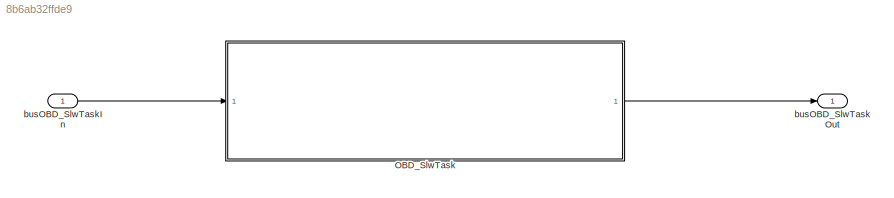
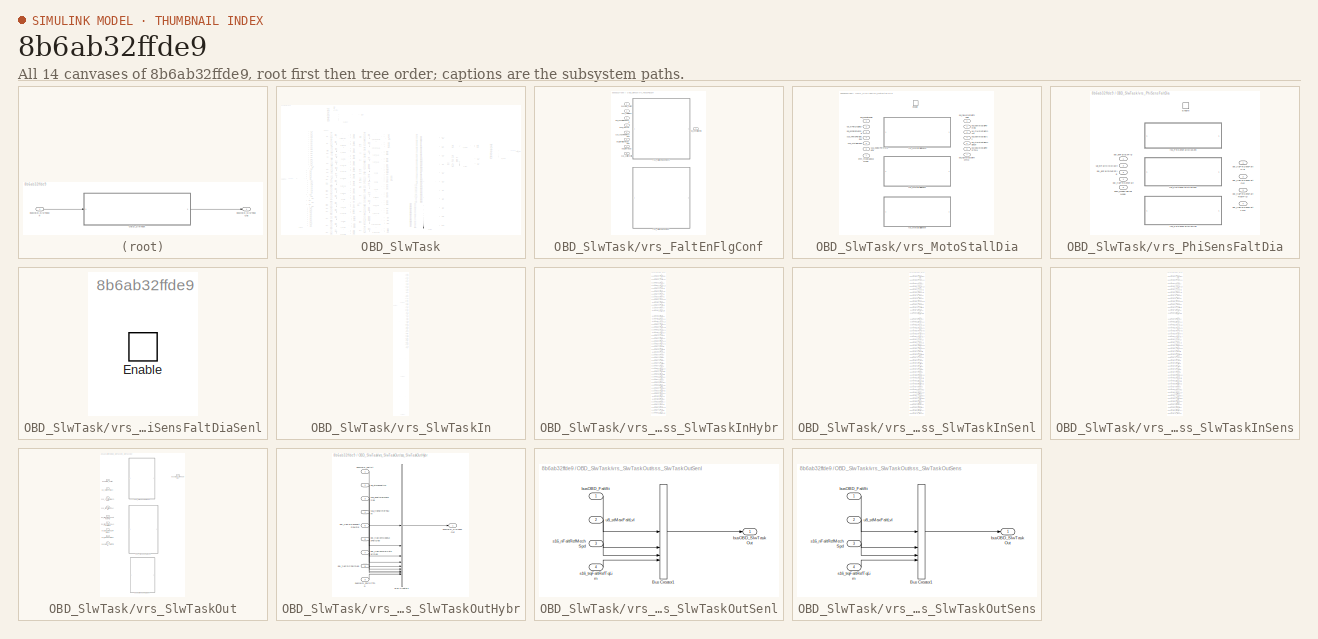
[diagram: thumbnail index - all 14 canvases of the model, root first then tree order]
MODEL slx_8b6ab32ffde9
KIND model
CONFIG AbsTol = auto
CONFIG EnableMultiTasking = on
CONFIG FixedStep = 0.0005
CONFIG MaxStep = auto
CONFIG MinStep = auto
CONFIG RelTol = 1e-3
CONFIG SampleTimeConstraint = Unconstrained
CONFIG SolverName = FixedStepAuto
CONFIG StartTime = 0.0
CONFIG StopTime = 5
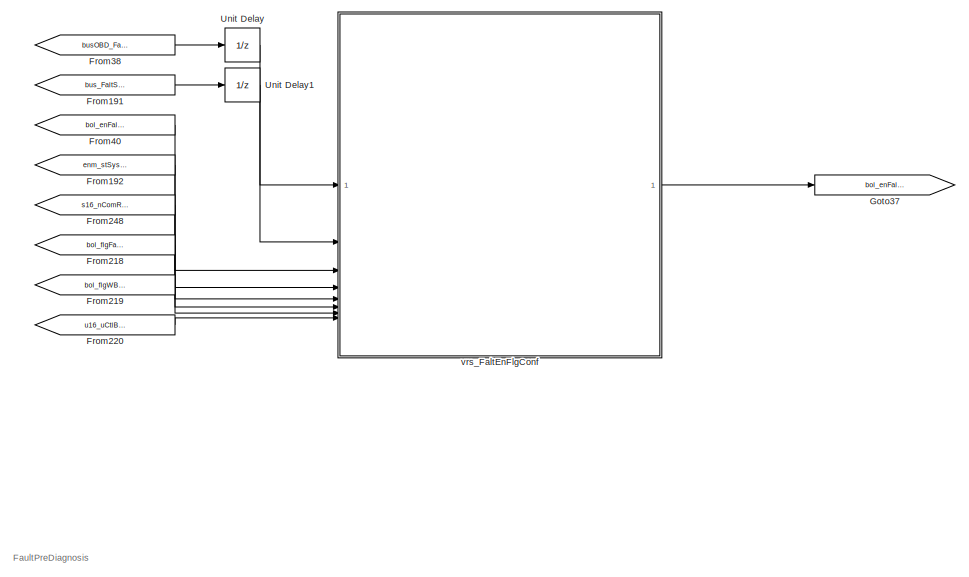
[diagram: OBD_SlwTask - part 1/14, top left region]
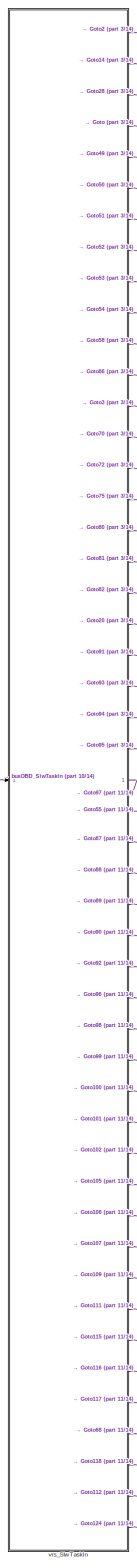
[diagram: OBD_SlwTask - part 2/14, left side, full height]
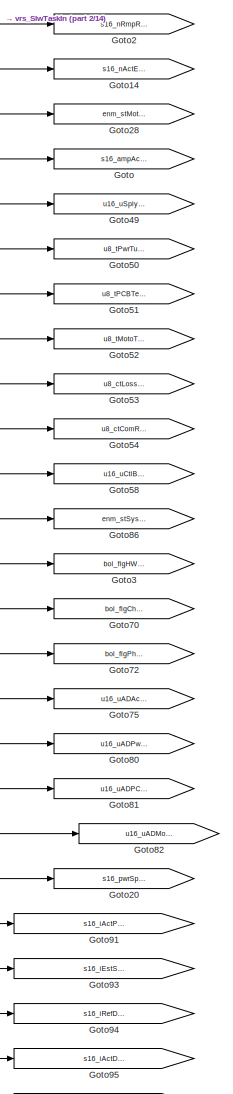
[diagram: OBD_SlwTask - part 3/14, middle left region]
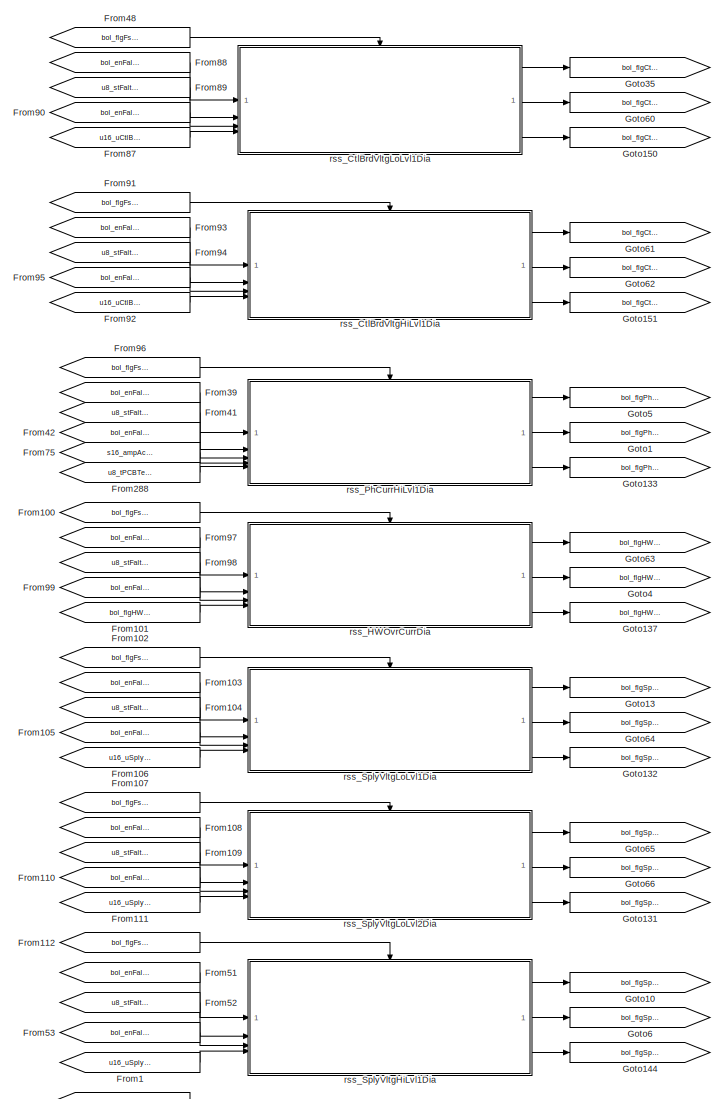
[diagram: OBD_SlwTask - part 4/14, middle left region]
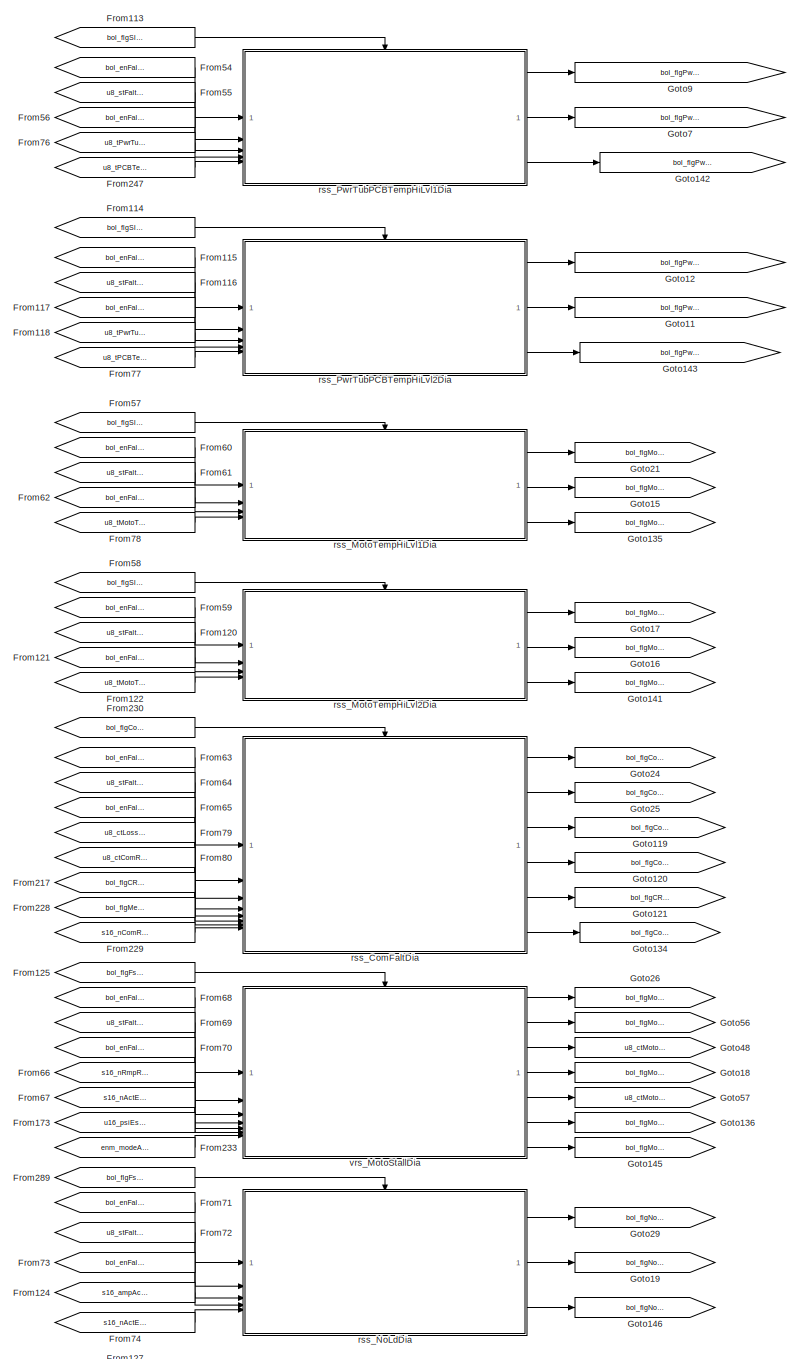
[diagram: OBD_SlwTask - part 5/14, central region]
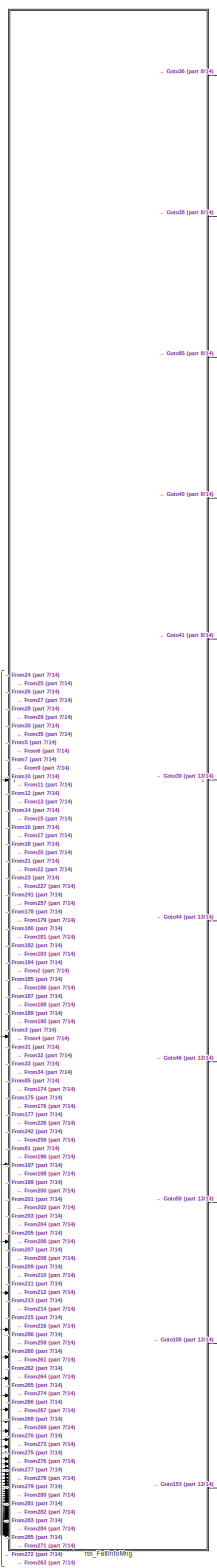
[diagram: OBD_SlwTask - part 6/14, center side, full height]
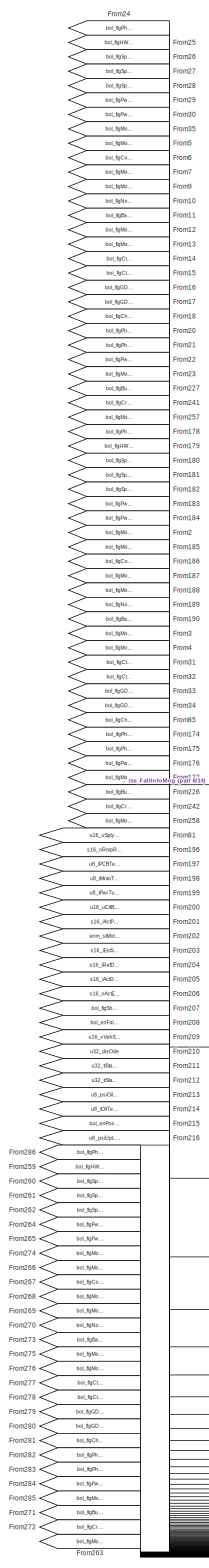
[diagram: OBD_SlwTask - part 7/14, center side, full height]
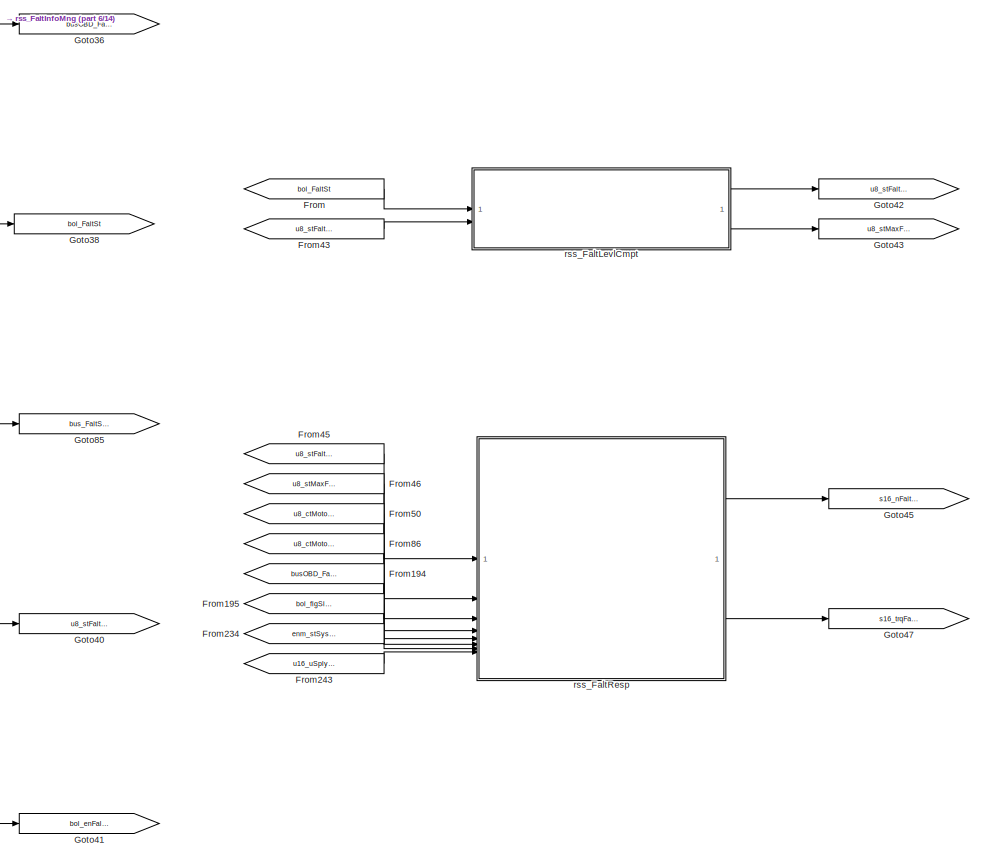
[diagram: OBD_SlwTask - part 8/14, middle right region]
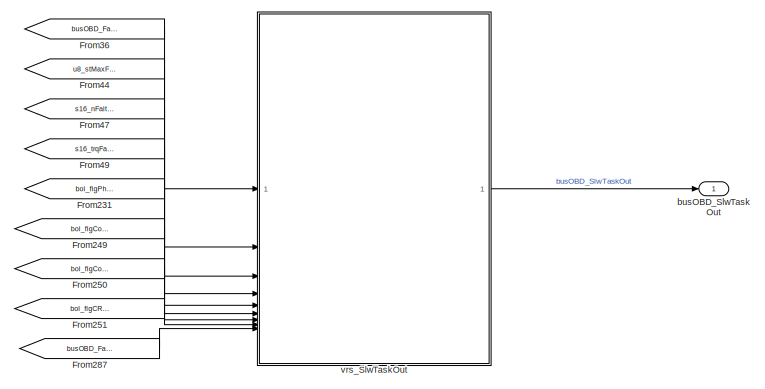
[diagram: OBD_SlwTask - part 9/14, middle right region]
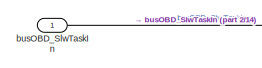
[diagram: OBD_SlwTask - part 10/14, middle left region]
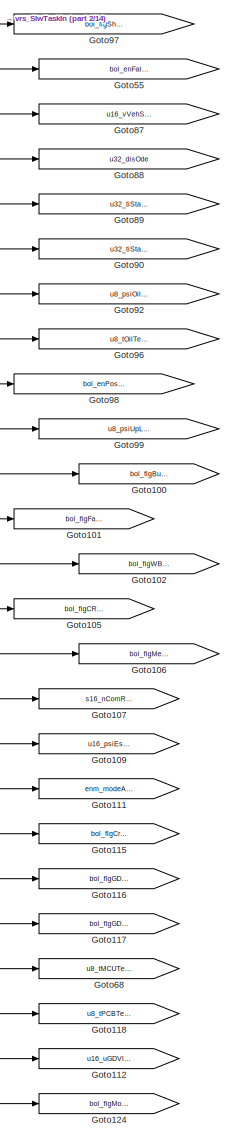
[diagram: OBD_SlwTask - part 11/14, bottom left region]
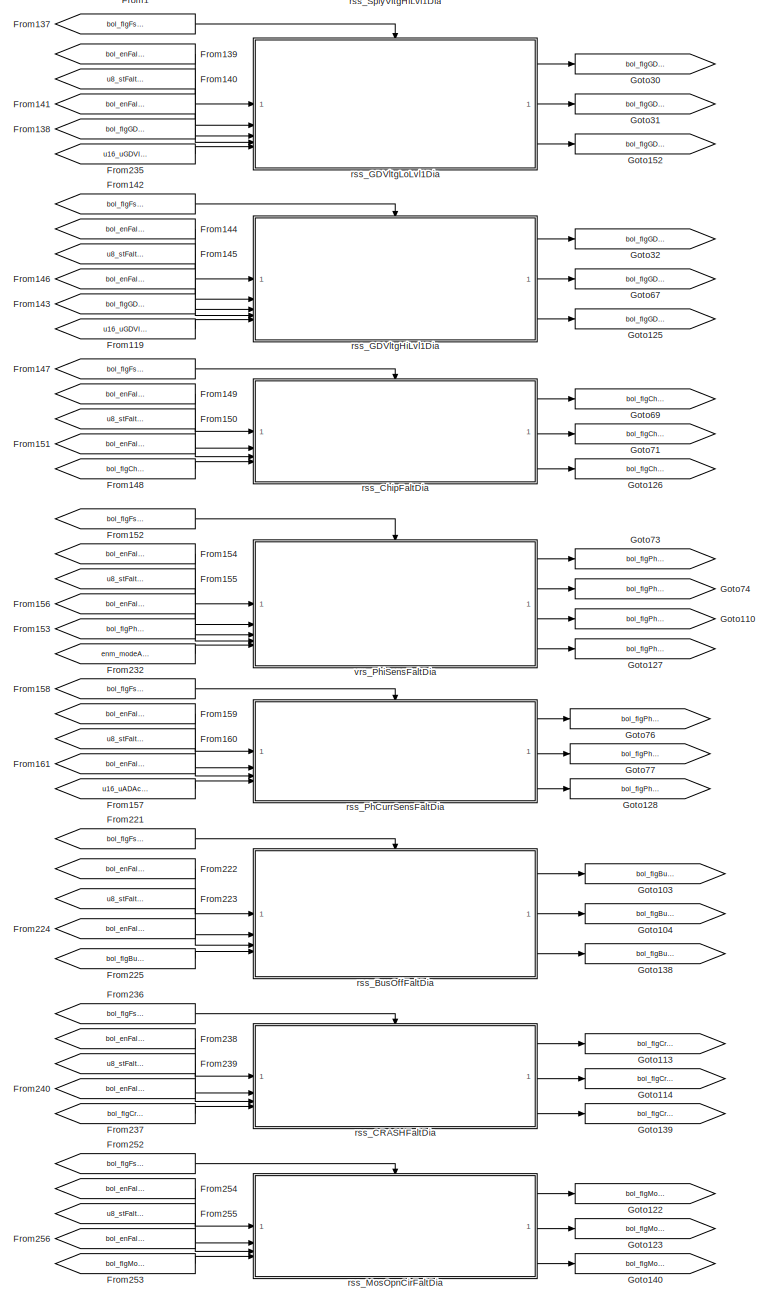
[diagram: OBD_SlwTask - part 12/14, bottom left region]
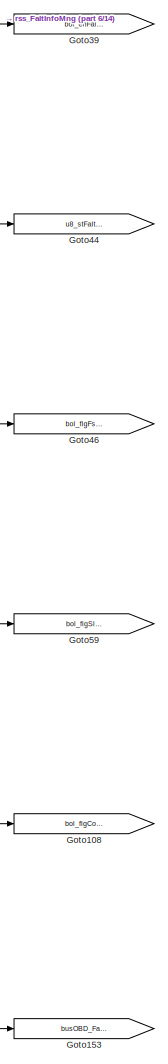
[diagram: OBD_SlwTask - part 13/14, bottom right region]
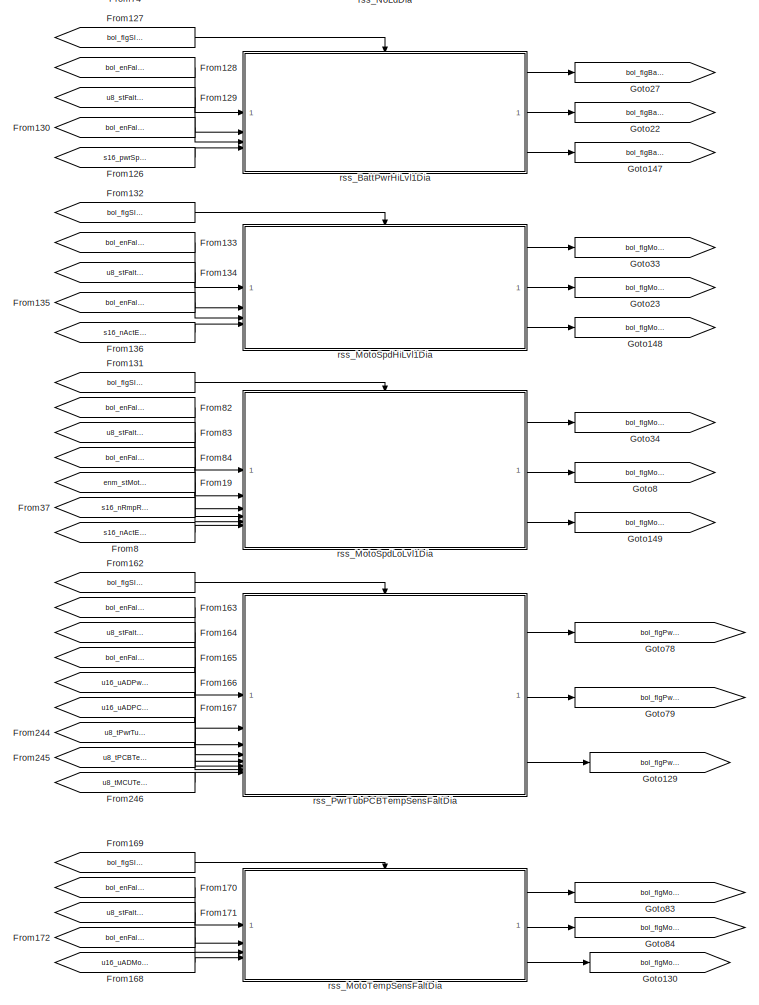
[diagram: OBD_SlwTask - part 14/14, bottom center region]
BLOCK [SubSystem] OBD_SlwTask
  RTWFcnName = OBD_SlwTask
  RTWFcnNameOpts = User specified
  RTWSystemCode = Nonreusable function
  TreatAsAtomicUnit = on
BLOCK [From] OBD_SlwTask/From
  GotoTag = bol_FaltSt
BLOCK [From] OBD_SlwTask/From1
  GotoTag = u16_uSplyVltg
BLOCK [From] OBD_SlwTask/From10
  GotoTag = bol_flgNoLdFlg
BLOCK [From] OBD_SlwTask/From100
  GotoTag = bol_flgFstSdlEn
BLOCK [From] OBD_SlwTask/From101
  GotoTag = bol_flgHWOvrCurrFalt
BLOCK [From] OBD_SlwTask/From102
  GotoTag = bol_flgFstSdlEn
BLOCK [From] OBD_SlwTask/From103
  GotoTag = bol_enFaltEnFlg
BLOCK [From] OBD_SlwTask/From104
  GotoTag = u8_stFaltCyclDiaCt
BLOCK [From] OBD_SlwTask/From105
  GotoTag = bol_enFaltRcvEnFlg
BLOCK [From] OBD_SlwTask/From106
  GotoTag = u16_uSplyVltg
BLOCK [From] OBD_SlwTask/From107
  GotoTag = bol_flgFstSdlEn
BLOCK [From] OBD_SlwTask/From108
  GotoTag = bol_enFaltEnFlg
BLOCK [From] OBD_SlwTask/From109
  GotoTag = u8_stFaltCyclDiaCt
BLOCK [From] OBD_SlwTask/From11
  GotoTag = bol_flgBattPwrHiLvl1Flg
BLOCK [From] OBD_SlwTask/From110
  GotoTag = bol_enFaltRcvEnFlg
BLOCK [From] OBD_SlwTask/From111
  GotoTag = u16_uSplyVltg
BLOCK [From] OBD_SlwTask/From112
  GotoTag = bol_flgFstSdlEn
BLOCK [From] OBD_SlwTask/From113
  GotoTag = bol_flgSlwSdlEn
BLOCK [From] OBD_SlwTask/From114
  GotoTag = bol_flgSlwSdlEn
BLOCK [From] OBD_SlwTask/From115
  GotoTag = bol_enFaltEnFlg
BLOCK [From] OBD_SlwTask/From116
  GotoTag = u8_stFaltCyclDiaCt
BLOCK [From] OBD_SlwTask/From117
  GotoTag = bol_enFaltRcvEnFlg
BLOCK [From] OBD_SlwTask/From118
  GotoTag = u8_tPwrTubTemp
BLOCK [From] OBD_SlwTask/From119
  GotoTag = u16_uGDVltg
BLOCK [From] OBD_SlwTask/From12
  GotoTag = bol_flgMotoSpdHiLvl1Flg
BLOCK [From] OBD_SlwTask/From120
  GotoTag = u8_stFaltCyclDiaCt
BLOCK [From] OBD_SlwTask/From121
  GotoTag = bol_enFaltRcvEnFlg
BLOCK [From] OBD_SlwTask/From122
  GotoTag = u8_tMotoTemp
BLOCK [From] OBD_SlwTask/From124
  GotoTag = s16_ampActPhCurrAmp
BLOCK [From] OBD_SlwTask/From125
  GotoTag = bol_flgFstSdlEn
BLOCK [From] OBD_SlwTask/From126
  GotoTag = s16_pwrSplyElecPwr
BLOCK [From] OBD_SlwTask/From127
  GotoTag = bol_flgSlwSdlEn
BLOCK [From] OBD_SlwTask/From128
  GotoTag = bol_enFaltEnFlg
BLOCK [From] OBD_SlwTask/From129
  GotoTag = u8_stFaltCyclDiaCt
BLOCK [From] OBD_SlwTask/From13
  GotoTag = bol_flgMotoSpdLoLvl1Flg
BLOCK [From] OBD_SlwTask/From130
  GotoTag = bol_enFaltRcvEnFlg
BLOCK [From] OBD_SlwTask/From131
  GotoTag = bol_flgSlwSdlEn
BLOCK [From] OBD_SlwTask/From132
  GotoTag = bol_flgSlwSdlEn
BLOCK [From] OBD_SlwTask/From133
  GotoTag = bol_enFaltEnFlg
BLOCK [From] OBD_SlwTask/From134
  GotoTag = u8_stFaltCyclDiaCt
BLOCK [From] OBD_SlwTask/From135
  GotoTag = bol_enFaltRcvEnFlg
BLOCK [From] OBD_SlwTask/From136
  GotoTag = s16_nActElecSpd
BLOCK [From] OBD_SlwTask/From137
  GotoTag = bol_flgFstSdlEn
BLOCK [From] OBD_SlwTask/From138
  GotoTag = bol_flgGDVltgLoLvl1
BLOCK [From] OBD_SlwTask/From139
  GotoTag = bol_enFaltEnFlg
BLOCK [From] OBD_SlwTask/From14
  GotoTag = bol_flgCtlBrdVltgLoLvl1Flg
BLOCK [From] OBD_SlwTask/From140
  GotoTag = u8_stFaltCyclDiaCt
BLOCK [From] OBD_SlwTask/From141
  GotoTag = bol_enFaltRcvEnFlg
BLOCK [From] OBD_SlwTask/From142
  GotoTag = bol_flgFstSdlEn
BLOCK [From] OBD_SlwTask/From143
  GotoTag = bol_flgGDVltgHiLvl1
BLOCK [From] OBD_SlwTask/From144
  GotoTag = bol_enFaltEnFlg
BLOCK [From] OBD_SlwTask/From145
  GotoTag = u8_stFaltCyclDiaCt
BLOCK [From] OBD_SlwTask/From146
  GotoTag = bol_enFaltRcvEnFlg
BLOCK [From] OBD_SlwTask/From147
  GotoTag = bol_flgFstSdlEn
BLOCK [From] OBD_SlwTask/From148
  GotoTag = bol_flgChipFalt
BLOCK [From] OBD_SlwTask/From149
  GotoTag = bol_enFaltEnFlg
BLOCK [From] OBD_SlwTask/From15
  GotoTag = bol_flgCtlBrdVltgHiLvl1Flg
BLOCK [From] OBD_SlwTask/From150
  GotoTag = u8_stFaltCyclDiaCt
BLOCK [From] OBD_SlwTask/From151
  GotoTag = bol_enFaltRcvEnFlg
BLOCK [From] OBD_SlwTask/From152
  GotoTag = bol_flgFstSdlEn
BLOCK [From] OBD_SlwTask/From153
  GotoTag = bol_flgPhiSensFalt
BLOCK [From] OBD_SlwTask/From154
  GotoTag = bol_enFaltEnFlg
BLOCK [From] OBD_SlwTask/From155
  GotoTag = u8_stFaltCyclDiaCt
BLOCK [From] OBD_SlwTask/From156
  GotoTag = bol_enFaltRcvEnFlg
BLOCK [From] OBD_SlwTask/From157
  GotoTag = u16_uADActPhCurr
BLOCK [From] OBD_SlwTask/From158
  GotoTag = bol_flgFstSdlEn
BLOCK [From] OBD_SlwTask/From159
  GotoTag = bol_enFaltEnFlg
BLOCK [From] OBD_SlwTask/From16
  GotoTag = bol_flgGDVltgLoLvl1Flg
BLOCK [From] OBD_SlwTask/From160
  GotoTag = u8_stFaltCyclDiaCt
BLOCK [From] OBD_SlwTask/From161
  GotoTag = bol_enFaltRcvEnFlg
BLOCK [From] OBD_SlwTask/From162
  GotoTag = bol_flgSlwSdlEn
BLOCK [From] OBD_SlwTask/From163
  GotoTag = bol_enFaltEnFlg
BLOCK [From] OBD_SlwTask/From164
  GotoTag = u8_stFaltCyclDiaCt
BLOCK [From] OBD_SlwTask/From165
  GotoTag = bol_enFaltRcvEnFlg
BLOCK [From] OBD_SlwTask/From166
  GotoTag = u16_uADPwrTubTemp
BLOCK [From] OBD_SlwTask/From167
  GotoTag = u16_uADPCBTemp
BLOCK [From] OBD_SlwTask/From168
  GotoTag = u16_uADMotoTemp
BLOCK [From] OBD_SlwTask/From169
  GotoTag = bol_flgSlwSdlEn
BLOCK [From] OBD_SlwTask/From17
  GotoTag = bol_flgGDVltgHiLvl1Flg
BLOCK [From] OBD_SlwTask/From170
  GotoTag = bol_enFaltEnFlg
BLOCK [From] OBD_SlwTask/From171
  GotoTag = u8_stFaltCyclDiaCt
BLOCK [From] OBD_SlwTask/From172
  GotoTag = bol_enFaltRcvEnFlg
BLOCK [From] OBD_SlwTask/From173
  GotoTag = u16_psiEstPermMagFlx
BLOCK [From] OBD_SlwTask/From174
  GotoTag = bol_flgPhiSensFaltOcc
BLOCK [From] OBD_SlwTask/From175
  GotoTag = bol_flgPhCurrSensFaltOcc
BLOCK [From] OBD_SlwTask/From176
  GotoTag = bol_flgPwrTubPCBTempSensFaltOcc
BLOCK [From] OBD_SlwTask/From177
  GotoTag = bol_flgMotoTempSensFaltOcc
BLOCK [From] OBD_SlwTask/From178
  GotoTag = bol_flgPhCurrHiLvl1Occ
BLOCK [From] OBD_SlwTask/From179
  GotoTag = bol_flgHWOvrCurrOcc
BLOCK [From] OBD_SlwTask/From18
  GotoTag = bol_flgChipFaltFlg
BLOCK [From] OBD_SlwTask/From180
  GotoTag = bol_flgSplyVltgLoLvl1Occ
BLOCK [From] OBD_SlwTask/From181
  GotoTag = bol_flgSplyVltgLoLvl2Occ
BLOCK [From] OBD_SlwTask/From182
  GotoTag = bol_flgSplyVltgHiLvl1Occ
BLOCK [From] OBD_SlwTask/From183
  GotoTag = bol_flgPwrTubPCBTempHiLvl1Occ
BLOCK [From] OBD_SlwTask/From184
  GotoTag = bol_flgPwrTubPCBTempHiLvl2Occ
BLOCK [From] OBD_SlwTask/From185
  GotoTag = bol_flgMotoTempHiLvl2Occ
BLOCK [From] OBD_SlwTask/From186
  GotoTag = bol_flgComFaltOcc
BLOCK [From] OBD_SlwTask/From187
  GotoTag = bol_flgMotoStallOcc
BLOCK [From] OBD_SlwTask/From188
  GotoTag = bol_flgMotoStallOcc
BLOCK [From] OBD_SlwTask/From189
  GotoTag = bol_flgNoLdOcc
BLOCK [From] OBD_SlwTask/From19
  GotoTag = enm_stMotoSt
BLOCK [From] OBD_SlwTask/From190
  GotoTag = bol_flgBattPwrHiLvl1Occ
BLOCK [From] OBD_SlwTask/From191
  GotoTag = bus_FaltStOcc
BLOCK [From] OBD_SlwTask/From192
  GotoTag = enm_stSysSt
BLOCK [From] OBD_SlwTask/From194
  GotoTag = busOBD_FaltSt
BLOCK [From] OBD_SlwTask/From195
  GotoTag = bol_flgSlwSdlEn
BLOCK [From] OBD_SlwTask/From196
  GotoTag = s16_nRmpRefElecSpd
BLOCK [From] OBD_SlwTask/From197
  GotoTag = u8_tPCBTemp
BLOCK [From] OBD_SlwTask/From198
  GotoTag = u8_tMotoTemp
BLOCK [From] OBD_SlwTask/From199
  GotoTag = u8_tPwrTubTemp
BLOCK [From] OBD_SlwTask/From2
  GotoTag = bol_flgMotoTempHiLvl1Occ
BLOCK [From] OBD_SlwTask/From20
  GotoTag = bol_flgPhiSensFaltFlg
BLOCK [From] OBD_SlwTask/From200
  GotoTag = u16_uCtlBrdVltg
BLOCK [From] OBD_SlwTask/From201
  GotoTag = s16_iActPhCurr
BLOCK [From] OBD_SlwTask/From202
  GotoTag = enm_stMotoSt
BLOCK [From] OBD_SlwTask/From203
  GotoTag = s16_iEstSplyCurr
BLOCK [From] OBD_SlwTask/From204
  GotoTag = s16_iRefDaxQaxCurr
BLOCK [From] OBD_SlwTask/From205
  GotoTag = s16_iActDaxQaxCurr
BLOCK [From] OBD_SlwTask/From206
  GotoTag = s16_nActElecSpd
BLOCK [From] OBD_SlwTask/From207
  GotoTag = bol_flgShOffFlg
BLOCK [From] OBD_SlwTask/From208
  GotoTag = bol_enFaltInfoClrUDS14
BLOCK [From] OBD_SlwTask/From209
  GotoTag = u16_vVehSpd
BLOCK [From] OBD_SlwTask/From21
  GotoTag = bol_flgPhCurrSensFaltFlg
BLOCK [From] OBD_SlwTask/From210
  GotoTag = u32_disOde
BLOCK [From] OBD_SlwTask/From211
  GotoTag = u32_tiStamHi
BLOCK [From] OBD_SlwTask/From212
  GotoTag = u32_tiStamLo
BLOCK [From] OBD_SlwTask/From213
  GotoTag = u8_psiOilFlow
BLOCK [From] OBD_SlwTask/From214
  GotoTag = u8_tOilTemp
BLOCK [From] OBD_SlwTask/From215
  GotoTag = bol_enPosSCDCalibEnFlg
BLOCK [From] OBD_SlwTask/From216
  GotoTag = u8_psiUpLimOilFlow
BLOCK [From] OBD_SlwTask/From217
  GotoTag = bol_flgCRCFaltRaw
BLOCK [From] OBD_SlwTask/From218
  GotoTag = bol_flgFaltEnFlgUDS85
BLOCK [From] OBD_SlwTask/From219
  GotoTag = bol_flgWBSSt
BLOCK [From] OBD_SlwTask/From22
  GotoTag = bol_flgPwrTubPCBTempSensFaltFlg
BLOCK [From] OBD_SlwTask/From220
  GotoTag = u16_uCtlBrdVltg
BLOCK [From] OBD_SlwTask/From221
  GotoTag = bol_flgFstSdlEn
BLOCK [From] OBD_SlwTask/From222
  GotoTag = bol_enFaltEnFlg
BLOCK [From] OBD_SlwTask/From223
  GotoTag = u8_stFaltCyclDiaCt
BLOCK [From] OBD_SlwTask/From224
  GotoTag = bol_enFaltRcvEnFlg
BLOCK [From] OBD_SlwTask/From225
  GotoTag = bol_flgBusOffFaltRaw
BLOCK [From] OBD_SlwTask/From226
  GotoTag = bol_flgBusOffFaltOcc
BLOCK [From] OBD_SlwTask/From227
  GotoTag = bol_flgBusOffFaltFlg
BLOCK [From] OBD_SlwTask/From228
  GotoTag = bol_flgMesgLngthFaltRaw
BLOCK [From] OBD_SlwTask/From229
  GotoTag = s16_nComRefMechSpd
BLOCK [From] OBD_SlwTask/From23
  GotoTag = bol_flgMotoTempSensFaltFlg
BLOCK [From] OBD_SlwTask/From230
  GotoTag = bol_flgComSdlEn
BLOCK [From] OBD_SlwTask/From231
  GotoTag = bol_flgPhiSensFaltRawFlg
BLOCK [From] OBD_SlwTask/From232
  GotoTag = enm_modeAgEvalMode
BLOCK [From] OBD_SlwTask/From233
  GotoTag = enm_modeAgEvalMode
BLOCK [From] OBD_SlwTask/From234
  GotoTag = enm_stSysSt
BLOCK [From] OBD_SlwTask/From235
  GotoTag = u16_uGDVltg
BLOCK [From] OBD_SlwTask/From236
  GotoTag = bol_flgFstSdlEn
BLOCK [From] OBD_SlwTask/From237
  GotoTag = bol_flgCrashFalt
BLOCK [From] OBD_SlwTask/From238
  GotoTag = bol_enFaltEnFlg
BLOCK [From] OBD_SlwTask/From239
  GotoTag = u8_stFaltCyclDiaCt
BLOCK [From] OBD_SlwTask/From24
  GotoTag = bol_flgPhCurrHiLvl1Flg
BLOCK [From] OBD_SlwTask/From240
  GotoTag = bol_enFaltRcvEnFlg
BLOCK [From] OBD_SlwTask/From241
  GotoTag = bol_flgCrashFaltFlg
BLOCK [From] OBD_SlwTask/From242
  GotoTag = bol_flgCrashFaltOcc
BLOCK [From] OBD_SlwTask/From243
  GotoTag = u16_uSplyVltg
BLOCK [From] OBD_SlwTask/From244
  GotoTag = u8_tPwrTubTemp
BLOCK [From] OBD_SlwTask/From245
  GotoTag = u8_tPCBTemp
BLOCK [From] OBD_SlwTask/From246
  GotoTag = u8_tMCUTemp
BLOCK [From] OBD_SlwTask/From247
  GotoTag = u8_tPCBTempSubs
BLOCK [From] OBD_SlwTask/From248
  GotoTag = s16_nComRefMechSpd
BLOCK [From] OBD_SlwTask/From249
  GotoTag = bol_flgComNodeLosFaltDeb
BLOCK [From] OBD_SlwTask/From25
  GotoTag = bol_flgHWOvrCurrFlg
BLOCK [From] OBD_SlwTask/From250
  GotoTag = bol_flgComRolCntFaltDeb
BLOCK [From] OBD_SlwTask/From251
  GotoTag = bol_flgCRCFaltDeb
BLOCK [From] OBD_SlwTask/From252
  GotoTag = bol_flgFstSdlEn
BLOCK [From] OBD_SlwTask/From253
  GotoTag = bol_flgMosOpnCirFalt
BLOCK [From] OBD_SlwTask/From254
  GotoTag = bol_enFaltEnFlg
BLOCK [From] OBD_SlwTask/From255
  GotoTag = u8_stFaltCyclDiaCt
BLOCK [From] OBD_SlwTask/From256
  GotoTag = bol_enFaltRcvEnFlg
BLOCK [From] OBD_SlwTask/From257
  GotoTag = bol_flgMosOpnCirFaltFlg
BLOCK [From] OBD_SlwTask/From258
  GotoTag = bol_flgMosOpnCirFaltOcc
BLOCK [From] OBD_SlwTask/From259
  GotoTag = bol_flgHWOvrCurrTmp
BLOCK [From] OBD_SlwTask/From26
  GotoTag = bol_flgSplyVltgLoLvl1Flg
BLOCK [From] OBD_SlwTask/From260
  GotoTag = bol_flgSplyVltgLoLvl1Tmp
BLOCK [From] OBD_SlwTask/From261
  GotoTag = bol_flgSplyVltgLoLvl2Tmp
BLOCK [From] OBD_SlwTask/From262
  GotoTag = bol_flgSplyVltgHiLvl1Tmp
BLOCK [From] OBD_SlwTask/From263
  GotoTag = bol_flgMosOpnCirFaltTmp
BLOCK [From] OBD_SlwTask/From264
  GotoTag = bol_flgPwrTubPCBTempHiLvl1Tmp
BLOCK [From] OBD_SlwTask/From265
  GotoTag = bol_flgPwrTubPCBTempHiLvl2Tmp
BLOCK [From] OBD_SlwTask/From266
  GotoTag = bol_flgMotoTempHiLvl2Tmp
BLOCK [From] OBD_SlwTask/From267
  GotoTag = bol_flgComFaltTmp
BLOCK [From] OBD_SlwTask/From268
  GotoTag = bol_flgMotoStallPermTmp
BLOCK [From] OBD_SlwTask/From269
  GotoTag = bol_flgMotoStallTmpTmp
BLOCK [From] OBD_SlwTask/From27
  GotoTag = bol_flgSplyVltgLoLvl2Flg
BLOCK [From] OBD_SlwTask/From270
  GotoTag = bol_flgNoLdTmp
BLOCK [From] OBD_SlwTask/From271
  GotoTag = bol_flgBusOffFaltTmp
BLOCK [From] OBD_SlwTask/From272
  GotoTag = bol_flgCrashFaltTmp
BLOCK [From] OBD_SlwTask/From273
  GotoTag = bol_flgBattPwrHiLvl1Tmp
BLOCK [From] OBD_SlwTask/From274
  GotoTag = bol_flgMotoTempHiLvl1Tmp
BLOCK [From] OBD_SlwTask/From275
  GotoTag = bol_flgMotoSpdHiLvl1Tmp
BLOCK [From] OBD_SlwTask/From276
  GotoTag = bol_flgMotoSpdLoLvl1Tmp
BLOCK [From] OBD_SlwTask/From277
  GotoTag = bol_flgCtlBrdVltgLoLvl1Tmp
BLOCK [From] OBD_SlwTask/From278
  GotoTag = bol_flgCtlBrdVltgHiLvl1Tmp
BLOCK [From] OBD_SlwTask/From279
  GotoTag = bol_flgGDVltgLoLvl1Tmp
BLOCK [From] OBD_SlwTask/From28
  GotoTag = bol_flgSplyVltgHiLvl1Flg
BLOCK [From] OBD_SlwTask/From280
  GotoTag = bol_flgGDVltgHiLvl1Tmp
BLOCK [From] OBD_SlwTask/From281
  GotoTag = bol_flgChipFaltTmp
BLOCK [From] OBD_SlwTask/From282
  GotoTag = bol_flgPhiSensFaltTmp
BLOCK [From] OBD_SlwTask/From283
  GotoTag = bol_flgPhCurrSensFaltTmp
BLOCK [From] OBD_SlwTask/From284
  GotoTag = bol_flgPwrTubPCBTempSensFaltTmp
BLOCK [From] OBD_SlwTask/From285
  GotoTag = bol_flgMotoTempSensFaltTmp
BLOCK [From] OBD_SlwTask/From286
  GotoTag = bol_flgPhCurrHiLvl1Tmp
BLOCK [From] OBD_SlwTask/From287
  GotoTag = busOBD_FaltStTmp
BLOCK [From] OBD_SlwTask/From288
  GotoTag = u8_tPCBTempSubs
BLOCK [From] OBD_SlwTask/From289
  GotoTag = bol_flgFstSdlEn
BLOCK [From] OBD_SlwTask/From29
  GotoTag = bol_flgPwrTubPCBTempHiLvl1Flg
BLOCK [From] OBD_SlwTask/From3
  GotoTag = bol_flgMotoSpdHiLvl1Occ
BLOCK [From] OBD_SlwTask/From30
  GotoTag = bol_flgPwrTubPCBTempHiLvl2Flg
BLOCK [From] OBD_SlwTask/From31
  GotoTag = bol_flgCtlBrdVltgLoLvl1Occ
BLOCK [From] OBD_SlwTask/From32
  GotoTag = bol_flgCtlBrdVltgHiLvl1Occ
BLOCK [From] OBD_SlwTask/From33
  GotoTag = bol_flgGDVltgLoLvl1Occ
BLOCK [From] OBD_SlwTask/From34
  GotoTag = bol_flgGDVltgHiLvl1Occ
BLOCK [From] OBD_SlwTask/From35
  GotoTag = bol_flgMotoTempHiLvl1Flg
BLOCK [From] OBD_SlwTask/From36
  GotoTag = busOBD_FaltSt
BLOCK [From] OBD_SlwTask/From37
  GotoTag = s16_nRmpRefElecSpd
BLOCK [From] OBD_SlwTask/From38
  GotoTag = busOBD_FaltSt
BLOCK [From] OBD_SlwTask/From39
  GotoTag = bol_enFaltEnFlg
BLOCK [From] OBD_SlwTask/From4
  GotoTag = bol_flgMotoSpdLoLvl1Occ
BLOCK [From] OBD_SlwTask/From40
  GotoTag = bol_enFaltMngEnFlg
BLOCK [From] OBD_SlwTask/From41
  GotoTag = u8_stFaltCyclDiaCt
BLOCK [From] OBD_SlwTask/From42
  GotoTag = bol_enFaltRcvEnFlg
BLOCK [From] OBD_SlwTask/From43
  GotoTag = u8_stFaltLvlCt
BLOCK [From] OBD_SlwTask/From44
  GotoTag = u8_stMaxFaltLvl
BLOCK [From] OBD_SlwTask/From45
  GotoTag = u8_stFaltLvl
BLOCK [From] OBD_SlwTask/From46
  GotoTag = u8_stMaxFaltLvl
BLOCK [From] OBD_SlwTask/From47
  GotoTag = s16_nFaltRefMechSpd
BLOCK [From] OBD_SlwTask/From48
  GotoTag = bol_flgFstSdlEn
BLOCK [From] OBD_SlwTask/From49
  GotoTag = s16_trqFaltRefTqLim
BLOCK [From] OBD_SlwTask/From5
  GotoTag = bol_flgMotoTempHiLvl2Flg
BLOCK [From] OBD_SlwTask/From50
  GotoTag = u8_ctMotoStallCyclAcc
BLOCK [From] OBD_SlwTask/From51
  GotoTag = bol_enFaltEnFlg
BLOCK [From] OBD_SlwTask/From52
  GotoTag = u8_stFaltCyclDiaCt
BLOCK [From] OBD_SlwTask/From53
  GotoTag = bol_enFaltRcvEnFlg
BLOCK [From] OBD_SlwTask/From54
  GotoTag = bol_enFaltEnFlg
BLOCK [From] OBD_SlwTask/From55
  GotoTag = u8_stFaltCyclDiaCt
BLOCK [From] OBD_SlwTask/From56
  GotoTag = bol_enFaltRcvEnFlg
BLOCK [From] OBD_SlwTask/From57
  GotoTag = bol_flgSlwSdlEn
BLOCK [From] OBD_SlwTask/From58
  GotoTag = bol_flgSlwSdlEn
BLOCK [From] OBD_SlwTask/From59
  GotoTag = bol_enFaltEnFlg
BLOCK [From] OBD_SlwTask/From6
  GotoTag = bol_flgComFaltFlg
BLOCK [From] OBD_SlwTask/From60
  GotoTag = bol_enFaltEnFlg
BLOCK [From] OBD_SlwTask/From61
  GotoTag = u8_stFaltCyclDiaCt
BLOCK [From] OBD_SlwTask/From62
  GotoTag = bol_enFaltRcvEnFlg
BLOCK [From] OBD_SlwTask/From63
  GotoTag = bol_enFaltEnFlg
BLOCK [From] OBD_SlwTask/From64
  GotoTag = u8_stFaltCyclDiaCt
BLOCK [From] OBD_SlwTask/From65
  GotoTag = bol_enFaltRcvEnFlg
BLOCK [From] OBD_SlwTask/From66
  GotoTag = s16_nRmpRefElecSpd
BLOCK [From] OBD_SlwTask/From67
  GotoTag = s16_nActElecSpd
BLOCK [From] OBD_SlwTask/From68
  GotoTag = bol_enFaltEnFlg
BLOCK [From] OBD_SlwTask/From69
  GotoTag = u8_stFaltCyclDiaCt
BLOCK [From] OBD_SlwTask/From7
  GotoTag = bol_flgMotoStallPermFlg
BLOCK [From] OBD_SlwTask/From70
  GotoTag = bol_enFaltRcvEnFlg
BLOCK [From] OBD_SlwTask/From71
  GotoTag = bol_enFaltEnFlg
BLOCK [From] OBD_SlwTask/From72
  GotoTag = u8_stFaltCyclDiaCt
BLOCK [From] OBD_SlwTask/From73
  GotoTag = bol_enFaltRcvEnFlg
BLOCK [From] OBD_SlwTask/From74
  GotoTag = s16_nActElecSpd
BLOCK [From] OBD_SlwTask/From75
  GotoTag = s16_ampActPhCurrAmp
BLOCK [From] OBD_SlwTask/From76
  GotoTag = u8_tPwrTubTemp
BLOCK [From] OBD_SlwTask/From77
  GotoTag = u8_tPCBTempSubs
BLOCK [From] OBD_SlwTask/From78
  GotoTag = u8_tMotoTemp
BLOCK [From] OBD_SlwTask/From79
  GotoTag = u8_ctLossNoData
BLOCK [From] OBD_SlwTask/From8
  GotoTag = s16_nActElecSpd
BLOCK [From] OBD_SlwTask/From80
  GotoTag = u8_ctComRolCnt
BLOCK [From] OBD_SlwTask/From81
  GotoTag = u16_uSplyVltg
BLOCK [From] OBD_SlwTask/From82
  GotoTag = bol_enFaltEnFlg
BLOCK [From] OBD_SlwTask/From83
  GotoTag = u8_stFaltCyclDiaCt
BLOCK [From] OBD_SlwTask/From84
  GotoTag = bol_enFaltRcvEnFlg
BLOCK [From] OBD_SlwTask/From85
  GotoTag = bol_flgChipFaltOcc
BLOCK [From] OBD_SlwTask/From86
  GotoTag = u8_ctMotoStallCyclDiaCnt
BLOCK [From] OBD_SlwTask/From87
  GotoTag = u16_uCtlBrdVltg
BLOCK [From] OBD_SlwTask/From88
  GotoTag = bol_enFaltEnFlg
BLOCK [From] OBD_SlwTask/From89
  GotoTag = u8_stFaltCyclDiaCt
BLOCK [From] OBD_SlwTask/From9
  GotoTag = bol_flgMotoStallTmpFlg
BLOCK [From] OBD_SlwTask/From90
  GotoTag = bol_enFaltRcvEnFlg
BLOCK [From] OBD_SlwTask/From91
  GotoTag = bol_flgFstSdlEn
BLOCK [From] OBD_SlwTask/From92
  GotoTag = u16_uCtlBrdVltg
BLOCK [From] OBD_SlwTask/From93
  GotoTag = bol_enFaltEnFlg
BLOCK [From] OBD_SlwTask/From94
  GotoTag = u8_stFaltCyclDiaCt
BLOCK [From] OBD_SlwTask/From95
  GotoTag = bol_enFaltRcvEnFlg
BLOCK [From] OBD_SlwTask/From96
  GotoTag = bol_flgFstSdlEn
BLOCK [From] OBD_SlwTask/From97
  GotoTag = bol_enFaltEnFlg
BLOCK [From] OBD_SlwTask/From98
  GotoTag = u8_stFaltCyclDiaCt
BLOCK [From] OBD_SlwTask/From99
  GotoTag = bol_enFaltRcvEnFlg
BLOCK [Goto] OBD_SlwTask/Goto
  GotoTag = s16_ampActPhCurrAmp
BLOCK [Goto] OBD_SlwTask/Goto1
  GotoTag = bol_flgPhCurrHiLvl1Occ
BLOCK [Goto] OBD_SlwTask/Goto10
  GotoTag = bol_flgSplyVltgHiLvl1Flg
BLOCK [Goto] OBD_SlwTask/Goto100
  GotoTag = bol_flgBusOffFaltRaw
BLOCK [Goto] OBD_SlwTask/Goto101
  GotoTag = bol_flgFaltEnFlgUDS85
BLOCK [Goto] OBD_SlwTask/Goto102
  GotoTag = bol_flgWBSSt
BLOCK [Goto] OBD_SlwTask/Goto103
  GotoTag = bol_flgBusOffFaltFlg
BLOCK [Goto] OBD_SlwTask/Goto104
  GotoTag = bol_flgBusOffFaltOcc
BLOCK [Goto] OBD_SlwTask/Goto105
  GotoTag = bol_flgCRCFaltRaw
BLOCK [Goto] OBD_SlwTask/Goto106
  GotoTag = bol_flgMesgLngthFaltRaw
BLOCK [Goto] OBD_SlwTask/Goto107
  GotoTag = s16_nComRefMechSpd
BLOCK [Goto] OBD_SlwTask/Goto108
  GotoTag = bol_flgComSdlEn
BLOCK [Goto] OBD_SlwTask/Goto109
  GotoTag = u16_psiEstPermMagFlx
BLOCK [Goto] OBD_SlwTask/Goto11
  GotoTag = bol_flgPwrTubPCBTempHiLvl2Occ
BLOCK [Goto] OBD_SlwTask/Goto110
  GotoTag = bol_flgPhiSensFaltRawFlg
BLOCK [Goto] OBD_SlwTask/Goto111
  GotoTag = enm_modeAgEvalMode
BLOCK [Goto] OBD_SlwTask/Goto112
  GotoTag = u16_uGDVltg
BLOCK [Goto] OBD_SlwTask/Goto113
  GotoTag = bol_flgCrashFaltFlg
BLOCK [Goto] OBD_SlwTask/Goto114
  GotoTag = bol_flgCrashFaltOcc
BLOCK [Goto] OBD_SlwTask/Goto115
  GotoTag = bol_flgCrashFalt
BLOCK [Goto] OBD_SlwTask/Goto116
  GotoTag = bol_flgGDVltgHiLvl1
BLOCK [Goto] OBD_SlwTask/Goto117
  GotoTag = bol_flgGDVltgLoLvl1
BLOCK [Goto] OBD_SlwTask/Goto118
  GotoTag = u8_tPCBTempSubs
BLOCK [Goto] OBD_SlwTask/Goto119
  GotoTag = bol_flgComNodeLosFaltDeb
BLOCK [Goto] OBD_SlwTask/Goto12
  GotoTag = bol_flgPwrTubPCBTempHiLvl2Flg
BLOCK [Goto] OBD_SlwTask/Goto120
  GotoTag = bol_flgComRolCntFaltDeb
BLOCK [Goto] OBD_SlwTask/Goto121
  GotoTag = bol_flgCRCFaltDeb
BLOCK [Goto] OBD_SlwTask/Goto122
  GotoTag = bol_flgMosOpnCirFaltFlg
BLOCK [Goto] OBD_SlwTask/Goto123
  GotoTag = bol_flgMosOpnCirFaltOcc
BLOCK [Goto] OBD_SlwTask/Goto124
  GotoTag = bol_flgMosOpnCirFalt
BLOCK [Goto] OBD_SlwTask/Goto125
  GotoTag = bol_flgGDVltgHiLvl1Tmp
BLOCK [Goto] OBD_SlwTask/Goto126
  GotoTag = bol_flgChipFaltTmp
BLOCK [Goto] OBD_SlwTask/Goto127
  GotoTag = bol_flgPhiSensFaltTmp
BLOCK [Goto] OBD_SlwTask/Goto128
  GotoTag = bol_flgPhCurrSensFaltTmp
BLOCK [Goto] OBD_SlwTask/Goto129
  GotoTag = bol_flgPwrTubPCBTempSensFaltTmp
BLOCK [Goto] OBD_SlwTask/Goto13
  GotoTag = bol_flgSplyVltgLoLvl1Flg
BLOCK [Goto] OBD_SlwTask/Goto130
  GotoTag = bol_flgMotoTempSensFaltTmp
BLOCK [Goto] OBD_SlwTask/Goto131
  GotoTag = bol_flgSplyVltgLoLvl2Tmp
BLOCK [Goto] OBD_SlwTask/Goto132
  GotoTag = bol_flgSplyVltgLoLvl1Tmp
BLOCK [Goto] OBD_SlwTask/Goto133
  GotoTag = bol_flgPhCurrHiLvl1Tmp
BLOCK [Goto] OBD_SlwTask/Goto134
  GotoTag = bol_flgComFaltTmp
BLOCK [Goto] OBD_SlwTask/Goto135
  GotoTag = bol_flgMotoTempHiLvl1Tmp
BLOCK [Goto] OBD_SlwTask/Goto136
  GotoTag = bol_flgMotoStallPermTmp
BLOCK [Goto] OBD_SlwTask/Goto137
  GotoTag = bol_flgHWOvrCurrTmp
BLOCK [Goto] OBD_SlwTask/Goto138
  GotoTag = bol_flgBusOffFaltTmp
BLOCK [Goto] OBD_SlwTask/Goto139
  GotoTag = bol_flgCrashFaltTmp
BLOCK [Goto] OBD_SlwTask/Goto14
  GotoTag = s16_nActElecSpd
BLOCK [Goto] OBD_SlwTask/Goto140
  GotoTag = bol_flgMosOpnCirFaltTmp
BLOCK [Goto] OBD_SlwTask/Goto141
  GotoTag = bol_flgMotoTempHiLvl2Tmp
BLOCK [Goto] OBD_SlwTask/Goto142
  GotoTag = bol_flgPwrTubPCBTempHiLvl1Tmp
BLOCK [Goto] OBD_SlwTask/Goto143
  GotoTag = bol_flgPwrTubPCBTempHiLvl2Tmp
BLOCK [Goto] OBD_SlwTask/Goto144
  GotoTag = bol_flgSplyVltgHiLvl1Tmp
BLOCK [Goto] OBD_SlwTask/Goto145
  GotoTag = bol_flgMotoStallTmpTmp
BLOCK [Goto] OBD_SlwTask/Goto146
  GotoTag = bol_flgNoLdTmp
BLOCK [Goto] OBD_SlwTask/Goto147
  GotoTag = bol_flgBattPwrHiLvl1Tmp
BLOCK [Goto] OBD_SlwTask/Goto148
  GotoTag = bol_flgMotoSpdHiLvl1Tmp
BLOCK [Goto] OBD_SlwTask/Goto149
  GotoTag = bol_flgMotoSpdLoLvl1Tmp
BLOCK [Goto] OBD_SlwTask/Goto15
  GotoTag = bol_flgMotoTempHiLvl1Occ
BLOCK [Goto] OBD_SlwTask/Goto150
  GotoTag = bol_flgCtlBrdVltgLoLvl1Tmp
BLOCK [Goto] OBD_SlwTask/Goto151
  GotoTag = bol_flgCtlBrdVltgHiLvl1Tmp
BLOCK [Goto] OBD_SlwTask/Goto152
  GotoTag = bol_flgGDVltgLoLvl1Tmp
BLOCK [Goto] OBD_SlwTask/Goto153
  GotoTag = busOBD_FaltStTmp
BLOCK [Goto] OBD_SlwTask/Goto16
  GotoTag = bol_flgMotoTempHiLvl2Occ
BLOCK [Goto] OBD_SlwTask/Goto17
  GotoTag = bol_flgMotoTempHiLvl2Flg
BLOCK [Goto] OBD_SlwTask/Goto18
  GotoTag = bol_flgMotoStallOcc
BLOCK [Goto] OBD_SlwTask/Goto19
  GotoTag = bol_flgNoLdOcc
BLOCK [Goto] OBD_SlwTask/Goto2
  GotoTag = s16_nRmpRefElecSpd
BLOCK [Goto] OBD_SlwTask/Goto20
  GotoTag = s16_pwrSplyElecPwr
BLOCK [Goto] OBD_SlwTask/Goto21
  GotoTag = bol_flgMotoTempHiLvl1Flg
BLOCK [Goto] OBD_SlwTask/Goto22
  GotoTag = bol_flgBattPwrHiLvl1Occ
BLOCK [Goto] OBD_SlwTask/Goto23
  GotoTag = bol_flgMotoSpdHiLvl1Occ
BLOCK [Goto] OBD_SlwTask/Goto24
  GotoTag = bol_flgComFaltFlg
BLOCK [Goto] OBD_SlwTask/Goto25
  GotoTag = bol_flgComFaltOcc
BLOCK [Goto] OBD_SlwTask/Goto26
  GotoTag = bol_flgMotoStallTmpFlg
BLOCK [Goto] OBD_SlwTask/Goto27
  GotoTag = bol_flgBattPwrHiLvl1Flg
BLOCK [Goto] OBD_SlwTask/Goto28
  GotoTag = enm_stMotoSt
BLOCK [Goto] OBD_SlwTask/Goto29
  GotoTag = bol_flgNoLdFlg
BLOCK [Goto] OBD_SlwTask/Goto3
  GotoTag = bol_flgHWOvrCurrFalt
BLOCK [Goto] OBD_SlwTask/Goto30
  GotoTag = bol_flgGDVltgLoLvl1Flg
BLOCK [Goto] OBD_SlwTask/Goto31
  GotoTag = bol_flgGDVltgLoLvl1Occ
BLOCK [Goto] OBD_SlwTask/Goto32
  GotoTag = bol_flgGDVltgHiLvl1Flg
BLOCK [Goto] OBD_SlwTask/Goto33
  GotoTag = bol_flgMotoSpdHiLvl1Flg
BLOCK [Goto] OBD_SlwTask/Goto34
  GotoTag = bol_flgMotoSpdLoLvl1Flg
BLOCK [Goto] OBD_SlwTask/Goto35
  GotoTag = bol_flgCtlBrdVltgLoLvl1Flg
BLOCK [Goto] OBD_SlwTask/Goto36
  GotoTag = busOBD_FaltSt
BLOCK [Goto] OBD_SlwTask/Goto37
  GotoTag = bol_enFaltEnFlg
BLOCK [Goto] OBD_SlwTask/Goto38
  GotoTag = bol_FaltSt
BLOCK [Goto] OBD_SlwTask/Goto39
  GotoTag = bol_enFaltMngEnFlg
BLOCK [Goto] OBD_SlwTask/Goto4
  GotoTag = bol_flgHWOvrCurrOcc
BLOCK [Goto] OBD_SlwTask/Goto40
  GotoTag = u8_stFaltCyclDiaCt
BLOCK [Goto] OBD_SlwTask/Goto41
  GotoTag = bol_enFaltRcvEnFlg
BLOCK [Goto] OBD_SlwTask/Goto42
  GotoTag = u8_stFaltLvl
BLOCK [Goto] OBD_SlwTask/Goto43
  GotoTag = u8_stMaxFaltLvl
BLOCK [Goto] OBD_SlwTask/Goto44
  GotoTag = u8_stFaltLvlCt
BLOCK [Goto] OBD_SlwTask/Goto45
  GotoTag = s16_nFaltRefMechSpd
BLOCK [Goto] OBD_SlwTask/Goto46
  GotoTag = bol_flgFstSdlEn
BLOCK [Goto] OBD_SlwTask/Goto47
  GotoTag = s16_trqFaltRefTqLim
BLOCK [Goto] OBD_SlwTask/Goto48
  GotoTag = u8_ctMotoStallCyclAcc
BLOCK [Goto] OBD_SlwTask/Goto49
  GotoTag = u16_uSplyVltg
BLOCK [Goto] OBD_SlwTask/Goto5
  GotoTag = bol_flgPhCurrHiLvl1Flg
BLOCK [Goto] OBD_SlwTask/Goto50
  GotoTag = u8_tPwrTubTemp
BLOCK [Goto] OBD_SlwTask/Goto51
  GotoTag = u8_tPCBTemp
BLOCK [Goto] OBD_SlwTask/Goto52
  GotoTag = u8_tMotoTemp
BLOCK [Goto] OBD_SlwTask/Goto53
  GotoTag = u8_ctLossNoData
BLOCK [Goto] OBD_SlwTask/Goto54
  GotoTag = u8_ctComRolCnt
BLOCK [Goto] OBD_SlwTask/Goto55
  GotoTag = bol_enFaltInfoClrUDS14
BLOCK [Goto] OBD_SlwTask/Goto56
  GotoTag = bol_flgMotoStallPermFlg
BLOCK [Goto] OBD_SlwTask/Goto57
  GotoTag = u8_ctMotoStallCyclDiaCnt
BLOCK [Goto] OBD_SlwTask/Goto58
  GotoTag = u16_uCtlBrdVltg
BLOCK [Goto] OBD_SlwTask/Goto59
  GotoTag = bol_flgSlwSdlEn
BLOCK [Goto] OBD_SlwTask/Goto6
  GotoTag = bol_flgSplyVltgHiLvl1Occ
BLOCK [Goto] OBD_SlwTask/Goto60
  GotoTag = bol_flgCtlBrdVltgLoLvl1Occ
BLOCK [Goto] OBD_SlwTask/Goto61
  GotoTag = bol_flgCtlBrdVltgHiLvl1Flg
BLOCK [Goto] OBD_SlwTask/Goto62
  GotoTag = bol_flgCtlBrdVltgHiLvl1Occ
BLOCK [Goto] OBD_SlwTask/Goto63
  GotoTag = bol_flgHWOvrCurrFlg
BLOCK [Goto] OBD_SlwTask/Goto64
  GotoTag = bol_flgSplyVltgLoLvl1Occ
BLOCK [Goto] OBD_SlwTask/Goto65
  GotoTag = bol_flgSplyVltgLoLvl2Flg
BLOCK [Goto] OBD_SlwTask/Goto66
  GotoTag = bol_flgSplyVltgLoLvl2Occ
BLOCK [Goto] OBD_SlwTask/Goto67
  GotoTag = bol_flgGDVltgHiLvl1Occ
BLOCK [Goto] OBD_SlwTask/Goto68
  GotoTag = u8_tMCUTemp
BLOCK [Goto] OBD_SlwTask/Goto69
  GotoTag = bol_flgChipFaltFlg
BLOCK [Goto] OBD_SlwTask/Goto7
  GotoTag = bol_flgPwrTubPCBTempHiLvl1Occ
BLOCK [Goto] OBD_SlwTask/Goto70
  GotoTag = bol_flgChipFalt
BLOCK [Goto] OBD_SlwTask/Goto71
  GotoTag = bol_flgChipFaltOcc
BLOCK [Goto] OBD_SlwTask/Goto72
  GotoTag = bol_flgPhiSensFalt
BLOCK [Goto] OBD_SlwTask/Goto73
  GotoTag = bol_flgPhiSensFaltFlg
BLOCK [Goto] OBD_SlwTask/Goto74
  GotoTag = bol_flgPhiSensFaltOcc
BLOCK [Goto] OBD_SlwTask/Goto75
  GotoTag = u16_uADActPhCurr
BLOCK [Goto] OBD_SlwTask/Goto76
  GotoTag = bol_flgPhCurrSensFaltFlg
BLOCK [Goto] OBD_SlwTask/Goto77
  GotoTag = bol_flgPhCurrSensFaltOcc
BLOCK [Goto] OBD_SlwTask/Goto78
  GotoTag = bol_flgPwrTubPCBTempSensFaltFlg
BLOCK [Goto] OBD_SlwTask/Goto79
  GotoTag = bol_flgPwrTubPCBTempSensFaltOcc
BLOCK [Goto] OBD_SlwTask/Goto8
  GotoTag = bol_flgMotoSpdLoLvl1Occ
BLOCK [Goto] OBD_SlwTask/Goto80
  GotoTag = u16_uADPwrTubTemp
BLOCK [Goto] OBD_SlwTask/Goto81
  GotoTag = u16_uADPCBTemp
BLOCK [Goto] OBD_SlwTask/Goto82
  GotoTag = u16_uADMotoTemp
BLOCK [Goto] OBD_SlwTask/Goto83
  GotoTag = bol_flgMotoTempSensFaltFlg
BLOCK [Goto] OBD_SlwTask/Goto84
  GotoTag = bol_flgMotoTempSensFaltOcc
BLOCK [Goto] OBD_SlwTask/Goto85
  GotoTag = bus_FaltStOcc
BLOCK [Goto] OBD_SlwTask/Goto86
  GotoTag = enm_stSysSt
BLOCK [Goto] OBD_SlwTask/Goto87
  GotoTag = u16_vVehSpd
BLOCK [Goto] OBD_SlwTask/Goto88
  GotoTag = u32_disOde
BLOCK [Goto] OBD_SlwTask/Goto89
  GotoTag = u32_tiStamHi
BLOCK [Goto] OBD_SlwTask/Goto9
  GotoTag = bol_flgPwrTubPCBTempHiLvl1Flg
BLOCK [Goto] OBD_SlwTask/Goto90
  GotoTag = u32_tiStamLo
BLOCK [Goto] OBD_SlwTask/Goto91
  GotoTag = s16_iActPhCurr
BLOCK [Goto] OBD_SlwTask/Goto92
  GotoTag = u8_psiOilFlow
BLOCK [Goto] OBD_SlwTask/Goto93
  GotoTag = s16_iEstSplyCurr
BLOCK [Goto] OBD_SlwTask/Goto94
  GotoTag = s16_iRefDaxQaxCurr
BLOCK [Goto] OBD_SlwTask/Goto95
  GotoTag = s16_iActDaxQaxCurr
BLOCK [Goto] OBD_SlwTask/Goto96
  GotoTag = u8_tOilTemp
BLOCK [Goto] OBD_SlwTask/Goto97
  GotoTag = bol_flgShOffFlg
BLOCK [Goto] OBD_SlwTask/Goto98
  GotoTag = bol_enPosSCDCalibEnFlg
BLOCK [Goto] OBD_SlwTask/Goto99
  GotoTag = u8_psiUpLimOilFlow
BLOCK [UnitDelay] OBD_SlwTask/Unit Delay
  HasFrameUpgradeWarning = on
  SampleTime = -1
BLOCK [UnitDelay] OBD_SlwTask/Unit Delay1
  HasFrameUpgradeWarning = on
  SampleTime = -1
BLOCK [Inport] OBD_SlwTask/busOBD_SlwTaskIn
  SamplingMode = Sample based
  SignalType = real
BLOCK [Outport] OBD_SlwTask/busOBD_SlwTaskOut
  SamplingMode = Sample based
  SignalType = real
BLOCK [SubSystem] OBD_SlwTask/rss_BattPwrHiLvl1Dia
  ReferencedSubsystem = rss_BattPwrHiLvl1Dia
BLOCK [SubSystem] OBD_SlwTask/rss_BusOffFaltDia
  ReferencedSubsystem = rss_BusOffFaltDia
BLOCK [SubSystem] OBD_SlwTask/rss_CRASHFaltDia
  ReferencedSubsystem = rss_CrashFaltDia
BLOCK [SubSystem] OBD_SlwTask/rss_ChipFaltDia
  ReferencedSubsystem = rss_ChipFaltDia
BLOCK [SubSystem] OBD_SlwTask/rss_ComFaltDia
  ReferencedSubsystem = rss_ComFaltDia
BLOCK [SubSystem] OBD_SlwTask/rss_CtlBrdVltgHiLvl1Dia
  ReferencedSubsystem = rss_CtlBrdVltgHiLvl1Dia
BLOCK [SubSystem] OBD_SlwTask/rss_CtlBrdVltgLoLvl1Dia
  ReferencedSubsystem = rss_CtlBrdVltgLoLvl1Dia
BLOCK [SubSystem] OBD_SlwTask/rss_FaltInfoMng
  ReferencedSubsystem = rss_FaltInfoMng
BLOCK [SubSystem] OBD_SlwTask/rss_FaltLevlCmpt
  ReferencedSubsystem = rss_FaltLevlCmpt
BLOCK [SubSystem] OBD_SlwTask/rss_FaltResp
  ReferencedSubsystem = rss_FaltResp
BLOCK [SubSystem] OBD_SlwTask/rss_GDVltgHiLvl1Dia
  ReferencedSubsystem = rss_GDVltgHiLvl1Dia
BLOCK [SubSystem] OBD_SlwTask/rss_GDVltgLoLvl1Dia
  ReferencedSubsystem = rss_GDVltgLoLvl1Dia
BLOCK [SubSystem] OBD_SlwTask/rss_HWOvrCurrDia
  ReferencedSubsystem = rss_HWOvrCurrDia
BLOCK [SubSystem] OBD_SlwTask/rss_MosOpnCirFaltDia
  ReferencedSubsystem = rss_MosOpnCirFaltDia
BLOCK [SubSystem] OBD_SlwTask/rss_MotoSpdHiLvl1Dia
  ReferencedSubsystem = rss_MotoSpdHiLvl1Dia
BLOCK [SubSystem] OBD_SlwTask/rss_MotoSpdLoLvl1Dia
  ReferencedSubsystem = rss_MotoSpdLoLvl1Dia
BLOCK [SubSystem] OBD_SlwTask/rss_MotoTempHiLvl1Dia
  ReferencedSubsystem = rss_MotoTempHiLvl1Dia
BLOCK [SubSystem] OBD_SlwTask/rss_MotoTempHiLvl2Dia
  ReferencedSubsystem = rss_MotoTempHiLvl2Dia
BLOCK [SubSystem] OBD_SlwTask/rss_MotoTempSensFaltDia
  ReferencedSubsystem = rss_MotoTempSensFaltDia
BLOCK [SubSystem] OBD_SlwTask/rss_NoLdDia
  ReferencedSubsystem = rss_NoLdDia
BLOCK [SubSystem] OBD_SlwTask/rss_PhCurrHiLvl1Dia
  ReferencedSubsystem = rss_PhCurrHiLvl1Dia
BLOCK [SubSystem] OBD_SlwTask/rss_PhCurrSensFaltDia
  ReferencedSubsystem = rss_PhCurrSensFaltDia
BLOCK [SubSystem] OBD_SlwTask/rss_PwrTubPCBTempHiLvl1Dia
  ReferencedSubsystem = rss_PwrTubPCBTempHiLvl1Dia
BLOCK [SubSystem] OBD_SlwTask/rss_PwrTubPCBTempHiLvl2Dia
  ReferencedSubsystem = rss_PwrTubPCBTempHiLvl2Dia
BLOCK [SubSystem] OBD_SlwTask/rss_PwrTubPCBTempSensFaltDia
  ReferencedSubsystem = rss_PwrTubPCBTempSensFaltDia
BLOCK [SubSystem] OBD_SlwTask/rss_SplyVltgHiLvl1Dia
  ReferencedSubsystem = rss_SplyVltgHiLvl1Dia
BLOCK [SubSystem] OBD_SlwTask/rss_SplyVltgLoLvl1Dia
  ReferencedSubsystem = rss_SplyVltgLoLvl1Dia
BLOCK [SubSystem] OBD_SlwTask/rss_SplyVltgLoLvl2Dia
  ReferencedSubsystem = rss_SplyVltgLoLvl2Dia
BLOCK [SubSystem] OBD_SlwTask/vrs_FaltEnFlgConf
  LabelModeActiveChoice = cstSenlCtrlLbl
  Variant = on
  VariantControl = Choice
  VariantControlMode = label
BLOCK [Outport] OBD_SlwTask/vrs_FaltEnFlgConf/bol_enFaltEnFlg
BLOCK [Inport] OBD_SlwTask/vrs_FaltEnFlgConf/bol_enFaltMngEnFlg
  Port = 3
BLOCK [Inport] OBD_SlwTask/vrs_FaltEnFlgConf/bol_flgFaltEnFlgUDS85
  Port = 6
BLOCK [Inport] OBD_SlwTask/vrs_FaltEnFlgConf/bol_flgWBSSt
  Port = 7
BLOCK [Inport] OBD_SlwTask/vrs_FaltEnFlgConf/busOBD_FaltSt
BLOCK [Inport] OBD_SlwTask/vrs_FaltEnFlgConf/bus_FaltStOcc
  Port = 2
BLOCK [Inport] OBD_SlwTask/vrs_FaltEnFlgConf/enm_stSysSt
  Port = 4
BLOCK [SubSystem] OBD_SlwTask/vrs_FaltEnFlgConf/rss_FaltEnFlgConfSenl
  ReferencedSubsystem = rss_FaltEnFlgConfSenl
  VariantControl = cstSenlCtrlLbl
BLOCK [SubSystem] OBD_SlwTask/vrs_FaltEnFlgConf/rss_FaltEnFlgConfSens
  ReferencedSubsystem = rss_FaltEnFlgConfSens
  VariantControl = cstSensCtrlLbl
BLOCK [Inport] OBD_SlwTask/vrs_FaltEnFlgConf/s16_nComRefMechSpd
  Port = 5
BLOCK [Inport] OBD_SlwTask/vrs_FaltEnFlgConf/u16_uCtlBrdVltg
  Port = 8
BLOCK [SubSystem] OBD_SlwTask/vrs_MotoStallDia
  LabelModeActiveChoice = cstHybrCtrlLbl
  Variant = on
  VariantControl = Choice
  VariantControlMode = label
BLOCK [EnablePort] OBD_SlwTask/vrs_MotoStallDia/Enable
BLOCK [Inport] OBD_SlwTask/vrs_MotoStallDia/bol_enFaltEnFlg
BLOCK [Inport] OBD_SlwTask/vrs_MotoStallDia/bol_enFaltRcvEnFlg
  Port = 3
BLOCK [Outport] OBD_SlwTask/vrs_MotoStallDia/bol_flgMotoStallOcc
  Port = 4
BLOCK [Outport] OBD_SlwTask/vrs_MotoStallDia/bol_flgMotoStallPermFlg
  Port = 2
BLOCK [Outport] OBD_SlwTask/vrs_MotoStallDia/bol_flgMotoStallPermTmp
  Port = 6
BLOCK [Outport] OBD_SlwTask/vrs_MotoStallDia/bol_flgMotoStallTmpFlg
BLOCK [Outport] OBD_SlwTask/vrs_MotoStallDia/bol_flgMotoStallTmpTmp
  Port = 7
BLOCK [Inport] OBD_SlwTask/vrs_MotoStallDia/enm_modeAgEvalMode
  Port = 7
BLOCK [SubSystem] OBD_SlwTask/vrs_MotoStallDia/rss_MotoStallDiaHybr
  ReferencedSubsystem = rss_MotoStallDiaHybr
  VariantControl = cstHybrCtrlLbl
BLOCK [SubSystem] OBD_SlwTask/vrs_MotoStallDia/rss_MotoStallDiaSenl
  ReferencedSubsystem = rss_MotoStallDiaSenl
  VariantControl = cstSenlCtrlLbl
BLOCK [SubSystem] OBD_SlwTask/vrs_MotoStallDia/rss_MotoStallDiaSens
  ReferencedSubsystem = rss_MotoStallDiaSens
  VariantControl = cstSensCtrlLbl
BLOCK [Inport] OBD_SlwTask/vrs_MotoStallDia/s16_nActElecSpd
  Port = 5
BLOCK [Inport] OBD_SlwTask/vrs_MotoStallDia/s16_nRmpRefElecSpd
  Port = 4
BLOCK [Inport] OBD_SlwTask/vrs_MotoStallDia/u16_psiEstPermMagFlx
  Port = 6
BLOCK [Outport] OBD_SlwTask/vrs_MotoStallDia/u8_ctMotoStallCyclAcc
  Port = 3
BLOCK [Outport] OBD_SlwTask/vrs_MotoStallDia/u8_ctMotoStallCyclDiaCnt
  Port = 5
BLOCK [Inport] OBD_SlwTask/vrs_MotoStallDia/u8_stFaltCyclDiaCt
  Port = 2
BLOCK [SubSystem] OBD_SlwTask/vrs_PhiSensFaltDia
  LabelModeActiveChoice = cstHybrCtrlLbl
  Variant = on
  VariantControl = Choice
  VariantControlMode = label
BLOCK [EnablePort] OBD_SlwTask/vrs_PhiSensFaltDia/Enable
BLOCK [Inport] OBD_SlwTask/vrs_PhiSensFaltDia/bol_enFaltEnFlg
BLOCK [Inport] OBD_SlwTask/vrs_PhiSensFaltDia/bol_enFaltRcvEnFlg
  Port = 3
BLOCK [Inport] OBD_SlwTask/vrs_PhiSensFaltDia/bol_flgPhiSensFalt
  Port = 4
BLOCK [Outport] OBD_SlwTask/vrs_PhiSensFaltDia/bol_flgPhiSensFaltFlg
BLOCK [Outport] OBD_SlwTask/vrs_PhiSensFaltDia/bol_flgPhiSensFaltOcc
  Port = 2
BLOCK [Outport] OBD_SlwTask/vrs_PhiSensFaltDia/bol_flgPhiSensFaltRawFlg
  Port = 3
BLOCK [Outport] OBD_SlwTask/vrs_PhiSensFaltDia/bol_flgPhiSensFaltTmp
  Port = 4
BLOCK [Inport] OBD_SlwTask/vrs_PhiSensFaltDia/enm_modeAgEvalMode
  Port = 5
BLOCK [SubSystem] OBD_SlwTask/vrs_PhiSensFaltDia/rss_PhiSensFaltDiaHybr
  ReferencedSubsystem = rss_PhiSensFaltDiaHybr
  VariantControl = cstHybrCtrlLbl
BLOCK [SubSystem] OBD_SlwTask/vrs_PhiSensFaltDia/rss_PhiSensFaltDiaSenl
  VariantControl = cstSenlCtrlLbl
BLOCK [EnablePort] OBD_SlwTask/vrs_PhiSensFaltDia/rss_PhiSensFaltDiaSenl/Enable
BLOCK [SubSystem] OBD_SlwTask/vrs_PhiSensFaltDia/rss_PhiSensFaltDiaSens
  ReferencedSubsystem = rss_PhiSensFaltDiaSens
  VariantControl = cstSensCtrlLbl
BLOCK [Inport] OBD_SlwTask/vrs_PhiSensFaltDia/u8_stFaltCyclDiaCt
  Port = 2
BLOCK [SubSystem] OBD_SlwTask/vrs_SlwTaskIn
  LabelModeActiveChoice = cstHybrCtrlLbl
  Variant = on
  VariantControl = cstSenlCtrlLbl
  VariantControlMode = label
BLOCK [Outport] OBD_SlwTask/vrs_SlwTaskIn/bol_enFaltInfoClrUDS14
  Port = 26
BLOCK [Outport] OBD_SlwTask/vrs_SlwTaskIn/bol_enPosSCDCalibEnFlg
  Port = 33
BLOCK [Outport] OBD_SlwTask/vrs_SlwTaskIn/bol_flgBusOffFaltRaw
  Port = 35
BLOCK [Outport] OBD_SlwTask/vrs_SlwTaskIn/bol_flgCRCFaltRaw
  Port = 38
BLOCK [Outport] OBD_SlwTask/vrs_SlwTaskIn/bol_flgChipFalt
  Port = 14
BLOCK [Outport] OBD_SlwTask/vrs_SlwTaskIn/bol_flgCrashFalt
  Port = 43
BLOCK [Outport] OBD_SlwTask/vrs_SlwTaskIn/bol_flgFaltEnFlgUDS85
  Port = 36
BLOCK [Outport] OBD_SlwTask/vrs_SlwTaskIn/bol_flgGDVltgHiLvl1
  Port = 44
BLOCK [Outport] OBD_SlwTask/vrs_SlwTaskIn/bol_flgGDVltgLoLvl1
  Port = 45
BLOCK [Outport] OBD_SlwTask/vrs_SlwTaskIn/bol_flgHWOvrCurrFalt
  Port = 13
BLOCK [Outport] OBD_SlwTask/vrs_SlwTaskIn/bol_flgMesgLngthFaltRaw
  Port = 39
BLOCK [Outport] OBD_SlwTask/vrs_SlwTaskIn/bol_flgMosOpnCirFalt
  Port = 49
BLOCK [Outport] OBD_SlwTask/vrs_SlwTaskIn/bol_flgPhiSensFalt
  Port = 15
BLOCK [Outport] OBD_SlwTask/vrs_SlwTaskIn/bol_flgShOffFlg
  Port = 25
BLOCK [Outport] OBD_SlwTask/vrs_SlwTaskIn/bol_flgWBSSt
  Port = 37
BLOCK [Inport] OBD_SlwTask/vrs_SlwTaskIn/busOBD_SlwTaskIn
BLOCK [Outport] OBD_SlwTask/vrs_SlwTaskIn/enm_modeAgEvalMode
  Port = 42
BLOCK [Outport] OBD_SlwTask/vrs_SlwTaskIn/enm_stMotoSt
  Port = 3
BLOCK [Outport] OBD_SlwTask/vrs_SlwTaskIn/enm_stSysSt
  Port = 12
BLOCK [Outport] OBD_SlwTask/vrs_SlwTaskIn/s16_ampActPhCurrAmp
  Port = 4
BLOCK [Outport] OBD_SlwTask/vrs_SlwTaskIn/s16_iActDaxQaxCurr
  Port = 24
BLOCK [Outport] OBD_SlwTask/vrs_SlwTaskIn/s16_iActPhCurr
  Port = 21
BLOCK [Outport] OBD_SlwTask/vrs_SlwTaskIn/s16_iEstSplyCurr
  Port = 22
BLOCK [Outport] OBD_SlwTask/vrs_SlwTaskIn/s16_iRefDaxQaxCurr
  Port = 23
BLOCK [Outport] OBD_SlwTask/vrs_SlwTaskIn/s16_nActElecSpd
  Port = 2
BLOCK [Outport] OBD_SlwTask/vrs_SlwTaskIn/s16_nComRefMechSpd
  Port = 40
BLOCK [Outport] OBD_SlwTask/vrs_SlwTaskIn/s16_nRmpRefElecSpd
BLOCK [Outport] OBD_SlwTask/vrs_SlwTaskIn/s16_pwrSplyElecPwr
  Port = 20
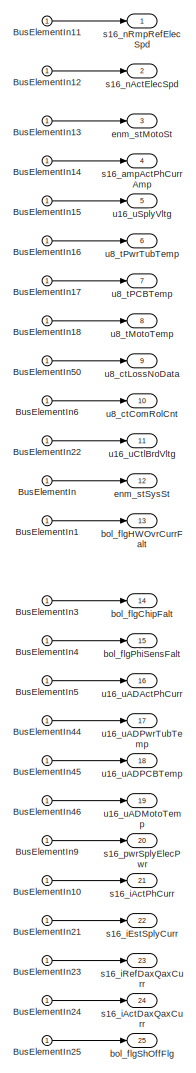
[diagram: OBD_SlwTask/vrs_SlwTaskIn/sss_SlwTaskInHybr - part 1/2, full width, top band]
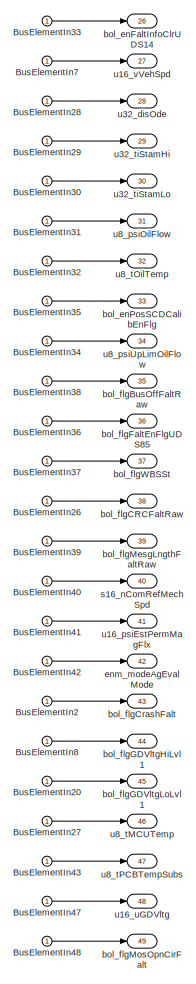
[diagram: OBD_SlwTask/vrs_SlwTaskIn/sss_SlwTaskInHybr - part 2/2, full width, bottom band]
BLOCK [SubSystem] OBD_SlwTask/vrs_SlwTaskIn/sss_SlwTaskInHybr
  VariantControl = cstHybrCtrlLbl
BLOCK [Inport] OBD_SlwTask/vrs_SlwTaskIn/sss_SlwTaskInHybr/BusElementIn
BLOCK [Inport] OBD_SlwTask/vrs_SlwTaskIn/sss_SlwTaskInHybr/BusElementIn1
BLOCK [Inport] OBD_SlwTask/vrs_SlwTaskIn/sss_SlwTaskInHybr/BusElementIn10
BLOCK [Inport] OBD_SlwTask/vrs_SlwTaskIn/sss_SlwTaskInHybr/BusElementIn11
BLOCK [Inport] OBD_SlwTask/vrs_SlwTaskIn/sss_SlwTaskInHybr/BusElementIn12
BLOCK [Inport] OBD_SlwTask/vrs_SlwTaskIn/sss_SlwTaskInHybr/BusElementIn13
BLOCK [Inport] OBD_SlwTask/vrs_SlwTaskIn/sss_SlwTaskInHybr/BusElementIn14
BLOCK [Inport] OBD_SlwTask/vrs_SlwTaskIn/sss_SlwTaskInHybr/BusElementIn15
BLOCK [Inport] OBD_SlwTask/vrs_SlwTaskIn/sss_SlwTaskInHybr/BusElementIn16
BLOCK [Inport] OBD_SlwTask/vrs_SlwTaskIn/sss_SlwTaskInHybr/BusElementIn17
BLOCK [Inport] OBD_SlwTask/vrs_SlwTaskIn/sss_SlwTaskInHybr/BusElementIn18
BLOCK [Inport] OBD_SlwTask/vrs_SlwTaskIn/sss_SlwTaskInHybr/BusElementIn2
BLOCK [Inport] OBD_SlwTask/vrs_SlwTaskIn/sss_SlwTaskInHybr/BusElementIn20
BLOCK [Inport] OBD_SlwTask/vrs_SlwTaskIn/sss_SlwTaskInHybr/BusElementIn21
BLOCK [Inport] OBD_SlwTask/vrs_SlwTaskIn/sss_SlwTaskInHybr/BusElementIn22
BLOCK [Inport] OBD_SlwTask/vrs_SlwTaskIn/sss_SlwTaskInHybr/BusElementIn23
BLOCK [Inport] OBD_SlwTask/vrs_SlwTaskIn/sss_SlwTaskInHybr/BusElementIn24
BLOCK [Inport] OBD_SlwTask/vrs_SlwTaskIn/sss_SlwTaskInHybr/BusElementIn25
BLOCK [Inport] OBD_SlwTask/vrs_SlwTaskIn/sss_SlwTaskInHybr/BusElementIn26
BLOCK [Inport] OBD_SlwTask/vrs_SlwTaskIn/sss_SlwTaskInHybr/BusElementIn27
BLOCK [Inport] OBD_SlwTask/vrs_SlwTaskIn/sss_SlwTaskInHybr/BusElementIn28
BLOCK [Inport] OBD_SlwTask/vrs_SlwTaskIn/sss_SlwTaskInHybr/BusElementIn29
BLOCK [Inport] OBD_SlwTask/vrs_SlwTaskIn/sss_SlwTaskInHybr/BusElementIn3
BLOCK [Inport] OBD_SlwTask/vrs_SlwTaskIn/sss_SlwTaskInHybr/BusElementIn30
BLOCK [Inport] OBD_SlwTask/vrs_SlwTaskIn/sss_SlwTaskInHybr/BusElementIn31
BLOCK [Inport] OBD_SlwTask/vrs_SlwTaskIn/sss_SlwTaskInHybr/BusElementIn32
BLOCK [Inport] OBD_SlwTask/vrs_SlwTaskIn/sss_SlwTaskInHybr/BusElementIn33
BLOCK [Inport] OBD_SlwTask/vrs_SlwTaskIn/sss_SlwTaskInHybr/BusElementIn34
BLOCK [Inport] OBD_SlwTask/vrs_SlwTaskIn/sss_SlwTaskInHybr/BusElementIn35
BLOCK [Inport] OBD_SlwTask/vrs_SlwTaskIn/sss_SlwTaskInHybr/BusElementIn36
BLOCK [Inport] OBD_SlwTask/vrs_SlwTaskIn/sss_SlwTaskInHybr/BusElementIn37
BLOCK [Inport] OBD_SlwTask/vrs_SlwTaskIn/sss_SlwTaskInHybr/BusElementIn38
BLOCK [Inport] OBD_SlwTask/vrs_SlwTaskIn/sss_SlwTaskInHybr/BusElementIn39
BLOCK [Inport] OBD_SlwTask/vrs_SlwTaskIn/sss_SlwTaskInHybr/BusElementIn4
BLOCK [Inport] OBD_SlwTask/vrs_SlwTaskIn/sss_SlwTaskInHybr/BusElementIn40
BLOCK [Inport] OBD_SlwTask/vrs_SlwTaskIn/sss_SlwTaskInHybr/BusElementIn41
BLOCK [Inport] OBD_SlwTask/vrs_SlwTaskIn/sss_SlwTaskInHybr/BusElementIn42
BLOCK [Inport] OBD_SlwTask/vrs_SlwTaskIn/sss_SlwTaskInHybr/BusElementIn43
BLOCK [Inport] OBD_SlwTask/vrs_SlwTaskIn/sss_SlwTaskInHybr/BusElementIn44
BLOCK [Inport] OBD_SlwTask/vrs_SlwTaskIn/sss_SlwTaskInHybr/BusElementIn45
BLOCK [Inport] OBD_SlwTask/vrs_SlwTaskIn/sss_SlwTaskInHybr/BusElementIn46
BLOCK [Inport] OBD_SlwTask/vrs_SlwTaskIn/sss_SlwTaskInHybr/BusElementIn47
BLOCK [Inport] OBD_SlwTask/vrs_SlwTaskIn/sss_SlwTaskInHybr/BusElementIn48
BLOCK [Inport] OBD_SlwTask/vrs_SlwTaskIn/sss_SlwTaskInHybr/BusElementIn5
BLOCK [Inport] OBD_SlwTask/vrs_SlwTaskIn/sss_SlwTaskInHybr/BusElementIn50
BLOCK [Inport] OBD_SlwTask/vrs_SlwTaskIn/sss_SlwTaskInHybr/BusElementIn6
BLOCK [Inport] OBD_SlwTask/vrs_SlwTaskIn/sss_SlwTaskInHybr/BusElementIn7
BLOCK [Inport] OBD_SlwTask/vrs_SlwTaskIn/sss_SlwTaskInHybr/BusElementIn8
BLOCK [Inport] OBD_SlwTask/vrs_SlwTaskIn/sss_SlwTaskInHybr/BusElementIn9
BLOCK [Outport] OBD_SlwTask/vrs_SlwTaskIn/sss_SlwTaskInHybr/bol_enFaltInfoClrUDS14
  Port = 26
BLOCK [Outport] OBD_SlwTask/vrs_SlwTaskIn/sss_SlwTaskInHybr/bol_enPosSCDCalibEnFlg
  Port = 33
BLOCK [Outport] OBD_SlwTask/vrs_SlwTaskIn/sss_SlwTaskInHybr/bol_flgBusOffFaltRaw
  Port = 35
BLOCK [Outport] OBD_SlwTask/vrs_SlwTaskIn/sss_SlwTaskInHybr/bol_flgCRCFaltRaw
  Port = 38
BLOCK [Outport] OBD_SlwTask/vrs_SlwTaskIn/sss_SlwTaskInHybr/bol_flgChipFalt
  Port = 14
BLOCK [Outport] OBD_SlwTask/vrs_SlwTaskIn/sss_SlwTaskInHybr/bol_flgCrashFalt
  Port = 43
BLOCK [Outport] OBD_SlwTask/vrs_SlwTaskIn/sss_SlwTaskInHybr/bol_flgFaltEnFlgUDS85
  Port = 36
BLOCK [Outport] OBD_SlwTask/vrs_SlwTaskIn/sss_SlwTaskInHybr/bol_flgGDVltgHiLvl1
  Port = 44
BLOCK [Outport] OBD_SlwTask/vrs_SlwTaskIn/sss_SlwTaskInHybr/bol_flgGDVltgLoLvl1
  Port = 45
BLOCK [Outport] OBD_SlwTask/vrs_SlwTaskIn/sss_SlwTaskInHybr/bol_flgHWOvrCurrFalt
  Port = 13
BLOCK [Outport] OBD_SlwTask/vrs_SlwTaskIn/sss_SlwTaskInHybr/bol_flgMesgLngthFaltRaw
  Port = 39
BLOCK [Outport] OBD_SlwTask/vrs_SlwTaskIn/sss_SlwTaskInHybr/bol_flgMosOpnCirFalt
  Port = 49
BLOCK [Outport] OBD_SlwTask/vrs_SlwTaskIn/sss_SlwTaskInHybr/bol_flgPhiSensFalt
  Port = 15
BLOCK [Outport] OBD_SlwTask/vrs_SlwTaskIn/sss_SlwTaskInHybr/bol_flgShOffFlg
  Port = 25
BLOCK [Outport] OBD_SlwTask/vrs_SlwTaskIn/sss_SlwTaskInHybr/bol_flgWBSSt
  Port = 37
BLOCK [Outport] OBD_SlwTask/vrs_SlwTaskIn/sss_SlwTaskInHybr/enm_modeAgEvalMode
  Port = 42
BLOCK [Outport] OBD_SlwTask/vrs_SlwTaskIn/sss_SlwTaskInHybr/enm_stMotoSt
  Port = 3
BLOCK [Outport] OBD_SlwTask/vrs_SlwTaskIn/sss_SlwTaskInHybr/enm_stSysSt
  Port = 12
BLOCK [Outport] OBD_SlwTask/vrs_SlwTaskIn/sss_SlwTaskInHybr/s16_ampActPhCurrAmp
  Port = 4
BLOCK [Outport] OBD_SlwTask/vrs_SlwTaskIn/sss_SlwTaskInHybr/s16_iActDaxQaxCurr
  Port = 24
BLOCK [Outport] OBD_SlwTask/vrs_SlwTaskIn/sss_SlwTaskInHybr/s16_iActPhCurr
  Port = 21
BLOCK [Outport] OBD_SlwTask/vrs_SlwTaskIn/sss_SlwTaskInHybr/s16_iEstSplyCurr
  Port = 22
BLOCK [Outport] OBD_SlwTask/vrs_SlwTaskIn/sss_SlwTaskInHybr/s16_iRefDaxQaxCurr
  Port = 23
BLOCK [Outport] OBD_SlwTask/vrs_SlwTaskIn/sss_SlwTaskInHybr/s16_nActElecSpd
  Port = 2
BLOCK [Outport] OBD_SlwTask/vrs_SlwTaskIn/sss_SlwTaskInHybr/s16_nComRefMechSpd
  Port = 40
BLOCK [Outport] OBD_SlwTask/vrs_SlwTaskIn/sss_SlwTaskInHybr/s16_nRmpRefElecSpd
BLOCK [Outport] OBD_SlwTask/vrs_SlwTaskIn/sss_SlwTaskInHybr/s16_pwrSplyElecPwr
  Port = 20
BLOCK [Outport] OBD_SlwTask/vrs_SlwTaskIn/sss_SlwTaskInHybr/u16_psiEstPermMagFlx
  Port = 41
BLOCK [Outport] OBD_SlwTask/vrs_SlwTaskIn/sss_SlwTaskInHybr/u16_uADActPhCurr
  Port = 16
BLOCK [Outport] OBD_SlwTask/vrs_SlwTaskIn/sss_SlwTaskInHybr/u16_uADMotoTemp
  Port = 19
BLOCK [Outport] OBD_SlwTask/vrs_SlwTaskIn/sss_SlwTaskInHybr/u16_uADPCBTemp
  Port = 18
BLOCK [Outport] OBD_SlwTask/vrs_SlwTaskIn/sss_SlwTaskInHybr/u16_uADPwrTubTemp
  Port = 17
BLOCK [Outport] OBD_SlwTask/vrs_SlwTaskIn/sss_SlwTaskInHybr/u16_uCtlBrdVltg
  Port = 11
BLOCK [Outport] OBD_SlwTask/vrs_SlwTaskIn/sss_SlwTaskInHybr/u16_uGDVltg
  Port = 48
BLOCK [Outport] OBD_SlwTask/vrs_SlwTaskIn/sss_SlwTaskInHybr/u16_uSplyVltg
  Port = 5
BLOCK [Outport] OBD_SlwTask/vrs_SlwTaskIn/sss_SlwTaskInHybr/u16_vVehSpd
  Port = 27
BLOCK [Outport] OBD_SlwTask/vrs_SlwTaskIn/sss_SlwTaskInHybr/u32_disOde
  Port = 28
BLOCK [Outport] OBD_SlwTask/vrs_SlwTaskIn/sss_SlwTaskInHybr/u32_tiStamHi
  Port = 29
BLOCK [Outport] OBD_SlwTask/vrs_SlwTaskIn/sss_SlwTaskInHybr/u32_tiStamLo
  Port = 30
BLOCK [Outport] OBD_SlwTask/vrs_SlwTaskIn/sss_SlwTaskInHybr/u8_ctComRolCnt
  Port = 10
BLOCK [Outport] OBD_SlwTask/vrs_SlwTaskIn/sss_SlwTaskInHybr/u8_ctLossNoData
  Port = 9
BLOCK [Outport] OBD_SlwTask/vrs_SlwTaskIn/sss_SlwTaskInHybr/u8_psiOilFlow
  Port = 31
BLOCK [Outport] OBD_SlwTask/vrs_SlwTaskIn/sss_SlwTaskInHybr/u8_psiUpLimOilFlow
  Port = 34
BLOCK [Outport] OBD_SlwTask/vrs_SlwTaskIn/sss_SlwTaskInHybr/u8_tMCUTemp
  Port = 46
BLOCK [Outport] OBD_SlwTask/vrs_SlwTaskIn/sss_SlwTaskInHybr/u8_tMotoTemp
  Port = 8
BLOCK [Outport] OBD_SlwTask/vrs_SlwTaskIn/sss_SlwTaskInHybr/u8_tOilTemp
  Port = 32
BLOCK [Outport] OBD_SlwTask/vrs_SlwTaskIn/sss_SlwTaskInHybr/u8_tPCBTemp
  Port = 7
BLOCK [Outport] OBD_SlwTask/vrs_SlwTaskIn/sss_SlwTaskInHybr/u8_tPCBTempSubs
  Port = 47
BLOCK [Outport] OBD_SlwTask/vrs_SlwTaskIn/sss_SlwTaskInHybr/u8_tPwrTubTemp
  Port = 6
BLOCK [SubSystem] OBD_SlwTask/vrs_SlwTaskIn/sss_SlwTaskInSenl
  VariantControl = cstSenlCtrlLbl
BLOCK [Inport] OBD_SlwTask/vrs_SlwTaskIn/sss_SlwTaskInSenl/BusElementIn
BLOCK [Inport] OBD_SlwTask/vrs_SlwTaskIn/sss_SlwTaskInSenl/BusElementIn1
BLOCK [Inport] OBD_SlwTask/vrs_SlwTaskIn/sss_SlwTaskInSenl/BusElementIn10
BLOCK [Inport] OBD_SlwTask/vrs_SlwTaskIn/sss_SlwTaskInSenl/BusElementIn11
BLOCK [Inport] OBD_SlwTask/vrs_SlwTaskIn/sss_SlwTaskInSenl/BusElementIn12
BLOCK [Inport] OBD_SlwTask/vrs_SlwTaskIn/sss_SlwTaskInSenl/BusElementIn13
BLOCK [Inport] OBD_SlwTask/vrs_SlwTaskIn/sss_SlwTaskInSenl/BusElementIn14
BLOCK [Inport] OBD_SlwTask/vrs_SlwTaskIn/sss_SlwTaskInSenl/BusElementIn15
BLOCK [Inport] OBD_SlwTask/vrs_SlwTaskIn/sss_SlwTaskInSenl/BusElementIn16
BLOCK [Inport] OBD_SlwTask/vrs_SlwTaskIn/sss_SlwTaskInSenl/BusElementIn17
BLOCK [Inport] OBD_SlwTask/vrs_SlwTaskIn/sss_SlwTaskInSenl/BusElementIn18
BLOCK [Inport] OBD_SlwTask/vrs_SlwTaskIn/sss_SlwTaskInSenl/BusElementIn19
BLOCK [Inport] OBD_SlwTask/vrs_SlwTaskIn/sss_SlwTaskInSenl/BusElementIn2
BLOCK [Inport] OBD_SlwTask/vrs_SlwTaskIn/sss_SlwTaskInSenl/BusElementIn20
BLOCK [Inport] OBD_SlwTask/vrs_SlwTaskIn/sss_SlwTaskInSenl/BusElementIn21
BLOCK [Inport] OBD_SlwTask/vrs_SlwTaskIn/sss_SlwTaskInSenl/BusElementIn22
BLOCK [Inport] OBD_SlwTask/vrs_SlwTaskIn/sss_SlwTaskInSenl/BusElementIn23
BLOCK [Inport] OBD_SlwTask/vrs_SlwTaskIn/sss_SlwTaskInSenl/BusElementIn24
BLOCK [Inport] OBD_SlwTask/vrs_SlwTaskIn/sss_SlwTaskInSenl/BusElementIn25
BLOCK [Inport] OBD_SlwTask/vrs_SlwTaskIn/sss_SlwTaskInSenl/BusElementIn26
BLOCK [Inport] OBD_SlwTask/vrs_SlwTaskIn/sss_SlwTaskInSenl/BusElementIn27
BLOCK [Inport] OBD_SlwTask/vrs_SlwTaskIn/sss_SlwTaskInSenl/BusElementIn28
BLOCK [Inport] OBD_SlwTask/vrs_SlwTaskIn/sss_SlwTaskInSenl/BusElementIn29
BLOCK [Inport] OBD_SlwTask/vrs_SlwTaskIn/sss_SlwTaskInSenl/BusElementIn3
BLOCK [Inport] OBD_SlwTask/vrs_SlwTaskIn/sss_SlwTaskInSenl/BusElementIn30
BLOCK [Inport] OBD_SlwTask/vrs_SlwTaskIn/sss_SlwTaskInSenl/BusElementIn31
BLOCK [Inport] OBD_SlwTask/vrs_SlwTaskIn/sss_SlwTaskInSenl/BusElementIn32
BLOCK [Inport] OBD_SlwTask/vrs_SlwTaskIn/sss_SlwTaskInSenl/BusElementIn33
BLOCK [Inport] OBD_SlwTask/vrs_SlwTaskIn/sss_SlwTaskInSenl/BusElementIn34
BLOCK [Inport] OBD_SlwTask/vrs_SlwTaskIn/sss_SlwTaskInSenl/BusElementIn35
BLOCK [Inport] OBD_SlwTask/vrs_SlwTaskIn/sss_SlwTaskInSenl/BusElementIn36
BLOCK [Inport] OBD_SlwTask/vrs_SlwTaskIn/sss_SlwTaskInSenl/BusElementIn37
BLOCK [Inport] OBD_SlwTask/vrs_SlwTaskIn/sss_SlwTaskInSenl/BusElementIn38
BLOCK [Inport] OBD_SlwTask/vrs_SlwTaskIn/sss_SlwTaskInSenl/BusElementIn39
BLOCK [Inport] OBD_SlwTask/vrs_SlwTaskIn/sss_SlwTaskInSenl/BusElementIn4
BLOCK [Inport] OBD_SlwTask/vrs_SlwTaskIn/sss_SlwTaskInSenl/BusElementIn40
BLOCK [Inport] OBD_SlwTask/vrs_SlwTaskIn/sss_SlwTaskInSenl/BusElementIn41
BLOCK [Inport] OBD_SlwTask/vrs_SlwTaskIn/sss_SlwTaskInSenl/BusElementIn42
BLOCK [Inport] OBD_SlwTask/vrs_SlwTaskIn/sss_SlwTaskInSenl/BusElementIn44
BLOCK [Inport] OBD_SlwTask/vrs_SlwTaskIn/sss_SlwTaskInSenl/BusElementIn45
BLOCK [Inport] OBD_SlwTask/vrs_SlwTaskIn/sss_SlwTaskInSenl/BusElementIn46
BLOCK [Inport] OBD_SlwTask/vrs_SlwTaskIn/sss_SlwTaskInSenl/BusElementIn5
BLOCK [Inport] OBD_SlwTask/vrs_SlwTaskIn/sss_SlwTaskInSenl/BusElementIn6
BLOCK [Inport] OBD_SlwTask/vrs_SlwTaskIn/sss_SlwTaskInSenl/BusElementIn7
BLOCK [Inport] OBD_SlwTask/vrs_SlwTaskIn/sss_SlwTaskInSenl/BusElementIn8
BLOCK [Inport] OBD_SlwTask/vrs_SlwTaskIn/sss_SlwTaskInSenl/BusElementIn9
BLOCK [Outport] OBD_SlwTask/vrs_SlwTaskIn/sss_SlwTaskInSenl/bol_enFaltInfoClrUDS14
  Port = 26
BLOCK [Outport] OBD_SlwTask/vrs_SlwTaskIn/sss_SlwTaskInSenl/bol_enPosSCDCalibEnFlg
  Port = 33
BLOCK [Outport] OBD_SlwTask/vrs_SlwTaskIn/sss_SlwTaskInSenl/bol_flgBusOffFaltRaw
  Port = 35
BLOCK [Outport] OBD_SlwTask/vrs_SlwTaskIn/sss_SlwTaskInSenl/bol_flgCRCFaltRaw
  Port = 38
BLOCK [Outport] OBD_SlwTask/vrs_SlwTaskIn/sss_SlwTaskInSenl/bol_flgChipFalt
  Port = 14
BLOCK [Outport] OBD_SlwTask/vrs_SlwTaskIn/sss_SlwTaskInSenl/bol_flgCrashFalt
  Port = 43
BLOCK [Outport] OBD_SlwTask/vrs_SlwTaskIn/sss_SlwTaskInSenl/bol_flgFaltEnFlgUDS85
  Port = 36
BLOCK [Outport] OBD_SlwTask/vrs_SlwTaskIn/sss_SlwTaskInSenl/bol_flgGDVltgHiLvl1
  Port = 44
BLOCK [Outport] OBD_SlwTask/vrs_SlwTaskIn/sss_SlwTaskInSenl/bol_flgGDVltgLoLvl1
  Port = 45
BLOCK [Outport] OBD_SlwTask/vrs_SlwTaskIn/sss_SlwTaskInSenl/bol_flgHWOvrCurrFalt
  Port = 13
BLOCK [Outport] OBD_SlwTask/vrs_SlwTaskIn/sss_SlwTaskInSenl/bol_flgMesgLngthFaltRaw
  Port = 39
BLOCK [Outport] OBD_SlwTask/vrs_SlwTaskIn/sss_SlwTaskInSenl/bol_flgPhiSensFalt
  Port = 15
BLOCK [Outport] OBD_SlwTask/vrs_SlwTaskIn/sss_SlwTaskInSenl/bol_flgShOffFlg
  Port = 25
BLOCK [Outport] OBD_SlwTask/vrs_SlwTaskIn/sss_SlwTaskInSenl/bol_flgWBSSt
  Port = 37
BLOCK [Outport] OBD_SlwTask/vrs_SlwTaskIn/sss_SlwTaskInSenl/enm_modeAgEvalMode
  Port = 42
BLOCK [Outport] OBD_SlwTask/vrs_SlwTaskIn/sss_SlwTaskInSenl/enm_stMotoSt
  Port = 3
BLOCK [Outport] OBD_SlwTask/vrs_SlwTaskIn/sss_SlwTaskInSenl/enm_stSysSt
  Port = 12
BLOCK [Outport] OBD_SlwTask/vrs_SlwTaskIn/sss_SlwTaskInSenl/s16_ampActPhCurrAmp
  Port = 4
BLOCK [Outport] OBD_SlwTask/vrs_SlwTaskIn/sss_SlwTaskInSenl/s16_iActDaxQaxCurr
  Port = 24
BLOCK [Outport] OBD_SlwTask/vrs_SlwTaskIn/sss_SlwTaskInSenl/s16_iActPhCurr
  Port = 21
BLOCK [Outport] OBD_SlwTask/vrs_SlwTaskIn/sss_SlwTaskInSenl/s16_iEstSplyCurr
  Port = 22
BLOCK [Outport] OBD_SlwTask/vrs_SlwTaskIn/sss_SlwTaskInSenl/s16_iRefDaxQaxCurr
  Port = 23
BLOCK [Outport] OBD_SlwTask/vrs_SlwTaskIn/sss_SlwTaskInSenl/s16_nActElecSpd
  Port = 2
BLOCK [Outport] OBD_SlwTask/vrs_SlwTaskIn/sss_SlwTaskInSenl/s16_nComRefMechSpd
  Port = 40
BLOCK [Outport] OBD_SlwTask/vrs_SlwTaskIn/sss_SlwTaskInSenl/s16_nRmpRefElecSpd
BLOCK [Outport] OBD_SlwTask/vrs_SlwTaskIn/sss_SlwTaskInSenl/s16_pwrSplyElecPwr
  Port = 20
BLOCK [Outport] OBD_SlwTask/vrs_SlwTaskIn/sss_SlwTaskInSenl/u16_psiEstPermMagFlx
  Port = 41
BLOCK [Outport] OBD_SlwTask/vrs_SlwTaskIn/sss_SlwTaskInSenl/u16_uADActPhCurr
  Port = 16
BLOCK [Outport] OBD_SlwTask/vrs_SlwTaskIn/sss_SlwTaskInSenl/u16_uADMotoTemp
  Port = 19
BLOCK [Outport] OBD_SlwTask/vrs_SlwTaskIn/sss_SlwTaskInSenl/u16_uADPCBTemp
  Port = 18
BLOCK [Outport] OBD_SlwTask/vrs_SlwTaskIn/sss_SlwTaskInSenl/u16_uADPwrTubTemp
  Port = 17
BLOCK [Outport] OBD_SlwTask/vrs_SlwTaskIn/sss_SlwTaskInSenl/u16_uCtlBrdVltg
  Port = 11
BLOCK [Outport] OBD_SlwTask/vrs_SlwTaskIn/sss_SlwTaskInSenl/u16_uSplyVltg
  Port = 5
BLOCK [Outport] OBD_SlwTask/vrs_SlwTaskIn/sss_SlwTaskInSenl/u16_vVehSpd
  Port = 27
BLOCK [Outport] OBD_SlwTask/vrs_SlwTaskIn/sss_SlwTaskInSenl/u32_disOde
  Port = 28
BLOCK [Outport] OBD_SlwTask/vrs_SlwTaskIn/sss_SlwTaskInSenl/u32_tiStamHi
  Port = 29
BLOCK [Outport] OBD_SlwTask/vrs_SlwTaskIn/sss_SlwTaskInSenl/u32_tiStamLo
  Port = 30
BLOCK [Outport] OBD_SlwTask/vrs_SlwTaskIn/sss_SlwTaskInSenl/u8_ctComRolCnt
  Port = 10
BLOCK [Outport] OBD_SlwTask/vrs_SlwTaskIn/sss_SlwTaskInSenl/u8_ctLossNoData
  Port = 9
BLOCK [Outport] OBD_SlwTask/vrs_SlwTaskIn/sss_SlwTaskInSenl/u8_psiOilFlow
  Port = 31
BLOCK [Outport] OBD_SlwTask/vrs_SlwTaskIn/sss_SlwTaskInSenl/u8_psiUpLimOilFlow
  Port = 34
BLOCK [Outport] OBD_SlwTask/vrs_SlwTaskIn/sss_SlwTaskInSenl/u8_tMCUTemp
  Port = 46
BLOCK [Outport] OBD_SlwTask/vrs_SlwTaskIn/sss_SlwTaskInSenl/u8_tMotoTemp
  Port = 8
BLOCK [Outport] OBD_SlwTask/vrs_SlwTaskIn/sss_SlwTaskInSenl/u8_tOilTemp
  Port = 32
BLOCK [Outport] OBD_SlwTask/vrs_SlwTaskIn/sss_SlwTaskInSenl/u8_tPCBTemp
  Port = 7
BLOCK [Outport] OBD_SlwTask/vrs_SlwTaskIn/sss_SlwTaskInSenl/u8_tPwrTubTemp
  Port = 6
BLOCK [SubSystem] OBD_SlwTask/vrs_SlwTaskIn/sss_SlwTaskInSens
  VariantControl = cstSensCtrlLbl
BLOCK [Inport] OBD_SlwTask/vrs_SlwTaskIn/sss_SlwTaskInSens/BusElementIn
BLOCK [Inport] OBD_SlwTask/vrs_SlwTaskIn/sss_SlwTaskInSens/BusElementIn1
BLOCK [Inport] OBD_SlwTask/vrs_SlwTaskIn/sss_SlwTaskInSens/BusElementIn10
BLOCK [Inport] OBD_SlwTask/vrs_SlwTaskIn/sss_SlwTaskInSens/BusElementIn11
BLOCK [Inport] OBD_SlwTask/vrs_SlwTaskIn/sss_SlwTaskInSens/BusElementIn12
BLOCK [Inport] OBD_SlwTask/vrs_SlwTaskIn/sss_SlwTaskInSens/BusElementIn13
BLOCK [Inport] OBD_SlwTask/vrs_SlwTaskIn/sss_SlwTaskInSens/BusElementIn14
BLOCK [Inport] OBD_SlwTask/vrs_SlwTaskIn/sss_SlwTaskInSens/BusElementIn15
BLOCK [Inport] OBD_SlwTask/vrs_SlwTaskIn/sss_SlwTaskInSens/BusElementIn16
BLOCK [Inport] OBD_SlwTask/vrs_SlwTaskIn/sss_SlwTaskInSens/BusElementIn17
BLOCK [Inport] OBD_SlwTask/vrs_SlwTaskIn/sss_SlwTaskInSens/BusElementIn18
BLOCK [Inport] OBD_SlwTask/vrs_SlwTaskIn/sss_SlwTaskInSens/BusElementIn19
BLOCK [Inport] OBD_SlwTask/vrs_SlwTaskIn/sss_SlwTaskInSens/BusElementIn2
BLOCK [Inport] OBD_SlwTask/vrs_SlwTaskIn/sss_SlwTaskInSens/BusElementIn20
BLOCK [Inport] OBD_SlwTask/vrs_SlwTaskIn/sss_SlwTaskInSens/BusElementIn21
BLOCK [Inport] OBD_SlwTask/vrs_SlwTaskIn/sss_SlwTaskInSens/BusElementIn22
BLOCK [Inport] OBD_SlwTask/vrs_SlwTaskIn/sss_SlwTaskInSens/BusElementIn23
BLOCK [Inport] OBD_SlwTask/vrs_SlwTaskIn/sss_SlwTaskInSens/BusElementIn24
BLOCK [Inport] OBD_SlwTask/vrs_SlwTaskIn/sss_SlwTaskInSens/BusElementIn25
BLOCK [Inport] OBD_SlwTask/vrs_SlwTaskIn/sss_SlwTaskInSens/BusElementIn26
BLOCK [Inport] OBD_SlwTask/vrs_SlwTaskIn/sss_SlwTaskInSens/BusElementIn27
BLOCK [Inport] OBD_SlwTask/vrs_SlwTaskIn/sss_SlwTaskInSens/BusElementIn28
BLOCK [Inport] OBD_SlwTask/vrs_SlwTaskIn/sss_SlwTaskInSens/BusElementIn29
BLOCK [Inport] OBD_SlwTask/vrs_SlwTaskIn/sss_SlwTaskInSens/BusElementIn3
BLOCK [Inport] OBD_SlwTask/vrs_SlwTaskIn/sss_SlwTaskInSens/BusElementIn30
BLOCK [Inport] OBD_SlwTask/vrs_SlwTaskIn/sss_SlwTaskInSens/BusElementIn31
BLOCK [Inport] OBD_SlwTask/vrs_SlwTaskIn/sss_SlwTaskInSens/BusElementIn32
BLOCK [Inport] OBD_SlwTask/vrs_SlwTaskIn/sss_SlwTaskInSens/BusElementIn33
BLOCK [Inport] OBD_SlwTask/vrs_SlwTaskIn/sss_SlwTaskInSens/BusElementIn34
BLOCK [Inport] OBD_SlwTask/vrs_SlwTaskIn/sss_SlwTaskInSens/BusElementIn35
BLOCK [Inport] OBD_SlwTask/vrs_SlwTaskIn/sss_SlwTaskInSens/BusElementIn36
BLOCK [Inport] OBD_SlwTask/vrs_SlwTaskIn/sss_SlwTaskInSens/BusElementIn37
BLOCK [Inport] OBD_SlwTask/vrs_SlwTaskIn/sss_SlwTaskInSens/BusElementIn38
BLOCK [Inport] OBD_SlwTask/vrs_SlwTaskIn/sss_SlwTaskInSens/BusElementIn39
BLOCK [Inport] OBD_SlwTask/vrs_SlwTaskIn/sss_SlwTaskInSens/BusElementIn4
BLOCK [Inport] OBD_SlwTask/vrs_SlwTaskIn/sss_SlwTaskInSens/BusElementIn40
BLOCK [Inport] OBD_SlwTask/vrs_SlwTaskIn/sss_SlwTaskInSens/BusElementIn41
BLOCK [Inport] OBD_SlwTask/vrs_SlwTaskIn/sss_SlwTaskInSens/BusElementIn42
BLOCK [Inport] OBD_SlwTask/vrs_SlwTaskIn/sss_SlwTaskInSens/BusElementIn44
BLOCK [Inport] OBD_SlwTask/vrs_SlwTaskIn/sss_SlwTaskInSens/BusElementIn45
BLOCK [Inport] OBD_SlwTask/vrs_SlwTaskIn/sss_SlwTaskInSens/BusElementIn46
BLOCK [Inport] OBD_SlwTask/vrs_SlwTaskIn/sss_SlwTaskInSens/BusElementIn5
BLOCK [Inport] OBD_SlwTask/vrs_SlwTaskIn/sss_SlwTaskInSens/BusElementIn6
BLOCK [Inport] OBD_SlwTask/vrs_SlwTaskIn/sss_SlwTaskInSens/BusElementIn7
BLOCK [Inport] OBD_SlwTask/vrs_SlwTaskIn/sss_SlwTaskInSens/BusElementIn8
BLOCK [Inport] OBD_SlwTask/vrs_SlwTaskIn/sss_SlwTaskInSens/BusElementIn9
BLOCK [Outport] OBD_SlwTask/vrs_SlwTaskIn/sss_SlwTaskInSens/bol_enFaltInfoClrUDS14
  Port = 26
BLOCK [Outport] OBD_SlwTask/vrs_SlwTaskIn/sss_SlwTaskInSens/bol_enPosSCDCalibEnFlg
  Port = 33
BLOCK [Outport] OBD_SlwTask/vrs_SlwTaskIn/sss_SlwTaskInSens/bol_flgBusOffFaltRaw
  Port = 35
BLOCK [Outport] OBD_SlwTask/vrs_SlwTaskIn/sss_SlwTaskInSens/bol_flgCRCFaltRaw
  Port = 38
BLOCK [Outport] OBD_SlwTask/vrs_SlwTaskIn/sss_SlwTaskInSens/bol_flgChipFalt
  Port = 14
BLOCK [Outport] OBD_SlwTask/vrs_SlwTaskIn/sss_SlwTaskInSens/bol_flgCrashFalt
  Port = 43
BLOCK [Outport] OBD_SlwTask/vrs_SlwTaskIn/sss_SlwTaskInSens/bol_flgFaltEnFlgUDS85
  Port = 36
BLOCK [Outport] OBD_SlwTask/vrs_SlwTaskIn/sss_SlwTaskInSens/bol_flgGDVltgHiLvl1
  Port = 44
BLOCK [Outport] OBD_SlwTask/vrs_SlwTaskIn/sss_SlwTaskInSens/bol_flgGDVltgLoLvl1
  Port = 45
BLOCK [Outport] OBD_SlwTask/vrs_SlwTaskIn/sss_SlwTaskInSens/bol_flgHWOvrCurrFalt
  Port = 13
BLOCK [Outport] OBD_SlwTask/vrs_SlwTaskIn/sss_SlwTaskInSens/bol_flgMesgLngthFaltRaw
  Port = 39
BLOCK [Outport] OBD_SlwTask/vrs_SlwTaskIn/sss_SlwTaskInSens/bol_flgPhiSensFalt
  Port = 15
BLOCK [Outport] OBD_SlwTask/vrs_SlwTaskIn/sss_SlwTaskInSens/bol_flgShOffFlg
  Port = 25
BLOCK [Outport] OBD_SlwTask/vrs_SlwTaskIn/sss_SlwTaskInSens/bol_flgWBSSt
  Port = 37
BLOCK [Outport] OBD_SlwTask/vrs_SlwTaskIn/sss_SlwTaskInSens/enm_modeAgEvalMode
  Port = 42
BLOCK [Outport] OBD_SlwTask/vrs_SlwTaskIn/sss_SlwTaskInSens/enm_stMotoSt
  Port = 3
BLOCK [Outport] OBD_SlwTask/vrs_SlwTaskIn/sss_SlwTaskInSens/enm_stSysSt
  Port = 12
BLOCK [Outport] OBD_SlwTask/vrs_SlwTaskIn/sss_SlwTaskInSens/s16_ampActPhCurrAmp
  Port = 4
BLOCK [Outport] OBD_SlwTask/vrs_SlwTaskIn/sss_SlwTaskInSens/s16_iActDaxQaxCurr
  Port = 24
BLOCK [Outport] OBD_SlwTask/vrs_SlwTaskIn/sss_SlwTaskInSens/s16_iActPhCurr
  Port = 21
BLOCK [Outport] OBD_SlwTask/vrs_SlwTaskIn/sss_SlwTaskInSens/s16_iEstSplyCurr
  Port = 22
BLOCK [Outport] OBD_SlwTask/vrs_SlwTaskIn/sss_SlwTaskInSens/s16_iRefDaxQaxCurr
  Port = 23
BLOCK [Outport] OBD_SlwTask/vrs_SlwTaskIn/sss_SlwTaskInSens/s16_nActElecSpd
  Port = 2
BLOCK [Outport] OBD_SlwTask/vrs_SlwTaskIn/sss_SlwTaskInSens/s16_nComRefMechSpd
  Port = 40
BLOCK [Outport] OBD_SlwTask/vrs_SlwTaskIn/sss_SlwTaskInSens/s16_nRmpRefElecSpd
BLOCK [Outport] OBD_SlwTask/vrs_SlwTaskIn/sss_SlwTaskInSens/s16_pwrSplyElecPwr
  Port = 20
BLOCK [Outport] OBD_SlwTask/vrs_SlwTaskIn/sss_SlwTaskInSens/u16_psiEstPermMagFlx
  Port = 41
BLOCK [Outport] OBD_SlwTask/vrs_SlwTaskIn/sss_SlwTaskInSens/u16_uADActPhCurr
  Port = 16
BLOCK [Outport] OBD_SlwTask/vrs_SlwTaskIn/sss_SlwTaskInSens/u16_uADMotoTemp
  Port = 19
BLOCK [Outport] OBD_SlwTask/vrs_SlwTaskIn/sss_SlwTaskInSens/u16_uADPCBTemp
  Port = 18
BLOCK [Outport] OBD_SlwTask/vrs_SlwTaskIn/sss_SlwTaskInSens/u16_uADPwrTubTemp
  Port = 17
BLOCK [Outport] OBD_SlwTask/vrs_SlwTaskIn/sss_SlwTaskInSens/u16_uCtlBrdVltg
  Port = 11
BLOCK [Outport] OBD_SlwTask/vrs_SlwTaskIn/sss_SlwTaskInSens/u16_uSplyVltg
  Port = 5
BLOCK [Outport] OBD_SlwTask/vrs_SlwTaskIn/sss_SlwTaskInSens/u16_vVehSpd
  Port = 27
BLOCK [Outport] OBD_SlwTask/vrs_SlwTaskIn/sss_SlwTaskInSens/u32_disOde
  Port = 28
BLOCK [Outport] OBD_SlwTask/vrs_SlwTaskIn/sss_SlwTaskInSens/u32_tiStamHi
  Port = 29
BLOCK [Outport] OBD_SlwTask/vrs_SlwTaskIn/sss_SlwTaskInSens/u32_tiStamLo
  Port = 30
BLOCK [Outport] OBD_SlwTask/vrs_SlwTaskIn/sss_SlwTaskInSens/u8_ctComRolCnt
  Port = 10
BLOCK [Outport] OBD_SlwTask/vrs_SlwTaskIn/sss_SlwTaskInSens/u8_ctLossNoData
  Port = 9
BLOCK [Outport] OBD_SlwTask/vrs_SlwTaskIn/sss_SlwTaskInSens/u8_psiOilFlow
  Port = 31
BLOCK [Outport] OBD_SlwTask/vrs_SlwTaskIn/sss_SlwTaskInSens/u8_psiUpLimOilFlow
  Port = 34
BLOCK [Outport] OBD_SlwTask/vrs_SlwTaskIn/sss_SlwTaskInSens/u8_tMCUTemp
  Port = 46
BLOCK [Outport] OBD_SlwTask/vrs_SlwTaskIn/sss_SlwTaskInSens/u8_tMotoTemp
  Port = 8
BLOCK [Outport] OBD_SlwTask/vrs_SlwTaskIn/sss_SlwTaskInSens/u8_tOilTemp
  Port = 32
BLOCK [Outport] OBD_SlwTask/vrs_SlwTaskIn/sss_SlwTaskInSens/u8_tPCBTemp
  Port = 7
BLOCK [Outport] OBD_SlwTask/vrs_SlwTaskIn/sss_SlwTaskInSens/u8_tPwrTubTemp
  Port = 6
BLOCK [Outport] OBD_SlwTask/vrs_SlwTaskIn/u16_psiEstPermMagFlx
  Port = 41
BLOCK [Outport] OBD_SlwTask/vrs_SlwTaskIn/u16_uADActPhCurr
  Port = 16
BLOCK [Outport] OBD_SlwTask/vrs_SlwTaskIn/u16_uADMotoTemp
  Port = 19
BLOCK [Outport] OBD_SlwTask/vrs_SlwTaskIn/u16_uADPCBTemp
  Port = 18
BLOCK [Outport] OBD_SlwTask/vrs_SlwTaskIn/u16_uADPwrTubTemp
  Port = 17
BLOCK [Outport] OBD_SlwTask/vrs_SlwTaskIn/u16_uCtlBrdVltg
  Port = 11
BLOCK [Outport] OBD_SlwTask/vrs_SlwTaskIn/u16_uGDVltg
  Port = 48
BLOCK [Outport] OBD_SlwTask/vrs_SlwTaskIn/u16_uSplyVltg
  Port = 5
BLOCK [Outport] OBD_SlwTask/vrs_SlwTaskIn/u16_vVehSpd
  Port = 27
BLOCK [Outport] OBD_SlwTask/vrs_SlwTaskIn/u32_disOde
  Port = 28
BLOCK [Outport] OBD_SlwTask/vrs_SlwTaskIn/u32_tiStamHi
  Port = 29
BLOCK [Outport] OBD_SlwTask/vrs_SlwTaskIn/u32_tiStamLo
  Port = 30
BLOCK [Outport] OBD_SlwTask/vrs_SlwTaskIn/u8_ctComRolCnt
  Port = 10
BLOCK [Outport] OBD_SlwTask/vrs_SlwTaskIn/u8_ctLossNoData
  Port = 9
BLOCK [Outport] OBD_SlwTask/vrs_SlwTaskIn/u8_psiOilFlow
  Port = 31
BLOCK [Outport] OBD_SlwTask/vrs_SlwTaskIn/u8_psiUpLimOilFlow
  Port = 34
BLOCK [Outport] OBD_SlwTask/vrs_SlwTaskIn/u8_tMCUTemp
  Port = 46
BLOCK [Outport] OBD_SlwTask/vrs_SlwTaskIn/u8_tMotoTemp
  Port = 8
BLOCK [Outport] OBD_SlwTask/vrs_SlwTaskIn/u8_tOilTemp
  Port = 32
BLOCK [Outport] OBD_SlwTask/vrs_SlwTaskIn/u8_tPCBTemp
  Port = 7
BLOCK [Outport] OBD_SlwTask/vrs_SlwTaskIn/u8_tPCBTempSubs
  Port = 47
BLOCK [Outport] OBD_SlwTask/vrs_SlwTaskIn/u8_tPwrTubTemp
  Port = 6
BLOCK [SubSystem] OBD_SlwTask/vrs_SlwTaskOut
  LabelModeActiveChoice = cstHybrCtrlLbl
  Variant = on
  VariantControl = Choice
  VariantControlMode = label
BLOCK [Inport] OBD_SlwTask/vrs_SlwTaskOut/bol_flgCRCFaltDeb
  Port = 8
BLOCK [Inport] OBD_SlwTask/vrs_SlwTaskOut/bol_flgComNodeLosFaltDeb
  Port = 6
BLOCK [Inport] OBD_SlwTask/vrs_SlwTaskOut/bol_flgComRolCntFaltDeb
  Port = 7
BLOCK [Inport] OBD_SlwTask/vrs_SlwTaskOut/bol_flgPhiSensFaltRawFlg
  Port = 5
BLOCK [Inport] OBD_SlwTask/vrs_SlwTaskOut/busOBD_FaltSt
BLOCK [Inport] OBD_SlwTask/vrs_SlwTaskOut/busOBD_FaltStTmp
  Port = 9
BLOCK [Outport] OBD_SlwTask/vrs_SlwTaskOut/busOBD_SlwTaskOut
BLOCK [Inport] OBD_SlwTask/vrs_SlwTaskOut/s16_nFaltRefMechSpd
  Port = 3
BLOCK [Inport] OBD_SlwTask/vrs_SlwTaskOut/s16_trqFaltRefTqLim
  Port = 4
BLOCK [SubSystem] OBD_SlwTask/vrs_SlwTaskOut/sss_SlwTaskOutHybr
  VariantControl = cstHybrCtrlLbl
BLOCK [BusCreator] OBD_SlwTask/vrs_SlwTaskOut/sss_SlwTaskOutHybr/Bus Creator1
  DisplayOption = bar
  InheritFromInputs = off
  Inputs = 9
  NonVirtualBus = on
  OutDataTypeStr = Bus: BUS_OBD_SLW_TASK_OUT
BLOCK [Inport] OBD_SlwTask/vrs_SlwTaskOut/sss_SlwTaskOutHybr/bol_flgCRCFaltDeb
  Port = 8
BLOCK [Inport] OBD_SlwTask/vrs_SlwTaskOut/sss_SlwTaskOutHybr/bol_flgComNodeLosFaltDeb
  Port = 6
BLOCK [Inport] OBD_SlwTask/vrs_SlwTaskOut/sss_SlwTaskOutHybr/bol_flgComRolCntFaltDeb
  Port = 7
BLOCK [Inport] OBD_SlwTask/vrs_SlwTaskOut/sss_SlwTaskOutHybr/bol_flgPhiSensFaltRawFlg
  Port = 5
BLOCK [Inport] OBD_SlwTask/vrs_SlwTaskOut/sss_SlwTaskOutHybr/busOBD_FaltSt
BLOCK [Inport] OBD_SlwTask/vrs_SlwTaskOut/sss_SlwTaskOutHybr/busOBD_FaltStTmp
  Port = 9
BLOCK [Outport] OBD_SlwTask/vrs_SlwTaskOut/sss_SlwTaskOutHybr/busOBD_SlwTaskOut
BLOCK [Inport] OBD_SlwTask/vrs_SlwTaskOut/sss_SlwTaskOutHybr/s16_nFaltRefMechSpd
  Port = 3
BLOCK [Inport] OBD_SlwTask/vrs_SlwTaskOut/sss_SlwTaskOutHybr/s16_trqFaltRefTqLim
  Port = 4
BLOCK [Inport] OBD_SlwTask/vrs_SlwTaskOut/sss_SlwTaskOutHybr/u8_stMaxFaltLvl
  Port = 2
BLOCK [SubSystem] OBD_SlwTask/vrs_SlwTaskOut/sss_SlwTaskOutSenl
  VariantControl = cstSenlCtrlLbl
BLOCK [BusCreator] OBD_SlwTask/vrs_SlwTaskOut/sss_SlwTaskOutSenl/Bus Creator1
  DisplayOption = bar
  InheritFromInputs = off
  Inputs = 4
  NonVirtualBus = on
  OutDataTypeStr = Bus: BUS_OBD_SLW_TASK_OUT
BLOCK [Inport] OBD_SlwTask/vrs_SlwTaskOut/sss_SlwTaskOutSenl/busOBD_FaltSt
BLOCK [Outport] OBD_SlwTask/vrs_SlwTaskOut/sss_SlwTaskOutSenl/busOBD_SlwTaskOut
BLOCK [Inport] OBD_SlwTask/vrs_SlwTaskOut/sss_SlwTaskOutSenl/s16_nFaltRefMechSpd
  Port = 3
BLOCK [Inport] OBD_SlwTask/vrs_SlwTaskOut/sss_SlwTaskOutSenl/s16_trqFaltRefTqLim
  Port = 4
BLOCK [Inport] OBD_SlwTask/vrs_SlwTaskOut/sss_SlwTaskOutSenl/u8_stMaxFaltLvl
  Port = 2
BLOCK [SubSystem] OBD_SlwTask/vrs_SlwTaskOut/sss_SlwTaskOutSens
  VariantControl = cstSensCtrlLbl
BLOCK [BusCreator] OBD_SlwTask/vrs_SlwTaskOut/sss_SlwTaskOutSens/Bus Creator1
  DisplayOption = bar
  InheritFromInputs = off
  Inputs = 4
  NonVirtualBus = on
  OutDataTypeStr = Bus: BUS_OBD_SLW_TASK_OUT
BLOCK [Inport] OBD_SlwTask/vrs_SlwTaskOut/sss_SlwTaskOutSens/busOBD_FaltSt
BLOCK [Outport] OBD_SlwTask/vrs_SlwTaskOut/sss_SlwTaskOutSens/busOBD_SlwTaskOut
BLOCK [Inport] OBD_SlwTask/vrs_SlwTaskOut/sss_SlwTaskOutSens/s16_nFaltRefMechSpd
  Port = 3
BLOCK [Inport] OBD_SlwTask/vrs_SlwTaskOut/sss_SlwTaskOutSens/s16_trqFaltRefTqLim
  Port = 4
BLOCK [Inport] OBD_SlwTask/vrs_SlwTaskOut/sss_SlwTaskOutSens/u8_stMaxFaltLvl
  Port = 2
BLOCK [Inport] OBD_SlwTask/vrs_SlwTaskOut/u8_stMaxFaltLvl
  Port = 2
BLOCK [Inport] busOBD_SlwTaskIn
  BusOutputAsStruct = on
  OutDataTypeStr = Bus: BUS_OBD_SLW_TASK_IN
  SampleTime = round(double(Cdbl_tiSlwTaskSmpTi),4)
  SamplingMode = Sample based
  SignalType = real
BLOCK [Outport] busOBD_SlwTaskOut
  OutDataTypeStr = Bus: BUS_OBD_SLW_TASK_OUT
  SampleTime = round(double(Cdbl_tiSlwTaskSmpTi),4)
  SamplingMode = Sample based
  SignalType = real
ANNOTATION OBD_SlwTask: FaultPreDiagnosis
LINE OBD_SlwTask/From100:1 -> OBD_SlwTask/rss_HWOvrCurrDia:enable
LINE OBD_SlwTask/From101:1 -> OBD_SlwTask/rss_HWOvrCurrDia:4
LINE OBD_SlwTask/From102:1 -> OBD_SlwTask/rss_SplyVltgLoLvl1Dia:enable
LINE OBD_SlwTask/From103:1 -> OBD_SlwTask/rss_SplyVltgLoLvl1Dia:1
LINE OBD_SlwTask/From104:1 -> OBD_SlwTask/rss_SplyVltgLoLvl1Dia:2
LINE OBD_SlwTask/From105:1 -> OBD_SlwTask/rss_SplyVltgLoLvl1Dia:3
LINE OBD_SlwTask/From106:1 -> OBD_SlwTask/rss_SplyVltgLoLvl1Dia:4
LINE OBD_SlwTask/From107:1 -> OBD_SlwTask/rss_SplyVltgLoLvl2Dia:enable
LINE OBD_SlwTask/From108:1 -> OBD_SlwTask/rss_SplyVltgLoLvl2Dia:1
LINE OBD_SlwTask/From109:1 -> OBD_SlwTask/rss_SplyVltgLoLvl2Dia:2
LINE OBD_SlwTask/From10:1 -> OBD_SlwTask/rss_FaltInfoMng:13
LINE OBD_SlwTask/From110:1 -> OBD_SlwTask/rss_SplyVltgLoLvl2Dia:3
LINE OBD_SlwTask/From111:1 -> OBD_SlwTask/rss_SplyVltgLoLvl2Dia:4
LINE OBD_SlwTask/From112:1 -> OBD_SlwTask/rss_SplyVltgHiLvl1Dia:enable
LINE OBD_SlwTask/From113:1 -> OBD_SlwTask/rss_PwrTubPCBTempHiLvl1Dia:enable
LINE OBD_SlwTask/From114:1 -> OBD_SlwTask/rss_PwrTubPCBTempHiLvl2Dia:enable
LINE OBD_SlwTask/From115:1 -> OBD_SlwTask/rss_PwrTubPCBTempHiLvl2Dia:1
LINE OBD_SlwTask/From116:1 -> OBD_SlwTask/rss_PwrTubPCBTempHiLvl2Dia:2
LINE OBD_SlwTask/From117:1 -> OBD_SlwTask/rss_PwrTubPCBTempHiLvl2Dia:3
LINE OBD_SlwTask/From118:1 -> OBD_SlwTask/rss_PwrTubPCBTempHiLvl2Dia:4
LINE OBD_SlwTask/From119:1 -> OBD_SlwTask/rss_GDVltgHiLvl1Dia:5
LINE OBD_SlwTask/From11:1 -> OBD_SlwTask/rss_FaltInfoMng:14
LINE OBD_SlwTask/From120:1 -> OBD_SlwTask/rss_MotoTempHiLvl2Dia:2
LINE OBD_SlwTask/From121:1 -> OBD_SlwTask/rss_MotoTempHiLvl2Dia:3
LINE OBD_SlwTask/From122:1 -> OBD_SlwTask/rss_MotoTempHiLvl2Dia:4
LINE OBD_SlwTask/From124:1 -> OBD_SlwTask/rss_NoLdDia:4
LINE OBD_SlwTask/From125:1 -> OBD_SlwTask/vrs_MotoStallDia:enable
LINE OBD_SlwTask/From126:1 -> OBD_SlwTask/rss_BattPwrHiLvl1Dia:4
LINE OBD_SlwTask/From127:1 -> OBD_SlwTask/rss_BattPwrHiLvl1Dia:enable
LINE OBD_SlwTask/From128:1 -> OBD_SlwTask/rss_BattPwrHiLvl1Dia:1
LINE OBD_SlwTask/From129:1 -> OBD_SlwTask/rss_BattPwrHiLvl1Dia:2
LINE OBD_SlwTask/From12:1 -> OBD_SlwTask/rss_FaltInfoMng:15
LINE OBD_SlwTask/From130:1 -> OBD_SlwTask/rss_BattPwrHiLvl1Dia:3
LINE OBD_SlwTask/From131:1 -> OBD_SlwTask/rss_MotoSpdLoLvl1Dia:enable
LINE OBD_SlwTask/From132:1 -> OBD_SlwTask/rss_MotoSpdHiLvl1Dia:enable
LINE OBD_SlwTask/From133:1 -> OBD_SlwTask/rss_MotoSpdHiLvl1Dia:1
LINE OBD_SlwTask/From134:1 -> OBD_SlwTask/rss_MotoSpdHiLvl1Dia:2
LINE OBD_SlwTask/From135:1 -> OBD_SlwTask/rss_MotoSpdHiLvl1Dia:3
LINE OBD_SlwTask/From136:1 -> OBD_SlwTask/rss_MotoSpdHiLvl1Dia:4
LINE OBD_SlwTask/From137:1 -> OBD_SlwTask/rss_GDVltgLoLvl1Dia:enable
LINE OBD_SlwTask/From138:1 -> OBD_SlwTask/rss_GDVltgLoLvl1Dia:4
LINE OBD_SlwTask/From139:1 -> OBD_SlwTask/rss_GDVltgLoLvl1Dia:1
LINE OBD_SlwTask/From13:1 -> OBD_SlwTask/rss_FaltInfoMng:16
LINE OBD_SlwTask/From140:1 -> OBD_SlwTask/rss_GDVltgLoLvl1Dia:2
LINE OBD_SlwTask/From141:1 -> OBD_SlwTask/rss_GDVltgLoLvl1Dia:3
LINE OBD_SlwTask/From142:1 -> OBD_SlwTask/rss_GDVltgHiLvl1Dia:enable
LINE OBD_SlwTask/From143:1 -> OBD_SlwTask/rss_GDVltgHiLvl1Dia:4
LINE OBD_SlwTask/From144:1 -> OBD_SlwTask/rss_GDVltgHiLvl1Dia:1
LINE OBD_SlwTask/From145:1 -> OBD_SlwTask/rss_GDVltgHiLvl1Dia:2
LINE OBD_SlwTask/From146:1 -> OBD_SlwTask/rss_GDVltgHiLvl1Dia:3
LINE OBD_SlwTask/From147:1 -> OBD_SlwTask/rss_ChipFaltDia:enable
LINE OBD_SlwTask/From148:1 -> OBD_SlwTask/rss_ChipFaltDia:4
LINE OBD_SlwTask/From149:1 -> OBD_SlwTask/rss_ChipFaltDia:1
LINE OBD_SlwTask/From14:1 -> OBD_SlwTask/rss_FaltInfoMng:17
LINE OBD_SlwTask/From150:1 -> OBD_SlwTask/rss_ChipFaltDia:2
LINE OBD_SlwTask/From151:1 -> OBD_SlwTask/rss_ChipFaltDia:3
LINE OBD_SlwTask/From152:1 -> OBD_SlwTask/vrs_PhiSensFaltDia:enable
LINE OBD_SlwTask/From153:1 -> OBD_SlwTask/vrs_PhiSensFaltDia:4
LINE OBD_SlwTask/From154:1 -> OBD_SlwTask/vrs_PhiSensFaltDia:1
LINE OBD_SlwTask/From155:1 -> OBD_SlwTask/vrs_PhiSensFaltDia:2
LINE OBD_SlwTask/From156:1 -> OBD_SlwTask/vrs_PhiSensFaltDia:3
LINE OBD_SlwTask/From157:1 -> OBD_SlwTask/rss_PhCurrSensFaltDia:4
LINE OBD_SlwTask/From158:1 -> OBD_SlwTask/rss_PhCurrSensFaltDia:enable
LINE OBD_SlwTask/From159:1 -> OBD_SlwTask/rss_PhCurrSensFaltDia:1
LINE OBD_SlwTask/From15:1 -> OBD_SlwTask/rss_FaltInfoMng:18
LINE OBD_SlwTask/From160:1 -> OBD_SlwTask/rss_PhCurrSensFaltDia:2
LINE OBD_SlwTask/From161:1 -> OBD_SlwTask/rss_PhCurrSensFaltDia:3
LINE OBD_SlwTask/From162:1 -> OBD_SlwTask/rss_PwrTubPCBTempSensFaltDia:enable
LINE OBD_SlwTask/From163:1 -> OBD_SlwTask/rss_PwrTubPCBTempSensFaltDia:1
LINE OBD_SlwTask/From164:1 -> OBD_SlwTask/rss_PwrTubPCBTempSensFaltDia:2
LINE OBD_SlwTask/From165:1 -> OBD_SlwTask/rss_PwrTubPCBTempSensFaltDia:3
LINE OBD_SlwTask/From166:1 -> OBD_SlwTask/rss_PwrTubPCBTempSensFaltDia:4
LINE OBD_SlwTask/From167:1 -> OBD_SlwTask/rss_PwrTubPCBTempSensFaltDia:5
LINE OBD_SlwTask/From168:1 -> OBD_SlwTask/rss_MotoTempSensFaltDia:4
LINE OBD_SlwTask/From169:1 -> OBD_SlwTask/rss_MotoTempSensFaltDia:enable
LINE OBD_SlwTask/From16:1 -> OBD_SlwTask/rss_FaltInfoMng:19
LINE OBD_SlwTask/From170:1 -> OBD_SlwTask/rss_MotoTempSensFaltDia:1
LINE OBD_SlwTask/From171:1 -> OBD_SlwTask/rss_MotoTempSensFaltDia:2
LINE OBD_SlwTask/From172:1 -> OBD_SlwTask/rss_MotoTempSensFaltDia:3
LINE OBD_SlwTask/From173:1 -> OBD_SlwTask/vrs_MotoStallDia:6
LINE OBD_SlwTask/From174:1 -> OBD_SlwTask/rss_FaltInfoMng:50
LINE OBD_SlwTask/From175:1 -> OBD_SlwTask/rss_FaltInfoMng:51
LINE OBD_SlwTask/From176:1 -> OBD_SlwTask/rss_FaltInfoMng:52
LINE OBD_SlwTask/From177:1 -> OBD_SlwTask/rss_FaltInfoMng:53
LINE OBD_SlwTask/From178:1 -> OBD_SlwTask/rss_FaltInfoMng:29
LINE OBD_SlwTask/From179:1 -> OBD_SlwTask/rss_FaltInfoMng:30
LINE OBD_SlwTask/From17:1 -> OBD_SlwTask/rss_FaltInfoMng:20
LINE OBD_SlwTask/From180:1 -> OBD_SlwTask/rss_FaltInfoMng:31
LINE OBD_SlwTask/From181:1 -> OBD_SlwTask/rss_FaltInfoMng:32
LINE OBD_SlwTask/From182:1 -> OBD_SlwTask/rss_FaltInfoMng:33
LINE OBD_SlwTask/From183:1 -> OBD_SlwTask/rss_FaltInfoMng:34
LINE OBD_SlwTask/From184:1 -> OBD_SlwTask/rss_FaltInfoMng:35
LINE OBD_SlwTask/From185:1 -> OBD_SlwTask/rss_FaltInfoMng:37
LINE OBD_SlwTask/From186:1 -> OBD_SlwTask/rss_FaltInfoMng:38
LINE OBD_SlwTask/From187:1 -> OBD_SlwTask/rss_FaltInfoMng:39
LINE OBD_SlwTask/From188:1 -> OBD_SlwTask/rss_FaltInfoMng:40
LINE OBD_SlwTask/From189:1 -> OBD_SlwTask/rss_FaltInfoMng:41
LINE OBD_SlwTask/From18:1 -> OBD_SlwTask/rss_FaltInfoMng:21
LINE OBD_SlwTask/From190:1 -> OBD_SlwTask/rss_FaltInfoMng:42
LINE OBD_SlwTask/From191:1 -> OBD_SlwTask/Unit Delay1:1
LINE OBD_SlwTask/From192:1 -> OBD_SlwTask/vrs_FaltEnFlgConf:4
LINE OBD_SlwTask/From194:1 -> OBD_SlwTask/rss_FaltResp:5
LINE OBD_SlwTask/From195:1 -> OBD_SlwTask/rss_FaltResp:6
LINE OBD_SlwTask/From196:1 -> OBD_SlwTask/rss_FaltInfoMng:58
LINE OBD_SlwTask/From197:1 -> OBD_SlwTask/rss_FaltInfoMng:59
LINE OBD_SlwTask/From198:1 -> OBD_SlwTask/rss_FaltInfoMng:60
LINE OBD_SlwTask/From199:1 -> OBD_SlwTask/rss_FaltInfoMng:61
LINE OBD_SlwTask/From19:1 -> OBD_SlwTask/rss_MotoSpdLoLvl1Dia:4
LINE OBD_SlwTask/From1:1 -> OBD_SlwTask/rss_SplyVltgHiLvl1Dia:4
LINE OBD_SlwTask/From200:1 -> OBD_SlwTask/rss_FaltInfoMng:62
LINE OBD_SlwTask/From201:1 -> OBD_SlwTask/rss_FaltInfoMng:63
LINE OBD_SlwTask/From202:1 -> OBD_SlwTask/rss_FaltInfoMng:64
LINE OBD_SlwTask/From203:1 -> OBD_SlwTask/rss_FaltInfoMng:65
LINE OBD_SlwTask/From204:1 -> OBD_SlwTask/rss_FaltInfoMng:66
LINE OBD_SlwTask/From205:1 -> OBD_SlwTask/rss_FaltInfoMng:67
LINE OBD_SlwTask/From206:1 -> OBD_SlwTask/rss_FaltInfoMng:68
LINE OBD_SlwTask/From207:1 -> OBD_SlwTask/rss_FaltInfoMng:69
LINE OBD_SlwTask/From208:1 -> OBD_SlwTask/rss_FaltInfoMng:70
LINE OBD_SlwTask/From209:1 -> OBD_SlwTask/rss_FaltInfoMng:71
LINE OBD_SlwTask/From20:1 -> OBD_SlwTask/rss_FaltInfoMng:22
LINE OBD_SlwTask/From210:1 -> OBD_SlwTask/rss_FaltInfoMng:72
LINE OBD_SlwTask/From211:1 -> OBD_SlwTask/rss_FaltInfoMng:73
LINE OBD_SlwTask/From212:1 -> OBD_SlwTask/rss_FaltInfoMng:74
LINE OBD_SlwTask/From213:1 -> OBD_SlwTask/rss_FaltInfoMng:75
LINE OBD_SlwTask/From214:1 -> OBD_SlwTask/rss_FaltInfoMng:76
LINE OBD_SlwTask/From215:1 -> OBD_SlwTask/rss_FaltInfoMng:77
LINE OBD_SlwTask/From216:1 -> OBD_SlwTask/rss_FaltInfoMng:78
LINE OBD_SlwTask/From217:1 -> OBD_SlwTask/rss_ComFaltDia:6
LINE OBD_SlwTask/From218:1 -> OBD_SlwTask/vrs_FaltEnFlgConf:6
LINE OBD_SlwTask/From219:1 -> OBD_SlwTask/vrs_FaltEnFlgConf:7
LINE OBD_SlwTask/From21:1 -> OBD_SlwTask/rss_FaltInfoMng:23
LINE OBD_SlwTask/From220:1 -> OBD_SlwTask/vrs_FaltEnFlgConf:8
LINE OBD_SlwTask/From221:1 -> OBD_SlwTask/rss_BusOffFaltDia:enable
LINE OBD_SlwTask/From222:1 -> OBD_SlwTask/rss_BusOffFaltDia:1
LINE OBD_SlwTask/From223:1 -> OBD_SlwTask/rss_BusOffFaltDia:2
LINE OBD_SlwTask/From224:1 -> OBD_SlwTask/rss_BusOffFaltDia:3
LINE OBD_SlwTask/From225:1 -> OBD_SlwTask/rss_BusOffFaltDia:4
LINE OBD_SlwTask/From226:1 -> OBD_SlwTask/rss_FaltInfoMng:54
LINE OBD_SlwTask/From227:1 -> OBD_SlwTask/rss_FaltInfoMng:26
LINE OBD_SlwTask/From228:1 -> OBD_SlwTask/rss_ComFaltDia:7
LINE OBD_SlwTask/From229:1 -> OBD_SlwTask/rss_ComFaltDia:8
LINE OBD_SlwTask/From22:1 -> OBD_SlwTask/rss_FaltInfoMng:24
LINE OBD_SlwTask/From230:1 -> OBD_SlwTask/rss_ComFaltDia:enable
LINE OBD_SlwTask/From231:1 -> OBD_SlwTask/vrs_SlwTaskOut:5
LINE OBD_SlwTask/From232:1 -> OBD_SlwTask/vrs_PhiSensFaltDia:5
LINE OBD_SlwTask/From233:1 -> OBD_SlwTask/vrs_MotoStallDia:7
LINE OBD_SlwTask/From234:1 -> OBD_SlwTask/rss_FaltResp:7
LINE OBD_SlwTask/From235:1 -> OBD_SlwTask/rss_GDVltgLoLvl1Dia:5
LINE OBD_SlwTask/From236:1 -> OBD_SlwTask/rss_CRASHFaltDia:enable
LINE OBD_SlwTask/From237:1 -> OBD_SlwTask/rss_CRASHFaltDia:4
LINE OBD_SlwTask/From238:1 -> OBD_SlwTask/rss_CRASHFaltDia:1
LINE OBD_SlwTask/From239:1 -> OBD_SlwTask/rss_CRASHFaltDia:2
LINE OBD_SlwTask/From23:1 -> OBD_SlwTask/rss_FaltInfoMng:25
LINE OBD_SlwTask/From240:1 -> OBD_SlwTask/rss_CRASHFaltDia:3
LINE OBD_SlwTask/From241:1 -> OBD_SlwTask/rss_FaltInfoMng:27
LINE OBD_SlwTask/From242:1 -> OBD_SlwTask/rss_FaltInfoMng:55
LINE OBD_SlwTask/From243:1 -> OBD_SlwTask/rss_FaltResp:8
LINE OBD_SlwTask/From244:1 -> OBD_SlwTask/rss_PwrTubPCBTempSensFaltDia:6
LINE OBD_SlwTask/From245:1 -> OBD_SlwTask/rss_PwrTubPCBTempSensFaltDia:7
LINE OBD_SlwTask/From246:1 -> OBD_SlwTask/rss_PwrTubPCBTempSensFaltDia:8
LINE OBD_SlwTask/From247:1 -> OBD_SlwTask/rss_PwrTubPCBTempHiLvl1Dia:5
LINE OBD_SlwTask/From248:1 -> OBD_SlwTask/vrs_FaltEnFlgConf:5
LINE OBD_SlwTask/From249:1 -> OBD_SlwTask/vrs_SlwTaskOut:6
LINE OBD_SlwTask/From24:1 -> OBD_SlwTask/rss_FaltInfoMng:1
LINE OBD_SlwTask/From250:1 -> OBD_SlwTask/vrs_SlwTaskOut:7
LINE OBD_SlwTask/From251:1 -> OBD_SlwTask/vrs_SlwTaskOut:8
LINE OBD_SlwTask/From252:1 -> OBD_SlwTask/rss_MosOpnCirFaltDia:enable
LINE OBD_SlwTask/From253:1 -> OBD_SlwTask/rss_MosOpnCirFaltDia:4
LINE OBD_SlwTask/From254:1 -> OBD_SlwTask/rss_MosOpnCirFaltDia:1
LINE OBD_SlwTask/From255:1 -> OBD_SlwTask/rss_MosOpnCirFaltDia:2
LINE OBD_SlwTask/From256:1 -> OBD_SlwTask/rss_MosOpnCirFaltDia:3
LINE OBD_SlwTask/From257:1 -> OBD_SlwTask/rss_FaltInfoMng:28
LINE OBD_SlwTask/From258:1 -> OBD_SlwTask/rss_FaltInfoMng:56
LINE OBD_SlwTask/From259:1 -> OBD_SlwTask/rss_FaltInfoMng:80
LINE OBD_SlwTask/From25:1 -> OBD_SlwTask/rss_FaltInfoMng:2
LINE OBD_SlwTask/From260:1 -> OBD_SlwTask/rss_FaltInfoMng:81
LINE OBD_SlwTask/From261:1 -> OBD_SlwTask/rss_FaltInfoMng:82
LINE OBD_SlwTask/From262:1 -> OBD_SlwTask/rss_FaltInfoMng:83
LINE OBD_SlwTask/From263:1 -> OBD_SlwTask/rss_FaltInfoMng:106
LINE OBD_SlwTask/From264:1 -> OBD_SlwTask/rss_FaltInfoMng:84
LINE OBD_SlwTask/From265:1 -> OBD_SlwTask/rss_FaltInfoMng:85
LINE OBD_SlwTask/From266:1 -> OBD_SlwTask/rss_FaltInfoMng:87
LINE OBD_SlwTask/From267:1 -> OBD_SlwTask/rss_FaltInfoMng:88
LINE OBD_SlwTask/From268:1 -> OBD_SlwTask/rss_FaltInfoMng:89
LINE OBD_SlwTask/From269:1 -> OBD_SlwTask/rss_FaltInfoMng:90
LINE OBD_SlwTask/From26:1 -> OBD_SlwTask/rss_FaltInfoMng:3
LINE OBD_SlwTask/From270:1 -> OBD_SlwTask/rss_FaltInfoMng:91
LINE OBD_SlwTask/From271:1 -> OBD_SlwTask/rss_FaltInfoMng:104
LINE OBD_SlwTask/From272:1 -> OBD_SlwTask/rss_FaltInfoMng:105
LINE OBD_SlwTask/From273:1 -> OBD_SlwTask/rss_FaltInfoMng:92
LINE OBD_SlwTask/From274:1 -> OBD_SlwTask/rss_FaltInfoMng:86
LINE OBD_SlwTask/From275:1 -> OBD_SlwTask/rss_FaltInfoMng:93
LINE OBD_SlwTask/From276:1 -> OBD_SlwTask/rss_FaltInfoMng:94
LINE OBD_SlwTask/From277:1 -> OBD_SlwTask/rss_FaltInfoMng:95
LINE OBD_SlwTask/From278:1 -> OBD_SlwTask/rss_FaltInfoMng:96
LINE OBD_SlwTask/From279:1 -> OBD_SlwTask/rss_FaltInfoMng:97
LINE OBD_SlwTask/From27:1 -> OBD_SlwTask/rss_FaltInfoMng:4
LINE OBD_SlwTask/From280:1 -> OBD_SlwTask/rss_FaltInfoMng:98
LINE OBD_SlwTask/From281:1 -> OBD_SlwTask/rss_FaltInfoMng:99
LINE OBD_SlwTask/From282:1 -> OBD_SlwTask/rss_FaltInfoMng:100
LINE OBD_SlwTask/From283:1 -> OBD_SlwTask/rss_FaltInfoMng:101
LINE OBD_SlwTask/From284:1 -> OBD_SlwTask/rss_FaltInfoMng:102
LINE OBD_SlwTask/From285:1 -> OBD_SlwTask/rss_FaltInfoMng:103
LINE OBD_SlwTask/From286:1 -> OBD_SlwTask/rss_FaltInfoMng:79
LINE OBD_SlwTask/From287:1 -> OBD_SlwTask/vrs_SlwTaskOut:9
LINE OBD_SlwTask/From288:1 -> OBD_SlwTask/rss_PhCurrHiLvl1Dia:5
LINE OBD_SlwTask/From289:1 -> OBD_SlwTask/rss_NoLdDia:enable
LINE OBD_SlwTask/From28:1 -> OBD_SlwTask/rss_FaltInfoMng:5
LINE OBD_SlwTask/From29:1 -> OBD_SlwTask/rss_FaltInfoMng:6
LINE OBD_SlwTask/From2:1 -> OBD_SlwTask/rss_FaltInfoMng:36
LINE OBD_SlwTask/From30:1 -> OBD_SlwTask/rss_FaltInfoMng:7
LINE OBD_SlwTask/From31:1 -> OBD_SlwTask/rss_FaltInfoMng:45
LINE OBD_SlwTask/From32:1 -> OBD_SlwTask/rss_FaltInfoMng:46
LINE OBD_SlwTask/From33:1 -> OBD_SlwTask/rss_FaltInfoMng:47
LINE OBD_SlwTask/From34:1 -> OBD_SlwTask/rss_FaltInfoMng:48
LINE OBD_SlwTask/From35:1 -> OBD_SlwTask/rss_FaltInfoMng:8
LINE OBD_SlwTask/From36:1 -> OBD_SlwTask/vrs_SlwTaskOut:1
LINE OBD_SlwTask/From37:1 -> OBD_SlwTask/rss_MotoSpdLoLvl1Dia:5
LINE OBD_SlwTask/From38:1 -> OBD_SlwTask/Unit Delay:1
LINE OBD_SlwTask/From39:1 -> OBD_SlwTask/rss_PhCurrHiLvl1Dia:1
LINE OBD_SlwTask/From3:1 -> OBD_SlwTask/rss_FaltInfoMng:43
LINE OBD_SlwTask/From40:1 -> OBD_SlwTask/vrs_FaltEnFlgConf:3
LINE OBD_SlwTask/From41:1 -> OBD_SlwTask/rss_PhCurrHiLvl1Dia:2
LINE OBD_SlwTask/From42:1 -> OBD_SlwTask/rss_PhCurrHiLvl1Dia:3
LINE OBD_SlwTask/From43:1 -> OBD_SlwTask/rss_FaltLevlCmpt:2
LINE OBD_SlwTask/From44:1 -> OBD_SlwTask/vrs_SlwTaskOut:2
LINE OBD_SlwTask/From45:1 -> OBD_SlwTask/rss_FaltResp:1
LINE OBD_SlwTask/From46:1 -> OBD_SlwTask/rss_FaltResp:2
LINE OBD_SlwTask/From47:1 -> OBD_SlwTask/vrs_SlwTaskOut:3
LINE OBD_SlwTask/From48:1 -> OBD_SlwTask/rss_CtlBrdVltgLoLvl1Dia:enable
LINE OBD_SlwTask/From49:1 -> OBD_SlwTask/vrs_SlwTaskOut:4
LINE OBD_SlwTask/From4:1 -> OBD_SlwTask/rss_FaltInfoMng:44
LINE OBD_SlwTask/From50:1 -> OBD_SlwTask/rss_FaltResp:3
LINE OBD_SlwTask/From51:1 -> OBD_SlwTask/rss_SplyVltgHiLvl1Dia:1
LINE OBD_SlwTask/From52:1 -> OBD_SlwTask/rss_SplyVltgHiLvl1Dia:2
LINE OBD_SlwTask/From53:1 -> OBD_SlwTask/rss_SplyVltgHiLvl1Dia:3
LINE OBD_SlwTask/From54:1 -> OBD_SlwTask/rss_PwrTubPCBTempHiLvl1Dia:1
LINE OBD_SlwTask/From55:1 -> OBD_SlwTask/rss_PwrTubPCBTempHiLvl1Dia:2
LINE OBD_SlwTask/From56:1 -> OBD_SlwTask/rss_PwrTubPCBTempHiLvl1Dia:3
LINE OBD_SlwTask/From57:1 -> OBD_SlwTask/rss_MotoTempHiLvl1Dia:enable
LINE OBD_SlwTask/From58:1 -> OBD_SlwTask/rss_MotoTempHiLvl2Dia:enable
LINE OBD_SlwTask/From59:1 -> OBD_SlwTask/rss_MotoTempHiLvl2Dia:1
LINE OBD_SlwTask/From5:1 -> OBD_SlwTask/rss_FaltInfoMng:9
LINE OBD_SlwTask/From60:1 -> OBD_SlwTask/rss_MotoTempHiLvl1Dia:1
LINE OBD_SlwTask/From61:1 -> OBD_SlwTask/rss_MotoTempHiLvl1Dia:2
LINE OBD_SlwTask/From62:1 -> OBD_SlwTask/rss_MotoTempHiLvl1Dia:3
LINE OBD_SlwTask/From63:1 -> OBD_SlwTask/rss_ComFaltDia:1
LINE OBD_SlwTask/From64:1 -> OBD_SlwTask/rss_ComFaltDia:2
LINE OBD_SlwTask/From65:1 -> OBD_SlwTask/rss_ComFaltDia:3
LINE OBD_SlwTask/From66:1 -> OBD_SlwTask/vrs_MotoStallDia:4
LINE OBD_SlwTask/From67:1 -> OBD_SlwTask/vrs_MotoStallDia:5
LINE OBD_SlwTask/From68:1 -> OBD_SlwTask/vrs_MotoStallDia:1
LINE OBD_SlwTask/From69:1 -> OBD_SlwTask/vrs_MotoStallDia:2
LINE OBD_SlwTask/From6:1 -> OBD_SlwTask/rss_FaltInfoMng:10
LINE OBD_SlwTask/From70:1 -> OBD_SlwTask/vrs_MotoStallDia:3
LINE OBD_SlwTask/From71:1 -> OBD_SlwTask/rss_NoLdDia:1
LINE OBD_SlwTask/From72:1 -> OBD_SlwTask/rss_NoLdDia:2
LINE OBD_SlwTask/From73:1 -> OBD_SlwTask/rss_NoLdDia:3
LINE OBD_SlwTask/From74:1 -> OBD_SlwTask/rss_NoLdDia:5
LINE OBD_SlwTask/From75:1 -> OBD_SlwTask/rss_PhCurrHiLvl1Dia:4
LINE OBD_SlwTask/From76:1 -> OBD_SlwTask/rss_PwrTubPCBTempHiLvl1Dia:4
LINE OBD_SlwTask/From77:1 -> OBD_SlwTask/rss_PwrTubPCBTempHiLvl2Dia:5
LINE OBD_SlwTask/From78:1 -> OBD_SlwTask/rss_MotoTempHiLvl1Dia:4
LINE OBD_SlwTask/From79:1 -> OBD_SlwTask/rss_ComFaltDia:4
LINE OBD_SlwTask/From7:1 -> OBD_SlwTask/rss_FaltInfoMng:11
LINE OBD_SlwTask/From80:1 -> OBD_SlwTask/rss_ComFaltDia:5
LINE OBD_SlwTask/From81:1 -> OBD_SlwTask/rss_FaltInfoMng:57
LINE OBD_SlwTask/From82:1 -> OBD_SlwTask/rss_MotoSpdLoLvl1Dia:1
LINE OBD_SlwTask/From83:1 -> OBD_SlwTask/rss_MotoSpdLoLvl1Dia:2
LINE OBD_SlwTask/From84:1 -> OBD_SlwTask/rss_MotoSpdLoLvl1Dia:3
LINE OBD_SlwTask/From85:1 -> OBD_SlwTask/rss_FaltInfoMng:49
LINE OBD_SlwTask/From86:1 -> OBD_SlwTask/rss_FaltResp:4
LINE OBD_SlwTask/From87:1 -> OBD_SlwTask/rss_CtlBrdVltgLoLvl1Dia:4
LINE OBD_SlwTask/From88:1 -> OBD_SlwTask/rss_CtlBrdVltgLoLvl1Dia:1
LINE OBD_SlwTask/From89:1 -> OBD_SlwTask/rss_CtlBrdVltgLoLvl1Dia:2
LINE OBD_SlwTask/From8:1 -> OBD_SlwTask/rss_MotoSpdLoLvl1Dia:6
LINE OBD_SlwTask/From90:1 -> OBD_SlwTask/rss_CtlBrdVltgLoLvl1Dia:3
LINE OBD_SlwTask/From91:1 -> OBD_SlwTask/rss_CtlBrdVltgHiLvl1Dia:enable
LINE OBD_SlwTask/From92:1 -> OBD_SlwTask/rss_CtlBrdVltgHiLvl1Dia:4
LINE OBD_SlwTask/From93:1 -> OBD_SlwTask/rss_CtlBrdVltgHiLvl1Dia:1
LINE OBD_SlwTask/From94:1 -> OBD_SlwTask/rss_CtlBrdVltgHiLvl1Dia:2
LINE OBD_SlwTask/From95:1 -> OBD_SlwTask/rss_CtlBrdVltgHiLvl1Dia:3
LINE OBD_SlwTask/From96:1 -> OBD_SlwTask/rss_PhCurrHiLvl1Dia:enable
LINE OBD_SlwTask/From97:1 -> OBD_SlwTask/rss_HWOvrCurrDia:1
LINE OBD_SlwTask/From98:1 -> OBD_SlwTask/rss_HWOvrCurrDia:2
LINE OBD_SlwTask/From99:1 -> OBD_SlwTask/rss_HWOvrCurrDia:3
LINE OBD_SlwTask/From9:1 -> OBD_SlwTask/rss_FaltInfoMng:12
LINE OBD_SlwTask/From:1 -> OBD_SlwTask/rss_FaltLevlCmpt:1
LINE OBD_SlwTask/Unit Delay1:1 -> OBD_SlwTask/vrs_FaltEnFlgConf:2
LINE OBD_SlwTask/Unit Delay:1 -> OBD_SlwTask/vrs_FaltEnFlgConf:1
LINE OBD_SlwTask/busOBD_SlwTaskIn:1 -> OBD_SlwTask/vrs_SlwTaskIn:1
LINE OBD_SlwTask/rss_BattPwrHiLvl1Dia:1 -> OBD_SlwTask/Goto27:1
LINE OBD_SlwTask/rss_BattPwrHiLvl1Dia:2 -> OBD_SlwTask/Goto22:1
LINE OBD_SlwTask/rss_BattPwrHiLvl1Dia:3 -> OBD_SlwTask/Goto147:1
LINE OBD_SlwTask/rss_BusOffFaltDia:1 -> OBD_SlwTask/Goto103:1
LINE OBD_SlwTask/rss_BusOffFaltDia:2 -> OBD_SlwTask/Goto104:1
LINE OBD_SlwTask/rss_BusOffFaltDia:3 -> OBD_SlwTask/Goto138:1
LINE OBD_SlwTask/rss_CRASHFaltDia:1 -> OBD_SlwTask/Goto113:1
LINE OBD_SlwTask/rss_CRASHFaltDia:2 -> OBD_SlwTask/Goto114:1
LINE OBD_SlwTask/rss_CRASHFaltDia:3 -> OBD_SlwTask/Goto139:1
LINE OBD_SlwTask/rss_ChipFaltDia:1 -> OBD_SlwTask/Goto69:1
LINE OBD_SlwTask/rss_ChipFaltDia:2 -> OBD_SlwTask/Goto71:1
LINE OBD_SlwTask/rss_ChipFaltDia:3 -> OBD_SlwTask/Goto126:1
LINE OBD_SlwTask/rss_ComFaltDia:1 -> OBD_SlwTask/Goto24:1
LINE OBD_SlwTask/rss_ComFaltDia:2 -> OBD_SlwTask/Goto25:1
LINE OBD_SlwTask/rss_ComFaltDia:3 -> OBD_SlwTask/Goto119:1
LINE OBD_SlwTask/rss_ComFaltDia:4 -> OBD_SlwTask/Goto120:1
LINE OBD_SlwTask/rss_ComFaltDia:5 -> OBD_SlwTask/Goto121:1
LINE OBD_SlwTask/rss_ComFaltDia:6 -> OBD_SlwTask/Goto134:1
LINE OBD_SlwTask/rss_CtlBrdVltgHiLvl1Dia:1 -> OBD_SlwTask/Goto61:1
LINE OBD_SlwTask/rss_CtlBrdVltgHiLvl1Dia:2 -> OBD_SlwTask/Goto62:1
LINE OBD_SlwTask/rss_CtlBrdVltgHiLvl1Dia:3 -> OBD_SlwTask/Goto151:1
LINE OBD_SlwTask/rss_CtlBrdVltgLoLvl1Dia:1 -> OBD_SlwTask/Goto35:1
LINE OBD_SlwTask/rss_CtlBrdVltgLoLvl1Dia:2 -> OBD_SlwTask/Goto60:1
LINE OBD_SlwTask/rss_CtlBrdVltgLoLvl1Dia:3 -> OBD_SlwTask/Goto150:1
LINE OBD_SlwTask/rss_FaltInfoMng:1 -> OBD_SlwTask/Goto36:1
LINE OBD_SlwTask/rss_FaltInfoMng:10 -> OBD_SlwTask/Goto108:1
LINE OBD_SlwTask/rss_FaltInfoMng:11 -> OBD_SlwTask/Goto153:1
LINE OBD_SlwTask/rss_FaltInfoMng:2 -> OBD_SlwTask/Goto38:1
LINE OBD_SlwTask/rss_FaltInfoMng:3 -> OBD_SlwTask/Goto85:1
LINE OBD_SlwTask/rss_FaltInfoMng:4 -> OBD_SlwTask/Goto40:1
LINE OBD_SlwTask/rss_FaltInfoMng:5 -> OBD_SlwTask/Goto41:1
LINE OBD_SlwTask/rss_FaltInfoMng:6 -> OBD_SlwTask/Goto39:1
LINE OBD_SlwTask/rss_FaltInfoMng:7 -> OBD_SlwTask/Goto44:1
LINE OBD_SlwTask/rss_FaltInfoMng:8 -> OBD_SlwTask/Goto46:1
LINE OBD_SlwTask/rss_FaltInfoMng:9 -> OBD_SlwTask/Goto59:1
LINE OBD_SlwTask/rss_FaltLevlCmpt:1 -> OBD_SlwTask/Goto42:1
LINE OBD_SlwTask/rss_FaltLevlCmpt:2 -> OBD_SlwTask/Goto43:1
LINE OBD_SlwTask/rss_FaltResp:1 -> OBD_SlwTask/Goto45:1
LINE OBD_SlwTask/rss_FaltResp:2 -> OBD_SlwTask/Goto47:1
LINE OBD_SlwTask/rss_GDVltgHiLvl1Dia:1 -> OBD_SlwTask/Goto32:1
LINE OBD_SlwTask/rss_GDVltgHiLvl1Dia:2 -> OBD_SlwTask/Goto67:1
LINE OBD_SlwTask/rss_GDVltgHiLvl1Dia:3 -> OBD_SlwTask/Goto125:1
LINE OBD_SlwTask/rss_GDVltgLoLvl1Dia:1 -> OBD_SlwTask/Goto30:1
LINE OBD_SlwTask/rss_GDVltgLoLvl1Dia:2 -> OBD_SlwTask/Goto31:1
LINE OBD_SlwTask/rss_GDVltgLoLvl1Dia:3 -> OBD_SlwTask/Goto152:1
LINE OBD_SlwTask/rss_HWOvrCurrDia:1 -> OBD_SlwTask/Goto63:1
LINE OBD_SlwTask/rss_HWOvrCurrDia:2 -> OBD_SlwTask/Goto4:1
LINE OBD_SlwTask/rss_HWOvrCurrDia:3 -> OBD_SlwTask/Goto137:1
LINE OBD_SlwTask/rss_MosOpnCirFaltDia:1 -> OBD_SlwTask/Goto122:1
LINE OBD_SlwTask/rss_MosOpnCirFaltDia:2 -> OBD_SlwTask/Goto123:1
LINE OBD_SlwTask/rss_MosOpnCirFaltDia:3 -> OBD_SlwTask/Goto140:1
LINE OBD_SlwTask/rss_MotoSpdHiLvl1Dia:1 -> OBD_SlwTask/Goto33:1
LINE OBD_SlwTask/rss_MotoSpdHiLvl1Dia:2 -> OBD_SlwTask/Goto23:1
LINE OBD_SlwTask/rss_MotoSpdHiLvl1Dia:3 -> OBD_SlwTask/Goto148:1
LINE OBD_SlwTask/rss_MotoSpdLoLvl1Dia:1 -> OBD_SlwTask/Goto34:1
LINE OBD_SlwTask/rss_MotoSpdLoLvl1Dia:2 -> OBD_SlwTask/Goto8:1
LINE OBD_SlwTask/rss_MotoSpdLoLvl1Dia:3 -> OBD_SlwTask/Goto149:1
LINE OBD_SlwTask/rss_MotoTempHiLvl1Dia:1 -> OBD_SlwTask/Goto21:1
LINE OBD_SlwTask/rss_MotoTempHiLvl1Dia:2 -> OBD_SlwTask/Goto15:1
LINE OBD_SlwTask/rss_MotoTempHiLvl1Dia:3 -> OBD_SlwTask/Goto135:1
LINE OBD_SlwTask/rss_MotoTempHiLvl2Dia:1 -> OBD_SlwTask/Goto17:1
LINE OBD_SlwTask/rss_MotoTempHiLvl2Dia:2 -> OBD_SlwTask/Goto16:1
LINE OBD_SlwTask/rss_MotoTempHiLvl2Dia:3 -> OBD_SlwTask/Goto141:1
LINE OBD_SlwTask/rss_MotoTempSensFaltDia:1 -> OBD_SlwTask/Goto83:1
LINE OBD_SlwTask/rss_MotoTempSensFaltDia:2 -> OBD_SlwTask/Goto84:1
LINE OBD_SlwTask/rss_MotoTempSensFaltDia:3 -> OBD_SlwTask/Goto130:1
LINE OBD_SlwTask/rss_NoLdDia:1 -> OBD_SlwTask/Goto29:1
LINE OBD_SlwTask/rss_NoLdDia:2 -> OBD_SlwTask/Goto19:1
LINE OBD_SlwTask/rss_NoLdDia:3 -> OBD_SlwTask/Goto146:1
LINE OBD_SlwTask/rss_PhCurrHiLvl1Dia:1 -> OBD_SlwTask/Goto5:1
LINE OBD_SlwTask/rss_PhCurrHiLvl1Dia:2 -> OBD_SlwTask/Goto1:1
LINE OBD_SlwTask/rss_PhCurrHiLvl1Dia:3 -> OBD_SlwTask/Goto133:1
LINE OBD_SlwTask/rss_PhCurrSensFaltDia:1 -> OBD_SlwTask/Goto76:1
LINE OBD_SlwTask/rss_PhCurrSensFaltDia:2 -> OBD_SlwTask/Goto77:1
LINE OBD_SlwTask/rss_PhCurrSensFaltDia:3 -> OBD_SlwTask/Goto128:1
LINE OBD_SlwTask/rss_PwrTubPCBTempHiLvl1Dia:1 -> OBD_SlwTask/Goto9:1
LINE OBD_SlwTask/rss_PwrTubPCBTempHiLvl1Dia:2 -> OBD_SlwTask/Goto7:1
LINE OBD_SlwTask/rss_PwrTubPCBTempHiLvl1Dia:3 -> OBD_SlwTask/Goto142:1
LINE OBD_SlwTask/rss_PwrTubPCBTempHiLvl2Dia:1 -> OBD_SlwTask/Goto12:1
LINE OBD_SlwTask/rss_PwrTubPCBTempHiLvl2Dia:2 -> OBD_SlwTask/Goto11:1
LINE OBD_SlwTask/rss_PwrTubPCBTempHiLvl2Dia:3 -> OBD_SlwTask/Goto143:1
LINE OBD_SlwTask/rss_PwrTubPCBTempSensFaltDia:1 -> OBD_SlwTask/Goto78:1
LINE OBD_SlwTask/rss_PwrTubPCBTempSensFaltDia:2 -> OBD_SlwTask/Goto79:1
LINE OBD_SlwTask/rss_PwrTubPCBTempSensFaltDia:3 -> OBD_SlwTask/Goto129:1
LINE OBD_SlwTask/rss_SplyVltgHiLvl1Dia:1 -> OBD_SlwTask/Goto10:1
LINE OBD_SlwTask/rss_SplyVltgHiLvl1Dia:2 -> OBD_SlwTask/Goto6:1
LINE OBD_SlwTask/rss_SplyVltgHiLvl1Dia:3 -> OBD_SlwTask/Goto144:1
LINE OBD_SlwTask/rss_SplyVltgLoLvl1Dia:1 -> OBD_SlwTask/Goto13:1
LINE OBD_SlwTask/rss_SplyVltgLoLvl1Dia:2 -> OBD_SlwTask/Goto64:1
LINE OBD_SlwTask/rss_SplyVltgLoLvl1Dia:3 -> OBD_SlwTask/Goto132:1
LINE OBD_SlwTask/rss_SplyVltgLoLvl2Dia:1 -> OBD_SlwTask/Goto65:1
LINE OBD_SlwTask/rss_SplyVltgLoLvl2Dia:2 -> OBD_SlwTask/Goto66:1
LINE OBD_SlwTask/rss_SplyVltgLoLvl2Dia:3 -> OBD_SlwTask/Goto131:1
LINE OBD_SlwTask/vrs_FaltEnFlgConf:1 -> OBD_SlwTask/Goto37:1
LINE OBD_SlwTask/vrs_MotoStallDia:1 -> OBD_SlwTask/Goto26:1
LINE OBD_SlwTask/vrs_MotoStallDia:2 -> OBD_SlwTask/Goto56:1
LINE OBD_SlwTask/vrs_MotoStallDia:3 -> OBD_SlwTask/Goto48:1
LINE OBD_SlwTask/vrs_MotoStallDia:4 -> OBD_SlwTask/Goto18:1
LINE OBD_SlwTask/vrs_MotoStallDia:5 -> OBD_SlwTask/Goto57:1
LINE OBD_SlwTask/vrs_MotoStallDia:6 -> OBD_SlwTask/Goto136:1
LINE OBD_SlwTask/vrs_MotoStallDia:7 -> OBD_SlwTask/Goto145:1
LINE OBD_SlwTask/vrs_PhiSensFaltDia:1 -> OBD_SlwTask/Goto73:1
LINE OBD_SlwTask/vrs_PhiSensFaltDia:2 -> OBD_SlwTask/Goto74:1
LINE OBD_SlwTask/vrs_PhiSensFaltDia:3 -> OBD_SlwTask/Goto110:1
LINE OBD_SlwTask/vrs_PhiSensFaltDia:4 -> OBD_SlwTask/Goto127:1
LINE OBD_SlwTask/vrs_SlwTaskIn/sss_SlwTaskInHybr/BusElementIn10:1 -> OBD_SlwTask/vrs_SlwTaskIn/sss_SlwTaskInHybr/s16_iActPhCurr:1
LINE OBD_SlwTask/vrs_SlwTaskIn/sss_SlwTaskInHybr/BusElementIn11:1 -> OBD_SlwTask/vrs_SlwTaskIn/sss_SlwTaskInHybr/s16_nRmpRefElecSpd:1
LINE OBD_SlwTask/vrs_SlwTaskIn/sss_SlwTaskInHybr/BusElementIn12:1 -> OBD_SlwTask/vrs_SlwTaskIn/sss_SlwTaskInHybr/s16_nActElecSpd:1
LINE OBD_SlwTask/vrs_SlwTaskIn/sss_SlwTaskInHybr/BusElementIn13:1 -> OBD_SlwTask/vrs_SlwTaskIn/sss_SlwTaskInHybr/enm_stMotoSt:1
LINE OBD_SlwTask/vrs_SlwTaskIn/sss_SlwTaskInHybr/BusElementIn14:1 -> OBD_SlwTask/vrs_SlwTaskIn/sss_SlwTaskInHybr/s16_ampActPhCurrAmp:1
LINE OBD_SlwTask/vrs_SlwTaskIn/sss_SlwTaskInHybr/BusElementIn15:1 -> OBD_SlwTask/vrs_SlwTaskIn/sss_SlwTaskInHybr/u16_uSplyVltg:1
LINE OBD_SlwTask/vrs_SlwTaskIn/sss_SlwTaskInHybr/BusElementIn16:1 -> OBD_SlwTask/vrs_SlwTaskIn/sss_SlwTaskInHybr/u8_tPwrTubTemp:1
LINE OBD_SlwTask/vrs_SlwTaskIn/sss_SlwTaskInHybr/BusElementIn17:1 -> OBD_SlwTask/vrs_SlwTaskIn/sss_SlwTaskInHybr/u8_tPCBTemp:1
LINE OBD_SlwTask/vrs_SlwTaskIn/sss_SlwTaskInHybr/BusElementIn18:1 -> OBD_SlwTask/vrs_SlwTaskIn/sss_SlwTaskInHybr/u8_tMotoTemp:1
LINE OBD_SlwTask/vrs_SlwTaskIn/sss_SlwTaskInHybr/BusElementIn1:1 -> OBD_SlwTask/vrs_SlwTaskIn/sss_SlwTaskInHybr/bol_flgHWOvrCurrFalt:1
LINE OBD_SlwTask/vrs_SlwTaskIn/sss_SlwTaskInHybr/BusElementIn20:1 -> OBD_SlwTask/vrs_SlwTaskIn/sss_SlwTaskInHybr/bol_flgGDVltgLoLvl1:1
LINE OBD_SlwTask/vrs_SlwTaskIn/sss_SlwTaskInHybr/BusElementIn21:1 -> OBD_SlwTask/vrs_SlwTaskIn/sss_SlwTaskInHybr/s16_iEstSplyCurr:1
LINE OBD_SlwTask/vrs_SlwTaskIn/sss_SlwTaskInHybr/BusElementIn22:1 -> OBD_SlwTask/vrs_SlwTaskIn/sss_SlwTaskInHybr/u16_uCtlBrdVltg:1
LINE OBD_SlwTask/vrs_SlwTaskIn/sss_SlwTaskInHybr/BusElementIn23:1 -> OBD_SlwTask/vrs_SlwTaskIn/sss_SlwTaskInHybr/s16_iRefDaxQaxCurr:1
LINE OBD_SlwTask/vrs_SlwTaskIn/sss_SlwTaskInHybr/BusElementIn24:1 -> OBD_SlwTask/vrs_SlwTaskIn/sss_SlwTaskInHybr/s16_iActDaxQaxCurr:1
LINE OBD_SlwTask/vrs_SlwTaskIn/sss_SlwTaskInHybr/BusElementIn25:1 -> OBD_SlwTask/vrs_SlwTaskIn/sss_SlwTaskInHybr/bol_flgShOffFlg:1
LINE OBD_SlwTask/vrs_SlwTaskIn/sss_SlwTaskInHybr/BusElementIn26:1 -> OBD_SlwTask/vrs_SlwTaskIn/sss_SlwTaskInHybr/bol_flgCRCFaltRaw:1
LINE OBD_SlwTask/vrs_SlwTaskIn/sss_SlwTaskInHybr/BusElementIn27:1 -> OBD_SlwTask/vrs_SlwTaskIn/sss_SlwTaskInHybr/u8_tMCUTemp:1
LINE OBD_SlwTask/vrs_SlwTaskIn/sss_SlwTaskInHybr/BusElementIn28:1 -> OBD_SlwTask/vrs_SlwTaskIn/sss_SlwTaskInHybr/u32_disOde:1
LINE OBD_SlwTask/vrs_SlwTaskIn/sss_SlwTaskInHybr/BusElementIn29:1 -> OBD_SlwTask/vrs_SlwTaskIn/sss_SlwTaskInHybr/u32_tiStamHi:1
LINE OBD_SlwTask/vrs_SlwTaskIn/sss_SlwTaskInHybr/BusElementIn2:1 -> OBD_SlwTask/vrs_SlwTaskIn/sss_SlwTaskInHybr/bol_flgCrashFalt:1
LINE OBD_SlwTask/vrs_SlwTaskIn/sss_SlwTaskInHybr/BusElementIn30:1 -> OBD_SlwTask/vrs_SlwTaskIn/sss_SlwTaskInHybr/u32_tiStamLo:1
LINE OBD_SlwTask/vrs_SlwTaskIn/sss_SlwTaskInHybr/BusElementIn31:1 -> OBD_SlwTask/vrs_SlwTaskIn/sss_SlwTaskInHybr/u8_psiOilFlow:1
LINE OBD_SlwTask/vrs_SlwTaskIn/sss_SlwTaskInHybr/BusElementIn32:1 -> OBD_SlwTask/vrs_SlwTaskIn/sss_SlwTaskInHybr/u8_tOilTemp:1
LINE OBD_SlwTask/vrs_SlwTaskIn/sss_SlwTaskInHybr/BusElementIn33:1 -> OBD_SlwTask/vrs_SlwTaskIn/sss_SlwTaskInHybr/bol_enFaltInfoClrUDS14:1
LINE OBD_SlwTask/vrs_SlwTaskIn/sss_SlwTaskInHybr/BusElementIn34:1 -> OBD_SlwTask/vrs_SlwTaskIn/sss_SlwTaskInHybr/u8_psiUpLimOilFlow:1
LINE OBD_SlwTask/vrs_SlwTaskIn/sss_SlwTaskInHybr/BusElementIn35:1 -> OBD_SlwTask/vrs_SlwTaskIn/sss_SlwTaskInHybr/bol_enPosSCDCalibEnFlg:1
LINE OBD_SlwTask/vrs_SlwTaskIn/sss_SlwTaskInHybr/BusElementIn36:1 -> OBD_SlwTask/vrs_SlwTaskIn/sss_SlwTaskInHybr/bol_flgFaltEnFlgUDS85:1
LINE OBD_SlwTask/vrs_SlwTaskIn/sss_SlwTaskInHybr/BusElementIn37:1 -> OBD_SlwTask/vrs_SlwTaskIn/sss_SlwTaskInHybr/bol_flgWBSSt:1
LINE OBD_SlwTask/vrs_SlwTaskIn/sss_SlwTaskInHybr/BusElementIn38:1 -> OBD_SlwTask/vrs_SlwTaskIn/sss_SlwTaskInHybr/bol_flgBusOffFaltRaw:1
LINE OBD_SlwTask/vrs_SlwTaskIn/sss_SlwTaskInHybr/BusElementIn39:1 -> OBD_SlwTask/vrs_SlwTaskIn/sss_SlwTaskInHybr/bol_flgMesgLngthFaltRaw:1
LINE OBD_SlwTask/vrs_SlwTaskIn/sss_SlwTaskInHybr/BusElementIn3:1 -> OBD_SlwTask/vrs_SlwTaskIn/sss_SlwTaskInHybr/bol_flgChipFalt:1
LINE OBD_SlwTask/vrs_SlwTaskIn/sss_SlwTaskInHybr/BusElementIn40:1 -> OBD_SlwTask/vrs_SlwTaskIn/sss_SlwTaskInHybr/s16_nComRefMechSpd:1
LINE OBD_SlwTask/vrs_SlwTaskIn/sss_SlwTaskInHybr/BusElementIn41:1 -> OBD_SlwTask/vrs_SlwTaskIn/sss_SlwTaskInHybr/u16_psiEstPermMagFlx:1
LINE OBD_SlwTask/vrs_SlwTaskIn/sss_SlwTaskInHybr/BusElementIn42:1 -> OBD_SlwTask/vrs_SlwTaskIn/sss_SlwTaskInHybr/enm_modeAgEvalMode:1
LINE OBD_SlwTask/vrs_SlwTaskIn/sss_SlwTaskInHybr/BusElementIn43:1 -> OBD_SlwTask/vrs_SlwTaskIn/sss_SlwTaskInHybr/u8_tPCBTempSubs:1
LINE OBD_SlwTask/vrs_SlwTaskIn/sss_SlwTaskInHybr/BusElementIn44:1 -> OBD_SlwTask/vrs_SlwTaskIn/sss_SlwTaskInHybr/u16_uADPwrTubTemp:1
LINE OBD_SlwTask/vrs_SlwTaskIn/sss_SlwTaskInHybr/BusElementIn45:1 -> OBD_SlwTask/vrs_SlwTaskIn/sss_SlwTaskInHybr/u16_uADPCBTemp:1
LINE OBD_SlwTask/vrs_SlwTaskIn/sss_SlwTaskInHybr/BusElementIn46:1 -> OBD_SlwTask/vrs_SlwTaskIn/sss_SlwTaskInHybr/u16_uADMotoTemp:1
LINE OBD_SlwTask/vrs_SlwTaskIn/sss_SlwTaskInHybr/BusElementIn47:1 -> OBD_SlwTask/vrs_SlwTaskIn/sss_SlwTaskInHybr/u16_uGDVltg:1
LINE OBD_SlwTask/vrs_SlwTaskIn/sss_SlwTaskInHybr/BusElementIn48:1 -> OBD_SlwTask/vrs_SlwTaskIn/sss_SlwTaskInHybr/bol_flgMosOpnCirFalt:1
LINE OBD_SlwTask/vrs_SlwTaskIn/sss_SlwTaskInHybr/BusElementIn4:1 -> OBD_SlwTask/vrs_SlwTaskIn/sss_SlwTaskInHybr/bol_flgPhiSensFalt:1
LINE OBD_SlwTask/vrs_SlwTaskIn/sss_SlwTaskInHybr/BusElementIn50:1 -> OBD_SlwTask/vrs_SlwTaskIn/sss_SlwTaskInHybr/u8_ctLossNoData:1
LINE OBD_SlwTask/vrs_SlwTaskIn/sss_SlwTaskInHybr/BusElementIn5:1 -> OBD_SlwTask/vrs_SlwTaskIn/sss_SlwTaskInHybr/u16_uADActPhCurr:1
LINE OBD_SlwTask/vrs_SlwTaskIn/sss_SlwTaskInHybr/BusElementIn6:1 -> OBD_SlwTask/vrs_SlwTaskIn/sss_SlwTaskInHybr/u8_ctComRolCnt:1
LINE OBD_SlwTask/vrs_SlwTaskIn/sss_SlwTaskInHybr/BusElementIn7:1 -> OBD_SlwTask/vrs_SlwTaskIn/sss_SlwTaskInHybr/u16_vVehSpd:1
LINE OBD_SlwTask/vrs_SlwTaskIn/sss_SlwTaskInHybr/BusElementIn8:1 -> OBD_SlwTask/vrs_SlwTaskIn/sss_SlwTaskInHybr/bol_flgGDVltgHiLvl1:1
LINE OBD_SlwTask/vrs_SlwTaskIn/sss_SlwTaskInHybr/BusElementIn9:1 -> OBD_SlwTask/vrs_SlwTaskIn/sss_SlwTaskInHybr/s16_pwrSplyElecPwr:1
LINE OBD_SlwTask/vrs_SlwTaskIn/sss_SlwTaskInHybr/BusElementIn:1 -> OBD_SlwTask/vrs_SlwTaskIn/sss_SlwTaskInHybr/enm_stSysSt:1
LINE OBD_SlwTask/vrs_SlwTaskIn/sss_SlwTaskInSenl/BusElementIn10:1 -> OBD_SlwTask/vrs_SlwTaskIn/sss_SlwTaskInSenl/s16_iActPhCurr:1
LINE OBD_SlwTask/vrs_SlwTaskIn/sss_SlwTaskInSenl/BusElementIn11:1 -> OBD_SlwTask/vrs_SlwTaskIn/sss_SlwTaskInSenl/s16_nRmpRefElecSpd:1
LINE OBD_SlwTask/vrs_SlwTaskIn/sss_SlwTaskInSenl/BusElementIn12:1 -> OBD_SlwTask/vrs_SlwTaskIn/sss_SlwTaskInSenl/s16_nActElecSpd:1
LINE OBD_SlwTask/vrs_SlwTaskIn/sss_SlwTaskInSenl/BusElementIn13:1 -> OBD_SlwTask/vrs_SlwTaskIn/sss_SlwTaskInSenl/enm_stMotoSt:1
LINE OBD_SlwTask/vrs_SlwTaskIn/sss_SlwTaskInSenl/BusElementIn14:1 -> OBD_SlwTask/vrs_SlwTaskIn/sss_SlwTaskInSenl/s16_ampActPhCurrAmp:1
LINE OBD_SlwTask/vrs_SlwTaskIn/sss_SlwTaskInSenl/BusElementIn15:1 -> OBD_SlwTask/vrs_SlwTaskIn/sss_SlwTaskInSenl/u16_uSplyVltg:1
LINE OBD_SlwTask/vrs_SlwTaskIn/sss_SlwTaskInSenl/BusElementIn16:1 -> OBD_SlwTask/vrs_SlwTaskIn/sss_SlwTaskInSenl/u8_tPwrTubTemp:1
LINE OBD_SlwTask/vrs_SlwTaskIn/sss_SlwTaskInSenl/BusElementIn17:1 -> OBD_SlwTask/vrs_SlwTaskIn/sss_SlwTaskInSenl/u8_tPCBTemp:1
LINE OBD_SlwTask/vrs_SlwTaskIn/sss_SlwTaskInSenl/BusElementIn18:1 -> OBD_SlwTask/vrs_SlwTaskIn/sss_SlwTaskInSenl/u8_tMotoTemp:1
LINE OBD_SlwTask/vrs_SlwTaskIn/sss_SlwTaskInSenl/BusElementIn19:1 -> OBD_SlwTask/vrs_SlwTaskIn/sss_SlwTaskInSenl/u8_ctLossNoData:1
LINE OBD_SlwTask/vrs_SlwTaskIn/sss_SlwTaskInSenl/BusElementIn1:1 -> OBD_SlwTask/vrs_SlwTaskIn/sss_SlwTaskInSenl/bol_flgHWOvrCurrFalt:1
LINE OBD_SlwTask/vrs_SlwTaskIn/sss_SlwTaskInSenl/BusElementIn20:1 -> OBD_SlwTask/vrs_SlwTaskIn/sss_SlwTaskInSenl/bol_flgGDVltgLoLvl1:1
LINE OBD_SlwTask/vrs_SlwTaskIn/sss_SlwTaskInSenl/BusElementIn21:1 -> OBD_SlwTask/vrs_SlwTaskIn/sss_SlwTaskInSenl/s16_iEstSplyCurr:1
LINE OBD_SlwTask/vrs_SlwTaskIn/sss_SlwTaskInSenl/BusElementIn22:1 -> OBD_SlwTask/vrs_SlwTaskIn/sss_SlwTaskInSenl/u16_uCtlBrdVltg:1
LINE OBD_SlwTask/vrs_SlwTaskIn/sss_SlwTaskInSenl/BusElementIn23:1 -> OBD_SlwTask/vrs_SlwTaskIn/sss_SlwTaskInSenl/s16_iRefDaxQaxCurr:1
LINE OBD_SlwTask/vrs_SlwTaskIn/sss_SlwTaskInSenl/BusElementIn24:1 -> OBD_SlwTask/vrs_SlwTaskIn/sss_SlwTaskInSenl/s16_iActDaxQaxCurr:1
LINE OBD_SlwTask/vrs_SlwTaskIn/sss_SlwTaskInSenl/BusElementIn25:1 -> OBD_SlwTask/vrs_SlwTaskIn/sss_SlwTaskInSenl/bol_flgShOffFlg:1
LINE OBD_SlwTask/vrs_SlwTaskIn/sss_SlwTaskInSenl/BusElementIn26:1 -> OBD_SlwTask/vrs_SlwTaskIn/sss_SlwTaskInSenl/bol_flgCRCFaltRaw:1
LINE OBD_SlwTask/vrs_SlwTaskIn/sss_SlwTaskInSenl/BusElementIn27:1 -> OBD_SlwTask/vrs_SlwTaskIn/sss_SlwTaskInSenl/u8_tMCUTemp:1
LINE OBD_SlwTask/vrs_SlwTaskIn/sss_SlwTaskInSenl/BusElementIn28:1 -> OBD_SlwTask/vrs_SlwTaskIn/sss_SlwTaskInSenl/u32_disOde:1
LINE OBD_SlwTask/vrs_SlwTaskIn/sss_SlwTaskInSenl/BusElementIn29:1 -> OBD_SlwTask/vrs_SlwTaskIn/sss_SlwTaskInSenl/u32_tiStamHi:1
LINE OBD_SlwTask/vrs_SlwTaskIn/sss_SlwTaskInSenl/BusElementIn2:1 -> OBD_SlwTask/vrs_SlwTaskIn/sss_SlwTaskInSenl/bol_flgCrashFalt:1
LINE OBD_SlwTask/vrs_SlwTaskIn/sss_SlwTaskInSenl/BusElementIn30:1 -> OBD_SlwTask/vrs_SlwTaskIn/sss_SlwTaskInSenl/u32_tiStamLo:1
LINE OBD_SlwTask/vrs_SlwTaskIn/sss_SlwTaskInSenl/BusElementIn31:1 -> OBD_SlwTask/vrs_SlwTaskIn/sss_SlwTaskInSenl/u8_psiOilFlow:1
LINE OBD_SlwTask/vrs_SlwTaskIn/sss_SlwTaskInSenl/BusElementIn32:1 -> OBD_SlwTask/vrs_SlwTaskIn/sss_SlwTaskInSenl/u8_tOilTemp:1
LINE OBD_SlwTask/vrs_SlwTaskIn/sss_SlwTaskInSenl/BusElementIn33:1 -> OBD_SlwTask/vrs_SlwTaskIn/sss_SlwTaskInSenl/bol_enFaltInfoClrUDS14:1
LINE OBD_SlwTask/vrs_SlwTaskIn/sss_SlwTaskInSenl/BusElementIn34:1 -> OBD_SlwTask/vrs_SlwTaskIn/sss_SlwTaskInSenl/u8_psiUpLimOilFlow:1
LINE OBD_SlwTask/vrs_SlwTaskIn/sss_SlwTaskInSenl/BusElementIn35:1 -> OBD_SlwTask/vrs_SlwTaskIn/sss_SlwTaskInSenl/bol_enPosSCDCalibEnFlg:1
LINE OBD_SlwTask/vrs_SlwTaskIn/sss_SlwTaskInSenl/BusElementIn36:1 -> OBD_SlwTask/vrs_SlwTaskIn/sss_SlwTaskInSenl/bol_flgFaltEnFlgUDS85:1
LINE OBD_SlwTask/vrs_SlwTaskIn/sss_SlwTaskInSenl/BusElementIn37:1 -> OBD_SlwTask/vrs_SlwTaskIn/sss_SlwTaskInSenl/bol_flgWBSSt:1
LINE OBD_SlwTask/vrs_SlwTaskIn/sss_SlwTaskInSenl/BusElementIn38:1 -> OBD_SlwTask/vrs_SlwTaskIn/sss_SlwTaskInSenl/bol_flgBusOffFaltRaw:1
LINE OBD_SlwTask/vrs_SlwTaskIn/sss_SlwTaskInSenl/BusElementIn39:1 -> OBD_SlwTask/vrs_SlwTaskIn/sss_SlwTaskInSenl/bol_flgMesgLngthFaltRaw:1
LINE OBD_SlwTask/vrs_SlwTaskIn/sss_SlwTaskInSenl/BusElementIn3:1 -> OBD_SlwTask/vrs_SlwTaskIn/sss_SlwTaskInSenl/bol_flgChipFalt:1
LINE OBD_SlwTask/vrs_SlwTaskIn/sss_SlwTaskInSenl/BusElementIn40:1 -> OBD_SlwTask/vrs_SlwTaskIn/sss_SlwTaskInSenl/s16_nComRefMechSpd:1
LINE OBD_SlwTask/vrs_SlwTaskIn/sss_SlwTaskInSenl/BusElementIn41:1 -> OBD_SlwTask/vrs_SlwTaskIn/sss_SlwTaskInSenl/u16_psiEstPermMagFlx:1
LINE OBD_SlwTask/vrs_SlwTaskIn/sss_SlwTaskInSenl/BusElementIn42:1 -> OBD_SlwTask/vrs_SlwTaskIn/sss_SlwTaskInSenl/enm_modeAgEvalMode:1
LINE OBD_SlwTask/vrs_SlwTaskIn/sss_SlwTaskInSenl/BusElementIn44:1 -> OBD_SlwTask/vrs_SlwTaskIn/sss_SlwTaskInSenl/u16_uADPwrTubTemp:1
LINE OBD_SlwTask/vrs_SlwTaskIn/sss_SlwTaskInSenl/BusElementIn45:1 -> OBD_SlwTask/vrs_SlwTaskIn/sss_SlwTaskInSenl/u16_uADPCBTemp:1
LINE OBD_SlwTask/vrs_SlwTaskIn/sss_SlwTaskInSenl/BusElementIn46:1 -> OBD_SlwTask/vrs_SlwTaskIn/sss_SlwTaskInSenl/u16_uADMotoTemp:1
LINE OBD_SlwTask/vrs_SlwTaskIn/sss_SlwTaskInSenl/BusElementIn4:1 -> OBD_SlwTask/vrs_SlwTaskIn/sss_SlwTaskInSenl/bol_flgPhiSensFalt:1
LINE OBD_SlwTask/vrs_SlwTaskIn/sss_SlwTaskInSenl/BusElementIn5:1 -> OBD_SlwTask/vrs_SlwTaskIn/sss_SlwTaskInSenl/u16_uADActPhCurr:1
LINE OBD_SlwTask/vrs_SlwTaskIn/sss_SlwTaskInSenl/BusElementIn6:1 -> OBD_SlwTask/vrs_SlwTaskIn/sss_SlwTaskInSenl/u8_ctComRolCnt:1
LINE OBD_SlwTask/vrs_SlwTaskIn/sss_SlwTaskInSenl/BusElementIn7:1 -> OBD_SlwTask/vrs_SlwTaskIn/sss_SlwTaskInSenl/u16_vVehSpd:1
LINE OBD_SlwTask/vrs_SlwTaskIn/sss_SlwTaskInSenl/BusElementIn8:1 -> OBD_SlwTask/vrs_SlwTaskIn/sss_SlwTaskInSenl/bol_flgGDVltgHiLvl1:1
LINE OBD_SlwTask/vrs_SlwTaskIn/sss_SlwTaskInSenl/BusElementIn9:1 -> OBD_SlwTask/vrs_SlwTaskIn/sss_SlwTaskInSenl/s16_pwrSplyElecPwr:1
LINE OBD_SlwTask/vrs_SlwTaskIn/sss_SlwTaskInSenl/BusElementIn:1 -> OBD_SlwTask/vrs_SlwTaskIn/sss_SlwTaskInSenl/enm_stSysSt:1
LINE OBD_SlwTask/vrs_SlwTaskIn/sss_SlwTaskInSens/BusElementIn10:1 -> OBD_SlwTask/vrs_SlwTaskIn/sss_SlwTaskInSens/s16_iActPhCurr:1
LINE OBD_SlwTask/vrs_SlwTaskIn/sss_SlwTaskInSens/BusElementIn11:1 -> OBD_SlwTask/vrs_SlwTaskIn/sss_SlwTaskInSens/s16_nRmpRefElecSpd:1
LINE OBD_SlwTask/vrs_SlwTaskIn/sss_SlwTaskInSens/BusElementIn12:1 -> OBD_SlwTask/vrs_SlwTaskIn/sss_SlwTaskInSens/s16_nActElecSpd:1
LINE OBD_SlwTask/vrs_SlwTaskIn/sss_SlwTaskInSens/BusElementIn13:1 -> OBD_SlwTask/vrs_SlwTaskIn/sss_SlwTaskInSens/enm_stMotoSt:1
LINE OBD_SlwTask/vrs_SlwTaskIn/sss_SlwTaskInSens/BusElementIn14:1 -> OBD_SlwTask/vrs_SlwTaskIn/sss_SlwTaskInSens/s16_ampActPhCurrAmp:1
LINE OBD_SlwTask/vrs_SlwTaskIn/sss_SlwTaskInSens/BusElementIn15:1 -> OBD_SlwTask/vrs_SlwTaskIn/sss_SlwTaskInSens/u16_uSplyVltg:1
LINE OBD_SlwTask/vrs_SlwTaskIn/sss_SlwTaskInSens/BusElementIn16:1 -> OBD_SlwTask/vrs_SlwTaskIn/sss_SlwTaskInSens/u8_tPwrTubTemp:1
LINE OBD_SlwTask/vrs_SlwTaskIn/sss_SlwTaskInSens/BusElementIn17:1 -> OBD_SlwTask/vrs_SlwTaskIn/sss_SlwTaskInSens/u8_tPCBTemp:1
LINE OBD_SlwTask/vrs_SlwTaskIn/sss_SlwTaskInSens/BusElementIn18:1 -> OBD_SlwTask/vrs_SlwTaskIn/sss_SlwTaskInSens/u8_tMotoTemp:1
LINE OBD_SlwTask/vrs_SlwTaskIn/sss_SlwTaskInSens/BusElementIn19:1 -> OBD_SlwTask/vrs_SlwTaskIn/sss_SlwTaskInSens/u8_ctLossNoData:1
LINE OBD_SlwTask/vrs_SlwTaskIn/sss_SlwTaskInSens/BusElementIn1:1 -> OBD_SlwTask/vrs_SlwTaskIn/sss_SlwTaskInSens/bol_flgHWOvrCurrFalt:1
LINE OBD_SlwTask/vrs_SlwTaskIn/sss_SlwTaskInSens/BusElementIn20:1 -> OBD_SlwTask/vrs_SlwTaskIn/sss_SlwTaskInSens/bol_flgGDVltgLoLvl1:1
LINE OBD_SlwTask/vrs_SlwTaskIn/sss_SlwTaskInSens/BusElementIn21:1 -> OBD_SlwTask/vrs_SlwTaskIn/sss_SlwTaskInSens/s16_iEstSplyCurr:1
LINE OBD_SlwTask/vrs_SlwTaskIn/sss_SlwTaskInSens/BusElementIn22:1 -> OBD_SlwTask/vrs_SlwTaskIn/sss_SlwTaskInSens/u16_uCtlBrdVltg:1
LINE OBD_SlwTask/vrs_SlwTaskIn/sss_SlwTaskInSens/BusElementIn23:1 -> OBD_SlwTask/vrs_SlwTaskIn/sss_SlwTaskInSens/s16_iRefDaxQaxCurr:1
LINE OBD_SlwTask/vrs_SlwTaskIn/sss_SlwTaskInSens/BusElementIn24:1 -> OBD_SlwTask/vrs_SlwTaskIn/sss_SlwTaskInSens/s16_iActDaxQaxCurr:1
LINE OBD_SlwTask/vrs_SlwTaskIn/sss_SlwTaskInSens/BusElementIn25:1 -> OBD_SlwTask/vrs_SlwTaskIn/sss_SlwTaskInSens/bol_flgShOffFlg:1
LINE OBD_SlwTask/vrs_SlwTaskIn/sss_SlwTaskInSens/BusElementIn26:1 -> OBD_SlwTask/vrs_SlwTaskIn/sss_SlwTaskInSens/bol_flgCRCFaltRaw:1
LINE OBD_SlwTask/vrs_SlwTaskIn/sss_SlwTaskInSens/BusElementIn27:1 -> OBD_SlwTask/vrs_SlwTaskIn/sss_SlwTaskInSens/u8_tMCUTemp:1
LINE OBD_SlwTask/vrs_SlwTaskIn/sss_SlwTaskInSens/BusElementIn28:1 -> OBD_SlwTask/vrs_SlwTaskIn/sss_SlwTaskInSens/u32_disOde:1
LINE OBD_SlwTask/vrs_SlwTaskIn/sss_SlwTaskInSens/BusElementIn29:1 -> OBD_SlwTask/vrs_SlwTaskIn/sss_SlwTaskInSens/u32_tiStamHi:1
LINE OBD_SlwTask/vrs_SlwTaskIn/sss_SlwTaskInSens/BusElementIn2:1 -> OBD_SlwTask/vrs_SlwTaskIn/sss_SlwTaskInSens/bol_flgCrashFalt:1
LINE OBD_SlwTask/vrs_SlwTaskIn/sss_SlwTaskInSens/BusElementIn30:1 -> OBD_SlwTask/vrs_SlwTaskIn/sss_SlwTaskInSens/u32_tiStamLo:1
LINE OBD_SlwTask/vrs_SlwTaskIn/sss_SlwTaskInSens/BusElementIn31:1 -> OBD_SlwTask/vrs_SlwTaskIn/sss_SlwTaskInSens/u8_psiOilFlow:1
LINE OBD_SlwTask/vrs_SlwTaskIn/sss_SlwTaskInSens/BusElementIn32:1 -> OBD_SlwTask/vrs_SlwTaskIn/sss_SlwTaskInSens/u8_tOilTemp:1
LINE OBD_SlwTask/vrs_SlwTaskIn/sss_SlwTaskInSens/BusElementIn33:1 -> OBD_SlwTask/vrs_SlwTaskIn/sss_SlwTaskInSens/bol_enFaltInfoClrUDS14:1
LINE OBD_SlwTask/vrs_SlwTaskIn/sss_SlwTaskInSens/BusElementIn34:1 -> OBD_SlwTask/vrs_SlwTaskIn/sss_SlwTaskInSens/u8_psiUpLimOilFlow:1
LINE OBD_SlwTask/vrs_SlwTaskIn/sss_SlwTaskInSens/BusElementIn35:1 -> OBD_SlwTask/vrs_SlwTaskIn/sss_SlwTaskInSens/bol_enPosSCDCalibEnFlg:1
LINE OBD_SlwTask/vrs_SlwTaskIn/sss_SlwTaskInSens/BusElementIn36:1 -> OBD_SlwTask/vrs_SlwTaskIn/sss_SlwTaskInSens/bol_flgFaltEnFlgUDS85:1
LINE OBD_SlwTask/vrs_SlwTaskIn/sss_SlwTaskInSens/BusElementIn37:1 -> OBD_SlwTask/vrs_SlwTaskIn/sss_SlwTaskInSens/bol_flgWBSSt:1
LINE OBD_SlwTask/vrs_SlwTaskIn/sss_SlwTaskInSens/BusElementIn38:1 -> OBD_SlwTask/vrs_SlwTaskIn/sss_SlwTaskInSens/bol_flgBusOffFaltRaw:1
LINE OBD_SlwTask/vrs_SlwTaskIn/sss_SlwTaskInSens/BusElementIn39:1 -> OBD_SlwTask/vrs_SlwTaskIn/sss_SlwTaskInSens/bol_flgMesgLngthFaltRaw:1
LINE OBD_SlwTask/vrs_SlwTaskIn/sss_SlwTaskInSens/BusElementIn3:1 -> OBD_SlwTask/vrs_SlwTaskIn/sss_SlwTaskInSens/bol_flgChipFalt:1
LINE OBD_SlwTask/vrs_SlwTaskIn/sss_SlwTaskInSens/BusElementIn40:1 -> OBD_SlwTask/vrs_SlwTaskIn/sss_SlwTaskInSens/s16_nComRefMechSpd:1
LINE OBD_SlwTask/vrs_SlwTaskIn/sss_SlwTaskInSens/BusElementIn41:1 -> OBD_SlwTask/vrs_SlwTaskIn/sss_SlwTaskInSens/u16_psiEstPermMagFlx:1
LINE OBD_SlwTask/vrs_SlwTaskIn/sss_SlwTaskInSens/BusElementIn42:1 -> OBD_SlwTask/vrs_SlwTaskIn/sss_SlwTaskInSens/enm_modeAgEvalMode:1
LINE OBD_SlwTask/vrs_SlwTaskIn/sss_SlwTaskInSens/BusElementIn44:1 -> OBD_SlwTask/vrs_SlwTaskIn/sss_SlwTaskInSens/u16_uADPwrTubTemp:1
LINE OBD_SlwTask/vrs_SlwTaskIn/sss_SlwTaskInSens/BusElementIn45:1 -> OBD_SlwTask/vrs_SlwTaskIn/sss_SlwTaskInSens/u16_uADPCBTemp:1
LINE OBD_SlwTask/vrs_SlwTaskIn/sss_SlwTaskInSens/BusElementIn46:1 -> OBD_SlwTask/vrs_SlwTaskIn/sss_SlwTaskInSens/u16_uADMotoTemp:1
LINE OBD_SlwTask/vrs_SlwTaskIn/sss_SlwTaskInSens/BusElementIn4:1 -> OBD_SlwTask/vrs_SlwTaskIn/sss_SlwTaskInSens/bol_flgPhiSensFalt:1
LINE OBD_SlwTask/vrs_SlwTaskIn/sss_SlwTaskInSens/BusElementIn5:1 -> OBD_SlwTask/vrs_SlwTaskIn/sss_SlwTaskInSens/u16_uADActPhCurr:1
LINE OBD_SlwTask/vrs_SlwTaskIn/sss_SlwTaskInSens/BusElementIn6:1 -> OBD_SlwTask/vrs_SlwTaskIn/sss_SlwTaskInSens/u8_ctComRolCnt:1
LINE OBD_SlwTask/vrs_SlwTaskIn/sss_SlwTaskInSens/BusElementIn7:1 -> OBD_SlwTask/vrs_SlwTaskIn/sss_SlwTaskInSens/u16_vVehSpd:1
LINE OBD_SlwTask/vrs_SlwTaskIn/sss_SlwTaskInSens/BusElementIn8:1 -> OBD_SlwTask/vrs_SlwTaskIn/sss_SlwTaskInSens/bol_flgGDVltgHiLvl1:1
LINE OBD_SlwTask/vrs_SlwTaskIn/sss_SlwTaskInSens/BusElementIn9:1 -> OBD_SlwTask/vrs_SlwTaskIn/sss_SlwTaskInSens/s16_pwrSplyElecPwr:1
LINE OBD_SlwTask/vrs_SlwTaskIn/sss_SlwTaskInSens/BusElementIn:1 -> OBD_SlwTask/vrs_SlwTaskIn/sss_SlwTaskInSens/enm_stSysSt:1
LINE OBD_SlwTask/vrs_SlwTaskIn:1 -> OBD_SlwTask/Goto2:1
LINE OBD_SlwTask/vrs_SlwTaskIn:10 -> OBD_SlwTask/Goto54:1
LINE OBD_SlwTask/vrs_SlwTaskIn:11 -> OBD_SlwTask/Goto58:1
LINE OBD_SlwTask/vrs_SlwTaskIn:12 -> OBD_SlwTask/Goto86:1
LINE OBD_SlwTask/vrs_SlwTaskIn:13 -> OBD_SlwTask/Goto3:1
LINE OBD_SlwTask/vrs_SlwTaskIn:14 -> OBD_SlwTask/Goto70:1
LINE OBD_SlwTask/vrs_SlwTaskIn:15 -> OBD_SlwTask/Goto72:1
LINE OBD_SlwTask/vrs_SlwTaskIn:16 -> OBD_SlwTask/Goto75:1
LINE OBD_SlwTask/vrs_SlwTaskIn:17 -> OBD_SlwTask/Goto80:1
LINE OBD_SlwTask/vrs_SlwTaskIn:18 -> OBD_SlwTask/Goto81:1
LINE OBD_SlwTask/vrs_SlwTaskIn:19 -> OBD_SlwTask/Goto82:1
LINE OBD_SlwTask/vrs_SlwTaskIn:2 -> OBD_SlwTask/Goto14:1
LINE OBD_SlwTask/vrs_SlwTaskIn:20 -> OBD_SlwTask/Goto20:1
LINE OBD_SlwTask/vrs_SlwTaskIn:21 -> OBD_SlwTask/Goto91:1
LINE OBD_SlwTask/vrs_SlwTaskIn:22 -> OBD_SlwTask/Goto93:1
LINE OBD_SlwTask/vrs_SlwTaskIn:23 -> OBD_SlwTask/Goto94:1
LINE OBD_SlwTask/vrs_SlwTaskIn:24 -> OBD_SlwTask/Goto95:1
LINE OBD_SlwTask/vrs_SlwTaskIn:25 -> OBD_SlwTask/Goto97:1
LINE OBD_SlwTask/vrs_SlwTaskIn:26 -> OBD_SlwTask/Goto55:1
LINE OBD_SlwTask/vrs_SlwTaskIn:27 -> OBD_SlwTask/Goto87:1
LINE OBD_SlwTask/vrs_SlwTaskIn:28 -> OBD_SlwTask/Goto88:1
LINE OBD_SlwTask/vrs_SlwTaskIn:29 -> OBD_SlwTask/Goto89:1
LINE OBD_SlwTask/vrs_SlwTaskIn:3 -> OBD_SlwTask/Goto28:1
LINE OBD_SlwTask/vrs_SlwTaskIn:30 -> OBD_SlwTask/Goto90:1
LINE OBD_SlwTask/vrs_SlwTaskIn:31 -> OBD_SlwTask/Goto92:1
LINE OBD_SlwTask/vrs_SlwTaskIn:32 -> OBD_SlwTask/Goto96:1
LINE OBD_SlwTask/vrs_SlwTaskIn:33 -> OBD_SlwTask/Goto98:1
LINE OBD_SlwTask/vrs_SlwTaskIn:34 -> OBD_SlwTask/Goto99:1
LINE OBD_SlwTask/vrs_SlwTaskIn:35 -> OBD_SlwTask/Goto100:1
LINE OBD_SlwTask/vrs_SlwTaskIn:36 -> OBD_SlwTask/Goto101:1
LINE OBD_SlwTask/vrs_SlwTaskIn:37 -> OBD_SlwTask/Goto102:1
LINE OBD_SlwTask/vrs_SlwTaskIn:38 -> OBD_SlwTask/Goto105:1
LINE OBD_SlwTask/vrs_SlwTaskIn:39 -> OBD_SlwTask/Goto106:1
LINE OBD_SlwTask/vrs_SlwTaskIn:4 -> OBD_SlwTask/Goto:1
LINE OBD_SlwTask/vrs_SlwTaskIn:40 -> OBD_SlwTask/Goto107:1
LINE OBD_SlwTask/vrs_SlwTaskIn:41 -> OBD_SlwTask/Goto109:1
LINE OBD_SlwTask/vrs_SlwTaskIn:42 -> OBD_SlwTask/Goto111:1
LINE OBD_SlwTask/vrs_SlwTaskIn:43 -> OBD_SlwTask/Goto115:1
LINE OBD_SlwTask/vrs_SlwTaskIn:44 -> OBD_SlwTask/Goto116:1
LINE OBD_SlwTask/vrs_SlwTaskIn:45 -> OBD_SlwTask/Goto117:1
LINE OBD_SlwTask/vrs_SlwTaskIn:46 -> OBD_SlwTask/Goto68:1
LINE OBD_SlwTask/vrs_SlwTaskIn:47 -> OBD_SlwTask/Goto118:1
LINE OBD_SlwTask/vrs_SlwTaskIn:48 -> OBD_SlwTask/Goto112:1
LINE OBD_SlwTask/vrs_SlwTaskIn:49 -> OBD_SlwTask/Goto124:1
LINE OBD_SlwTask/vrs_SlwTaskIn:5 -> OBD_SlwTask/Goto49:1
LINE OBD_SlwTask/vrs_SlwTaskIn:6 -> OBD_SlwTask/Goto50:1
LINE OBD_SlwTask/vrs_SlwTaskIn:7 -> OBD_SlwTask/Goto51:1
LINE OBD_SlwTask/vrs_SlwTaskIn:8 -> OBD_SlwTask/Goto52:1
LINE OBD_SlwTask/vrs_SlwTaskIn:9 -> OBD_SlwTask/Goto53:1
LINE OBD_SlwTask/vrs_SlwTaskOut/sss_SlwTaskOutHybr/Bus Creator1:1 -> OBD_SlwTask/vrs_SlwTaskOut/sss_SlwTaskOutHybr/busOBD_SlwTaskOut:1
LINE OBD_SlwTask/vrs_SlwTaskOut/sss_SlwTaskOutHybr/bol_flgCRCFaltDeb:1 -> OBD_SlwTask/vrs_SlwTaskOut/sss_SlwTaskOutHybr/Bus Creator1:8
LINE OBD_SlwTask/vrs_SlwTaskOut/sss_SlwTaskOutHybr/bol_flgComNodeLosFaltDeb:1 -> OBD_SlwTask/vrs_SlwTaskOut/sss_SlwTaskOutHybr/Bus Creator1:6
LINE OBD_SlwTask/vrs_SlwTaskOut/sss_SlwTaskOutHybr/bol_flgComRolCntFaltDeb:1 -> OBD_SlwTask/vrs_SlwTaskOut/sss_SlwTaskOutHybr/Bus Creator1:7
LINE OBD_SlwTask/vrs_SlwTaskOut/sss_SlwTaskOutHybr/bol_flgPhiSensFaltRawFlg:1 -> OBD_SlwTask/vrs_SlwTaskOut/sss_SlwTaskOutHybr/Bus Creator1:5
LINE OBD_SlwTask/vrs_SlwTaskOut/sss_SlwTaskOutHybr/busOBD_FaltSt:1 -> OBD_SlwTask/vrs_SlwTaskOut/sss_SlwTaskOutHybr/Bus Creator1:1
LINE OBD_SlwTask/vrs_SlwTaskOut/sss_SlwTaskOutHybr/busOBD_FaltStTmp:1 -> OBD_SlwTask/vrs_SlwTaskOut/sss_SlwTaskOutHybr/Bus Creator1:9
LINE OBD_SlwTask/vrs_SlwTaskOut/sss_SlwTaskOutHybr/s16_nFaltRefMechSpd:1 -> OBD_SlwTask/vrs_SlwTaskOut/sss_SlwTaskOutHybr/Bus Creator1:3
LINE OBD_SlwTask/vrs_SlwTaskOut/sss_SlwTaskOutHybr/s16_trqFaltRefTqLim:1 -> OBD_SlwTask/vrs_SlwTaskOut/sss_SlwTaskOutHybr/Bus Creator1:4
LINE OBD_SlwTask/vrs_SlwTaskOut/sss_SlwTaskOutHybr/u8_stMaxFaltLvl:1 -> OBD_SlwTask/vrs_SlwTaskOut/sss_SlwTaskOutHybr/Bus Creator1:2
LINE OBD_SlwTask/vrs_SlwTaskOut/sss_SlwTaskOutSenl/Bus Creator1:1 -> OBD_SlwTask/vrs_SlwTaskOut/sss_SlwTaskOutSenl/busOBD_SlwTaskOut:1
LINE OBD_SlwTask/vrs_SlwTaskOut/sss_SlwTaskOutSenl/busOBD_FaltSt:1 -> OBD_SlwTask/vrs_SlwTaskOut/sss_SlwTaskOutSenl/Bus Creator1:1
LINE OBD_SlwTask/vrs_SlwTaskOut/sss_SlwTaskOutSenl/s16_nFaltRefMechSpd:1 -> OBD_SlwTask/vrs_SlwTaskOut/sss_SlwTaskOutSenl/Bus Creator1:3
LINE OBD_SlwTask/vrs_SlwTaskOut/sss_SlwTaskOutSenl/s16_trqFaltRefTqLim:1 -> OBD_SlwTask/vrs_SlwTaskOut/sss_SlwTaskOutSenl/Bus Creator1:4
LINE OBD_SlwTask/vrs_SlwTaskOut/sss_SlwTaskOutSenl/u8_stMaxFaltLvl:1 -> OBD_SlwTask/vrs_SlwTaskOut/sss_SlwTaskOutSenl/Bus Creator1:2
LINE OBD_SlwTask/vrs_SlwTaskOut/sss_SlwTaskOutSens/Bus Creator1:1 -> OBD_SlwTask/vrs_SlwTaskOut/sss_SlwTaskOutSens/busOBD_SlwTaskOut:1
LINE OBD_SlwTask/vrs_SlwTaskOut/sss_SlwTaskOutSens/busOBD_FaltSt:1 -> OBD_SlwTask/vrs_SlwTaskOut/sss_SlwTaskOutSens/Bus Creator1:1
LINE OBD_SlwTask/vrs_SlwTaskOut/sss_SlwTaskOutSens/s16_nFaltRefMechSpd:1 -> OBD_SlwTask/vrs_SlwTaskOut/sss_SlwTaskOutSens/Bus Creator1:3
LINE OBD_SlwTask/vrs_SlwTaskOut/sss_SlwTaskOutSens/s16_trqFaltRefTqLim:1 -> OBD_SlwTask/vrs_SlwTaskOut/sss_SlwTaskOutSens/Bus Creator1:4
LINE OBD_SlwTask/vrs_SlwTaskOut/sss_SlwTaskOutSens/u8_stMaxFaltLvl:1 -> OBD_SlwTask/vrs_SlwTaskOut/sss_SlwTaskOutSens/Bus Creator1:2
LINE OBD_SlwTask/vrs_SlwTaskOut:1 -> OBD_SlwTask/busOBD_SlwTaskOut:1
LINE OBD_SlwTask:1 -> busOBD_SlwTaskOut:1
LINE busOBD_SlwTaskIn:1 -> OBD_SlwTask:1
